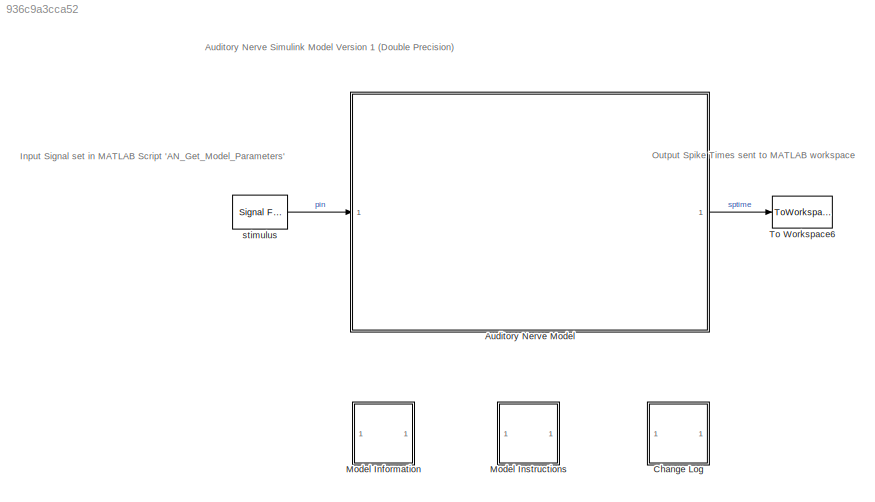
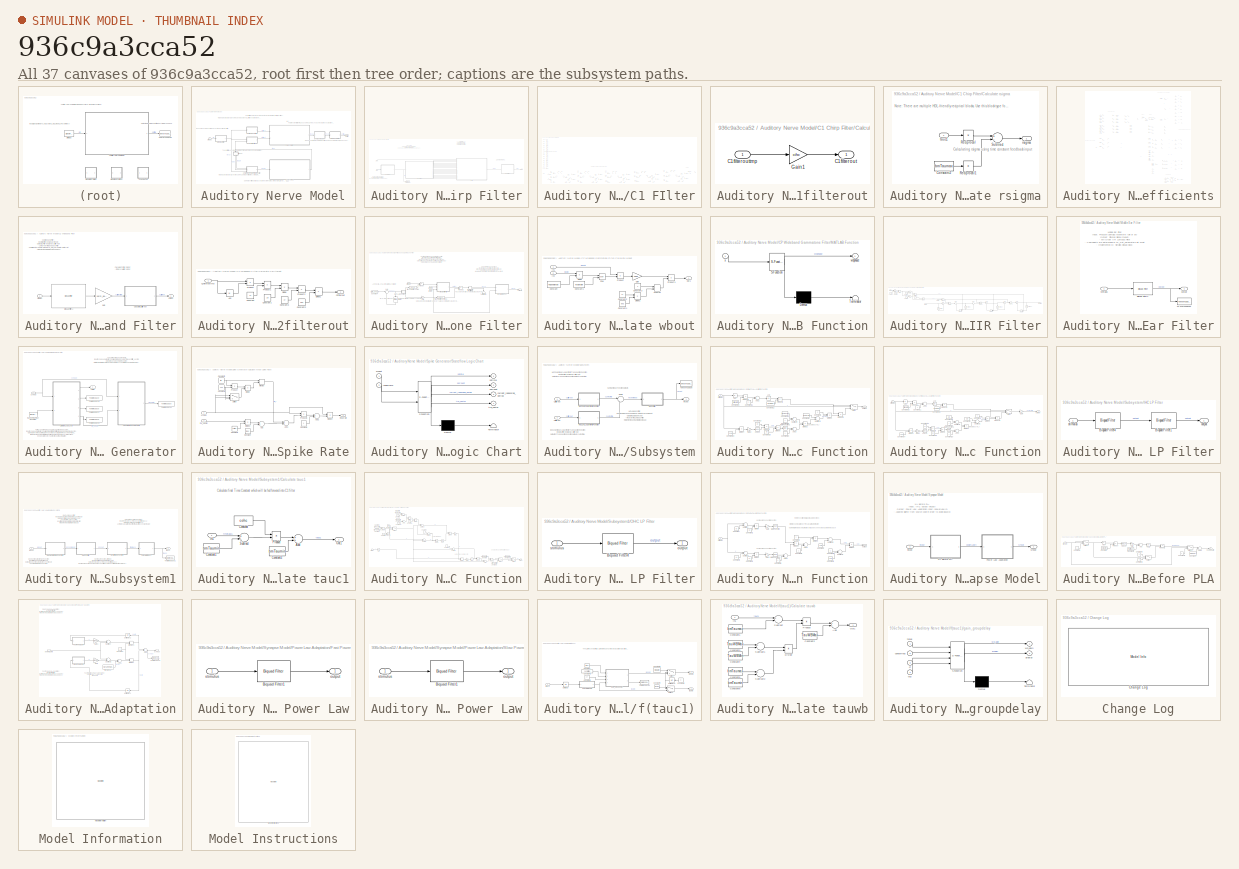
[diagram: thumbnail index - all 37 canvases of the model, root first then tree order]
MODEL slx_936c9a3cca52
KIND model
CONFIG AbsTol = auto
CONFIG EnableMultiTasking = off
CONFIG FixedStep = auto
CONFIG InitFcn = AN_InitFcn_Callback
CONFIG MaxStep = auto
CONFIG MinStep = auto
CONFIG RelTol = 1e-3
CONFIG SampleTimeConstraint = Unconstrained
CONFIG Solver = VariableStepAuto
CONFIG SolverName = VariableStepAuto
CONFIG StartTime = 0.0
CONFIG StopFcn = AN_StopFcn_Callback
CONFIG StopTime = testtime
BLOCK [SubSystem] Auditory Nerve Model
  Ports = [1, 1]
  RequestExecContextInheritance = off
  ShowPortLabels = none
BLOCK [SubSystem] Auditory Nerve Model/C1 Chirp Filter
  Ports = [2, 1]
  RequestExecContextInheritance = off
  ShowPortLabels = none
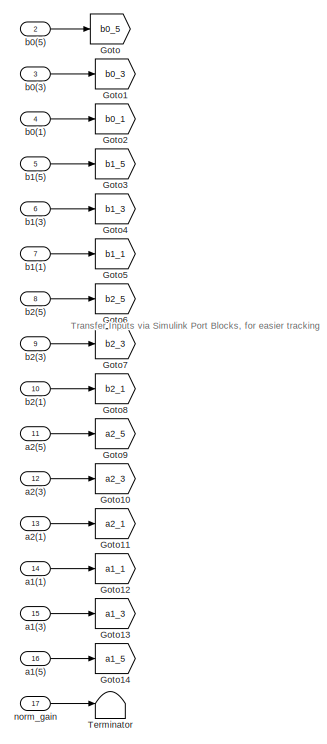
[diagram: Auditory Nerve Model/C1 Chirp Filter/C1 FIlter - part 1/4, middle left region]
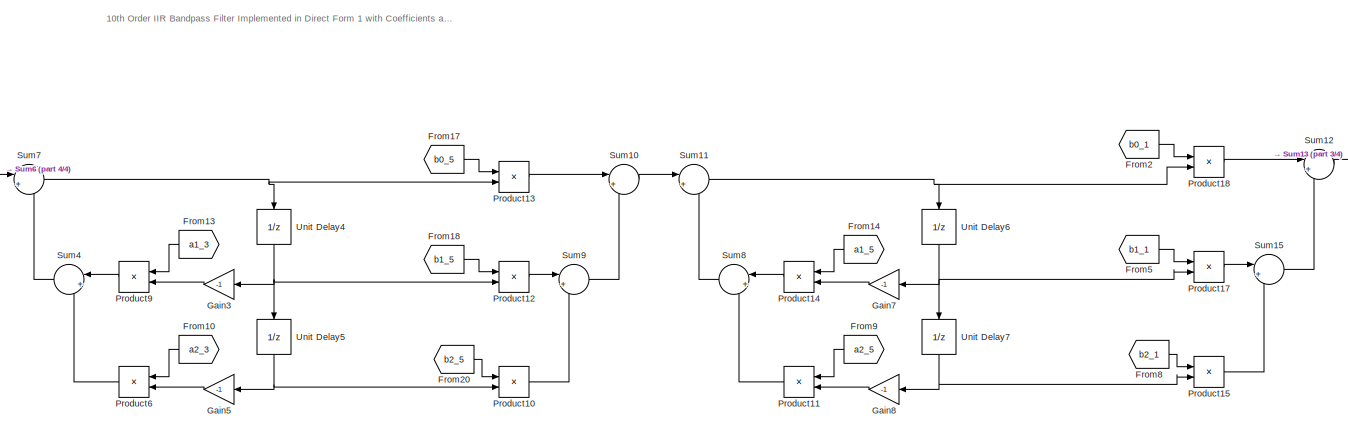
[diagram: Auditory Nerve Model/C1 Chirp Filter/C1 FIlter - part 2/4, bottom center region]
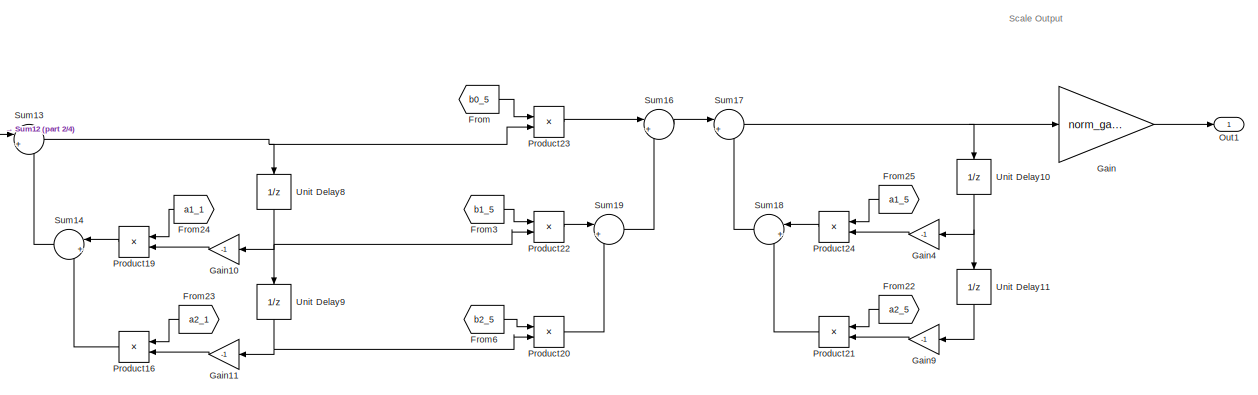
[diagram: Auditory Nerve Model/C1 Chirp Filter/C1 FIlter - part 3/4, bottom right region]
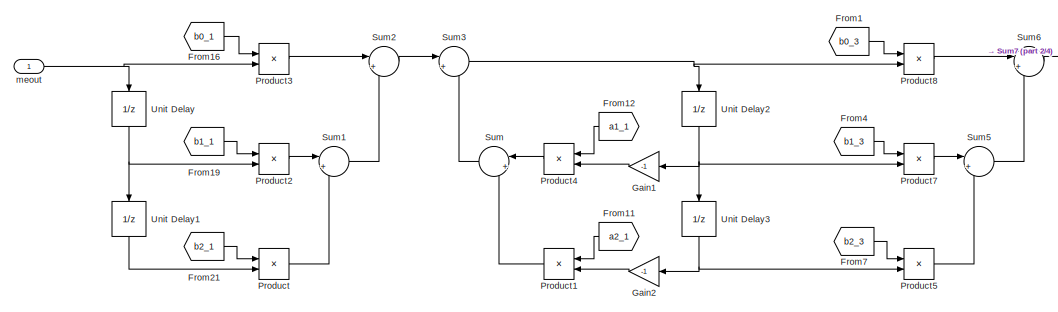
[diagram: Auditory Nerve Model/C1 Chirp Filter/C1 FIlter - part 4/4, bottom left region]
BLOCK [SubSystem] Auditory Nerve Model/C1 Chirp Filter/C1 FIlter
  Ports = [17, 1]
  RequestExecContextInheritance = off
BLOCK [From] Auditory Nerve Model/C1 Chirp Filter/C1 FIlter/From
  GotoTag = b0_5
BLOCK [From] Auditory Nerve Model/C1 Chirp Filter/C1 FIlter/From1
  GotoTag = b0_3
BLOCK [From] Auditory Nerve Model/C1 Chirp Filter/C1 FIlter/From10
  GotoTag = a2_3
BLOCK [From] Auditory Nerve Model/C1 Chirp Filter/C1 FIlter/From11
  GotoTag = a2_1
BLOCK [From] Auditory Nerve Model/C1 Chirp Filter/C1 FIlter/From12
  GotoTag = a1_1
BLOCK [From] Auditory Nerve Model/C1 Chirp Filter/C1 FIlter/From13
  GotoTag = a1_3
BLOCK [From] Auditory Nerve Model/C1 Chirp Filter/C1 FIlter/From14
  GotoTag = a1_5
BLOCK [From] Auditory Nerve Model/C1 Chirp Filter/C1 FIlter/From16
  GotoTag = b0_1
BLOCK [From] Auditory Nerve Model/C1 Chirp Filter/C1 FIlter/From17
  GotoTag = b0_5
BLOCK [From] Auditory Nerve Model/C1 Chirp Filter/C1 FIlter/From18
  GotoTag = b1_5
BLOCK [From] Auditory Nerve Model/C1 Chirp Filter/C1 FIlter/From19
  GotoTag = b1_1
BLOCK [From] Auditory Nerve Model/C1 Chirp Filter/C1 FIlter/From2
  GotoTag = b0_1
BLOCK [From] Auditory Nerve Model/C1 Chirp Filter/C1 FIlter/From20
  GotoTag = b2_5
BLOCK [From] Auditory Nerve Model/C1 Chirp Filter/C1 FIlter/From21
  GotoTag = b2_1
BLOCK [From] Auditory Nerve Model/C1 Chirp Filter/C1 FIlter/From22
  GotoTag = a2_5
BLOCK [From] Auditory Nerve Model/C1 Chirp Filter/C1 FIlter/From23
  GotoTag = a2_1
BLOCK [From] Auditory Nerve Model/C1 Chirp Filter/C1 FIlter/From24
  GotoTag = a1_1
BLOCK [From] Auditory Nerve Model/C1 Chirp Filter/C1 FIlter/From25
  GotoTag = a1_5
BLOCK [From] Auditory Nerve Model/C1 Chirp Filter/C1 FIlter/From3
  GotoTag = b1_5
BLOCK [From] Auditory Nerve Model/C1 Chirp Filter/C1 FIlter/From4
  GotoTag = b1_3
BLOCK [From] Auditory Nerve Model/C1 Chirp Filter/C1 FIlter/From5
  GotoTag = b1_1
BLOCK [From] Auditory Nerve Model/C1 Chirp Filter/C1 FIlter/From6
  GotoTag = b2_5
BLOCK [From] Auditory Nerve Model/C1 Chirp Filter/C1 FIlter/From7
  GotoTag = b2_3
BLOCK [From] Auditory Nerve Model/C1 Chirp Filter/C1 FIlter/From8
  GotoTag = b2_1
BLOCK [From] Auditory Nerve Model/C1 Chirp Filter/C1 FIlter/From9
  GotoTag = a2_5
BLOCK [Gain] Auditory Nerve Model/C1 Chirp Filter/C1 FIlter/Gain
  Gain = norm_gainc1/4
  OutDataTypeStr = Inherit: Inherit via internal rule
  ParamDataTypeStr = Inherit: Inherit via internal rule
  SaturateOnIntegerOverflow = off
BLOCK [Gain] Auditory Nerve Model/C1 Chirp Filter/C1 FIlter/Gain1
  Gain = -1
  OutDataTypeStr = Inherit: Inherit via internal rule
  ParamDataTypeStr = Inherit: Inherit via internal rule
  SaturateOnIntegerOverflow = off
BLOCK [Gain] Auditory Nerve Model/C1 Chirp Filter/C1 FIlter/Gain10
  Gain = -1
  OutDataTypeStr = Inherit: Inherit via internal rule
  ParamDataTypeStr = Inherit: Inherit via internal rule
  SaturateOnIntegerOverflow = off
BLOCK [Gain] Auditory Nerve Model/C1 Chirp Filter/C1 FIlter/Gain11
  Gain = -1
  OutDataTypeStr = Inherit: Inherit via internal rule
  ParamDataTypeStr = Inherit: Inherit via internal rule
  SaturateOnIntegerOverflow = off
BLOCK [Gain] Auditory Nerve Model/C1 Chirp Filter/C1 FIlter/Gain2
  Gain = -1
  OutDataTypeStr = Inherit: Inherit via internal rule
  ParamDataTypeStr = Inherit: Inherit via internal rule
  SaturateOnIntegerOverflow = off
BLOCK [Gain] Auditory Nerve Model/C1 Chirp Filter/C1 FIlter/Gain3
  Gain = -1
  OutDataTypeStr = Inherit: Inherit via internal rule
  ParamDataTypeStr = Inherit: Inherit via internal rule
  SaturateOnIntegerOverflow = off
BLOCK [Gain] Auditory Nerve Model/C1 Chirp Filter/C1 FIlter/Gain4
  Gain = -1
  OutDataTypeStr = Inherit: Inherit via internal rule
  ParamDataTypeStr = Inherit: Inherit via internal rule
  SaturateOnIntegerOverflow = off
BLOCK [Gain] Auditory Nerve Model/C1 Chirp Filter/C1 FIlter/Gain5
  Gain = -1
  OutDataTypeStr = Inherit: Inherit via internal rule
  ParamDataTypeStr = Inherit: Inherit via internal rule
  SaturateOnIntegerOverflow = off
BLOCK [Gain] Auditory Nerve Model/C1 Chirp Filter/C1 FIlter/Gain7
  Gain = -1
  OutDataTypeStr = Inherit: Inherit via internal rule
  ParamDataTypeStr = Inherit: Inherit via internal rule
  SaturateOnIntegerOverflow = off
BLOCK [Gain] Auditory Nerve Model/C1 Chirp Filter/C1 FIlter/Gain8
  Gain = -1
  OutDataTypeStr = Inherit: Inherit via internal rule
  ParamDataTypeStr = Inherit: Inherit via internal rule
  SaturateOnIntegerOverflow = off
BLOCK [Gain] Auditory Nerve Model/C1 Chirp Filter/C1 FIlter/Gain9
  Gain = -1
  OutDataTypeStr = Inherit: Inherit via internal rule
  ParamDataTypeStr = Inherit: Inherit via internal rule
  SaturateOnIntegerOverflow = off
BLOCK [Goto] Auditory Nerve Model/C1 Chirp Filter/C1 FIlter/Goto
  GotoTag = b0_5
BLOCK [Goto] Auditory Nerve Model/C1 Chirp Filter/C1 FIlter/Goto1
  GotoTag = b0_3
BLOCK [Goto] Auditory Nerve Model/C1 Chirp Filter/C1 FIlter/Goto10
  GotoTag = a2_3
BLOCK [Goto] Auditory Nerve Model/C1 Chirp Filter/C1 FIlter/Goto11
  GotoTag = a2_1
BLOCK [Goto] Auditory Nerve Model/C1 Chirp Filter/C1 FIlter/Goto12
  GotoTag = a1_1
BLOCK [Goto] Auditory Nerve Model/C1 Chirp Filter/C1 FIlter/Goto13
  GotoTag = a1_3
BLOCK [Goto] Auditory Nerve Model/C1 Chirp Filter/C1 FIlter/Goto14
  GotoTag = a1_5
BLOCK [Goto] Auditory Nerve Model/C1 Chirp Filter/C1 FIlter/Goto2
  GotoTag = b0_1
BLOCK [Goto] Auditory Nerve Model/C1 Chirp Filter/C1 FIlter/Goto3
  GotoTag = b1_5
BLOCK [Goto] Auditory Nerve Model/C1 Chirp Filter/C1 FIlter/Goto4
  GotoTag = b1_3
BLOCK [Goto] Auditory Nerve Model/C1 Chirp Filter/C1 FIlter/Goto5
  GotoTag = b1_1
BLOCK [Goto] Auditory Nerve Model/C1 Chirp Filter/C1 FIlter/Goto6
  GotoTag = b2_5
BLOCK [Goto] Auditory Nerve Model/C1 Chirp Filter/C1 FIlter/Goto7
  GotoTag = b2_3
BLOCK [Goto] Auditory Nerve Model/C1 Chirp Filter/C1 FIlter/Goto8
  GotoTag = b2_1
BLOCK [Goto] Auditory Nerve Model/C1 Chirp Filter/C1 FIlter/Goto9
  GotoTag = a2_5
BLOCK [Outport] Auditory Nerve Model/C1 Chirp Filter/C1 FIlter/Out1
  IconDisplay = Port number
BLOCK [Product] Auditory Nerve Model/C1 Chirp Filter/C1 FIlter/Product
  InputSameDT = off
  OutDataTypeStr = Inherit: Inherit via internal rule
  Ports = [2, 1]
  RndMeth = Floor
  SaturateOnIntegerOverflow = off
BLOCK [Product] Auditory Nerve Model/C1 Chirp Filter/C1 FIlter/Product1
  InputSameDT = off
  OutDataTypeStr = Inherit: Inherit via internal rule
  Ports = [2, 1]
  RndMeth = Floor
  SaturateOnIntegerOverflow = off
BLOCK [Product] Auditory Nerve Model/C1 Chirp Filter/C1 FIlter/Product10
  InputSameDT = off
  OutDataTypeStr = Inherit: Inherit via internal rule
  Ports = [2, 1]
  RndMeth = Floor
  SaturateOnIntegerOverflow = off
BLOCK [Product] Auditory Nerve Model/C1 Chirp Filter/C1 FIlter/Product11
  InputSameDT = off
  OutDataTypeStr = Inherit: Inherit via internal rule
  Ports = [2, 1]
  RndMeth = Floor
  SaturateOnIntegerOverflow = off
BLOCK [Product] Auditory Nerve Model/C1 Chirp Filter/C1 FIlter/Product12
  InputSameDT = off
  OutDataTypeStr = Inherit: Inherit via internal rule
  Ports = [2, 1]
  RndMeth = Floor
  SaturateOnIntegerOverflow = off
BLOCK [Product] Auditory Nerve Model/C1 Chirp Filter/C1 FIlter/Product13
  InputSameDT = off
  OutDataTypeStr = Inherit: Inherit via internal rule
  Ports = [2, 1]
  RndMeth = Floor
  SaturateOnIntegerOverflow = off
BLOCK [Product] Auditory Nerve Model/C1 Chirp Filter/C1 FIlter/Product14
  InputSameDT = off
  OutDataTypeStr = Inherit: Inherit via internal rule
  Ports = [2, 1]
  RndMeth = Floor
  SaturateOnIntegerOverflow = off
BLOCK [Product] Auditory Nerve Model/C1 Chirp Filter/C1 FIlter/Product15
  InputSameDT = off
  OutDataTypeStr = Inherit: Inherit via internal rule
  Ports = [2, 1]
  RndMeth = Floor
  SaturateOnIntegerOverflow = off
BLOCK [Product] Auditory Nerve Model/C1 Chirp Filter/C1 FIlter/Product16
  InputSameDT = off
  OutDataTypeStr = Inherit: Inherit via internal rule
  Ports = [2, 1]
  RndMeth = Floor
  SaturateOnIntegerOverflow = off
BLOCK [Product] Auditory Nerve Model/C1 Chirp Filter/C1 FIlter/Product17
  InputSameDT = off
  OutDataTypeStr = Inherit: Inherit via internal rule
  Ports = [2, 1]
  RndMeth = Floor
  SaturateOnIntegerOverflow = off
BLOCK [Product] Auditory Nerve Model/C1 Chirp Filter/C1 FIlter/Product18
  InputSameDT = off
  OutDataTypeStr = Inherit: Inherit via internal rule
  Ports = [2, 1]
  RndMeth = Floor
  SaturateOnIntegerOverflow = off
BLOCK [Product] Auditory Nerve Model/C1 Chirp Filter/C1 FIlter/Product19
  InputSameDT = off
  OutDataTypeStr = Inherit: Inherit via internal rule
  Ports = [2, 1]
  RndMeth = Floor
  SaturateOnIntegerOverflow = off
BLOCK [Product] Auditory Nerve Model/C1 Chirp Filter/C1 FIlter/Product2
  InputSameDT = off
  OutDataTypeStr = Inherit: Inherit via internal rule
  Ports = [2, 1]
  RndMeth = Floor
  SaturateOnIntegerOverflow = off
BLOCK [Product] Auditory Nerve Model/C1 Chirp Filter/C1 FIlter/Product20
  InputSameDT = off
  OutDataTypeStr = Inherit: Inherit via internal rule
  Ports = [2, 1]
  RndMeth = Floor
  SaturateOnIntegerOverflow = off
BLOCK [Product] Auditory Nerve Model/C1 Chirp Filter/C1 FIlter/Product21
  InputSameDT = off
  OutDataTypeStr = Inherit: Inherit via internal rule
  Ports = [2, 1]
  RndMeth = Floor
  SaturateOnIntegerOverflow = off
BLOCK [Product] Auditory Nerve Model/C1 Chirp Filter/C1 FIlter/Product22
  InputSameDT = off
  OutDataTypeStr = Inherit: Inherit via internal rule
  Ports = [2, 1]
  RndMeth = Floor
  SaturateOnIntegerOverflow = off
BLOCK [Product] Auditory Nerve Model/C1 Chirp Filter/C1 FIlter/Product23
  InputSameDT = off
  OutDataTypeStr = Inherit: Inherit via internal rule
  Ports = [2, 1]
  RndMeth = Floor
  SaturateOnIntegerOverflow = off
BLOCK [Product] Auditory Nerve Model/C1 Chirp Filter/C1 FIlter/Product24
  InputSameDT = off
  OutDataTypeStr = Inherit: Inherit via internal rule
  Ports = [2, 1]
  RndMeth = Floor
  SaturateOnIntegerOverflow = off
BLOCK [Product] Auditory Nerve Model/C1 Chirp Filter/C1 FIlter/Product3
  InputSameDT = off
  OutDataTypeStr = Inherit: Inherit via internal rule
  Ports = [2, 1]
  RndMeth = Floor
  SaturateOnIntegerOverflow = off
BLOCK [Product] Auditory Nerve Model/C1 Chirp Filter/C1 FIlter/Product4
  InputSameDT = off
  OutDataTypeStr = Inherit: Inherit via internal rule
  Ports = [2, 1]
  RndMeth = Floor
  SaturateOnIntegerOverflow = off
BLOCK [Product] Auditory Nerve Model/C1 Chirp Filter/C1 FIlter/Product5
  InputSameDT = off
  OutDataTypeStr = Inherit: Inherit via internal rule
  Ports = [2, 1]
  RndMeth = Floor
  SaturateOnIntegerOverflow = off
BLOCK [Product] Auditory Nerve Model/C1 Chirp Filter/C1 FIlter/Product6
  InputSameDT = off
  OutDataTypeStr = Inherit: Inherit via internal rule
  Ports = [2, 1]
  RndMeth = Floor
  SaturateOnIntegerOverflow = off
BLOCK [Product] Auditory Nerve Model/C1 Chirp Filter/C1 FIlter/Product7
  InputSameDT = off
  OutDataTypeStr = Inherit: Inherit via internal rule
  Ports = [2, 1]
  RndMeth = Floor
  SaturateOnIntegerOverflow = off
BLOCK [Product] Auditory Nerve Model/C1 Chirp Filter/C1 FIlter/Product8
  InputSameDT = off
  OutDataTypeStr = Inherit: Inherit via internal rule
  Ports = [2, 1]
  RndMeth = Floor
  SaturateOnIntegerOverflow = off
BLOCK [Product] Auditory Nerve Model/C1 Chirp Filter/C1 FIlter/Product9
  InputSameDT = off
  OutDataTypeStr = Inherit: Inherit via internal rule
  Ports = [2, 1]
  RndMeth = Floor
  SaturateOnIntegerOverflow = off
BLOCK [Sum] Auditory Nerve Model/C1 Chirp Filter/C1 FIlter/Sum
  IconShape = round
  InputSameDT = off
  Inputs = |++
  OutDataTypeStr = Inherit: Inherit via internal rule
  Ports = [2, 1]
  SaturateOnIntegerOverflow = off
BLOCK [Sum] Auditory Nerve Model/C1 Chirp Filter/C1 FIlter/Sum1
  IconShape = round
  InputSameDT = off
  Inputs = |++
  OutDataTypeStr = Inherit: Inherit via internal rule
  Ports = [2, 1]
  SaturateOnIntegerOverflow = off
BLOCK [Sum] Auditory Nerve Model/C1 Chirp Filter/C1 FIlter/Sum10
  IconShape = round
  InputSameDT = off
  Inputs = |++
  OutDataTypeStr = Inherit: Inherit via internal rule
  Ports = [2, 1]
  SaturateOnIntegerOverflow = off
BLOCK [Sum] Auditory Nerve Model/C1 Chirp Filter/C1 FIlter/Sum11
  IconShape = round
  InputSameDT = off
  Inputs = |++
  OutDataTypeStr = Inherit: Inherit via internal rule
  Ports = [2, 1]
  SaturateOnIntegerOverflow = off
BLOCK [Sum] Auditory Nerve Model/C1 Chirp Filter/C1 FIlter/Sum12
  IconShape = round
  InputSameDT = off
  Inputs = |++
  OutDataTypeStr = Inherit: Inherit via internal rule
  Ports = [2, 1]
  SaturateOnIntegerOverflow = off
BLOCK [Sum] Auditory Nerve Model/C1 Chirp Filter/C1 FIlter/Sum13
  IconShape = round
  InputSameDT = off
  Inputs = |++
  OutDataTypeStr = Inherit: Inherit via internal rule
  Ports = [2, 1]
  SaturateOnIntegerOverflow = off
BLOCK [Sum] Auditory Nerve Model/C1 Chirp Filter/C1 FIlter/Sum14
  IconShape = round
  InputSameDT = off
  Inputs = |++
  OutDataTypeStr = Inherit: Inherit via internal rule
  Ports = [2, 1]
  SaturateOnIntegerOverflow = off
BLOCK [Sum] Auditory Nerve Model/C1 Chirp Filter/C1 FIlter/Sum15
  IconShape = round
  InputSameDT = off
  Inputs = |++
  OutDataTypeStr = Inherit: Inherit via internal rule
  Ports = [2, 1]
  SaturateOnIntegerOverflow = off
BLOCK [Sum] Auditory Nerve Model/C1 Chirp Filter/C1 FIlter/Sum16
  IconShape = round
  InputSameDT = off
  Inputs = |++
  OutDataTypeStr = Inherit: Inherit via internal rule
  Ports = [2, 1]
  SaturateOnIntegerOverflow = off
BLOCK [Sum] Auditory Nerve Model/C1 Chirp Filter/C1 FIlter/Sum17
  IconShape = round
  InputSameDT = off
  Inputs = |++
  OutDataTypeStr = Inherit: Inherit via internal rule
  Ports = [2, 1]
  SaturateOnIntegerOverflow = off
BLOCK [Sum] Auditory Nerve Model/C1 Chirp Filter/C1 FIlter/Sum18
  IconShape = round
  InputSameDT = off
  Inputs = |++
  OutDataTypeStr = Inherit: Inherit via internal rule
  Ports = [2, 1]
  SaturateOnIntegerOverflow = off
BLOCK [Sum] Auditory Nerve Model/C1 Chirp Filter/C1 FIlter/Sum19
  IconShape = round
  InputSameDT = off
  Inputs = |++
  OutDataTypeStr = Inherit: Inherit via internal rule
  Ports = [2, 1]
  SaturateOnIntegerOverflow = off
BLOCK [Sum] Auditory Nerve Model/C1 Chirp Filter/C1 FIlter/Sum2
  IconShape = round
  InputSameDT = off
  Inputs = |++
  OutDataTypeStr = Inherit: Inherit via internal rule
  Ports = [2, 1]
  SaturateOnIntegerOverflow = off
BLOCK [Sum] Auditory Nerve Model/C1 Chirp Filter/C1 FIlter/Sum3
  IconShape = round
  InputSameDT = off
  Inputs = |++
  OutDataTypeStr = Inherit: Inherit via internal rule
  Ports = [2, 1]
  SaturateOnIntegerOverflow = off
BLOCK [Sum] Auditory Nerve Model/C1 Chirp Filter/C1 FIlter/Sum4
  IconShape = round
  InputSameDT = off
  Inputs = |++
  OutDataTypeStr = Inherit: Inherit via internal rule
  Ports = [2, 1]
  SaturateOnIntegerOverflow = off
BLOCK [Sum] Auditory Nerve Model/C1 Chirp Filter/C1 FIlter/Sum5
  IconShape = round
  InputSameDT = off
  Inputs = |++
  OutDataTypeStr = Inherit: Inherit via internal rule
  Ports = [2, 1]
  SaturateOnIntegerOverflow = off
BLOCK [Sum] Auditory Nerve Model/C1 Chirp Filter/C1 FIlter/Sum6
  IconShape = round
  InputSameDT = off
  Inputs = |++
  OutDataTypeStr = Inherit: Inherit via internal rule
  Ports = [2, 1]
  SaturateOnIntegerOverflow = off
BLOCK [Sum] Auditory Nerve Model/C1 Chirp Filter/C1 FIlter/Sum7
  IconShape = round
  InputSameDT = off
  Inputs = |++
  OutDataTypeStr = Inherit: Inherit via internal rule
  Ports = [2, 1]
  SaturateOnIntegerOverflow = off
BLOCK [Sum] Auditory Nerve Model/C1 Chirp Filter/C1 FIlter/Sum8
  IconShape = round
  InputSameDT = off
  Inputs = |++
  OutDataTypeStr = Inherit: Inherit via internal rule
  Ports = [2, 1]
  SaturateOnIntegerOverflow = off
BLOCK [Sum] Auditory Nerve Model/C1 Chirp Filter/C1 FIlter/Sum9
  IconShape = round
  InputSameDT = off
  Inputs = |++
  OutDataTypeStr = Inherit: Inherit via internal rule
  Ports = [2, 1]
  SaturateOnIntegerOverflow = off
BLOCK [Terminator] Auditory Nerve Model/C1 Chirp Filter/C1 FIlter/Terminator
BLOCK [UnitDelay] Auditory Nerve Model/C1 Chirp Filter/C1 FIlter/Unit Delay
  HasFrameUpgradeWarning = on
  SampleTime = -1
BLOCK [UnitDelay] Auditory Nerve Model/C1 Chirp Filter/C1 FIlter/Unit Delay1
  HasFrameUpgradeWarning = on
  SampleTime = -1
BLOCK [UnitDelay] Auditory Nerve Model/C1 Chirp Filter/C1 FIlter/Unit Delay10
  HasFrameUpgradeWarning = on
  SampleTime = -1
BLOCK [UnitDelay] Auditory Nerve Model/C1 Chirp Filter/C1 FIlter/Unit Delay11
  HasFrameUpgradeWarning = on
  SampleTime = -1
BLOCK [UnitDelay] Auditory Nerve Model/C1 Chirp Filter/C1 FIlter/Unit Delay2
  HasFrameUpgradeWarning = on
  SampleTime = -1
BLOCK [UnitDelay] Auditory Nerve Model/C1 Chirp Filter/C1 FIlter/Unit Delay3
  HasFrameUpgradeWarning = on
  SampleTime = -1
BLOCK [UnitDelay] Auditory Nerve Model/C1 Chirp Filter/C1 FIlter/Unit Delay4
  HasFrameUpgradeWarning = on
  SampleTime = -1
BLOCK [UnitDelay] Auditory Nerve Model/C1 Chirp Filter/C1 FIlter/Unit Delay5
  HasFrameUpgradeWarning = on
  SampleTime = -1
BLOCK [UnitDelay] Auditory Nerve Model/C1 Chirp Filter/C1 FIlter/Unit Delay6
  HasFrameUpgradeWarning = on
  SampleTime = -1
BLOCK [UnitDelay] Auditory Nerve Model/C1 Chirp Filter/C1 FIlter/Unit Delay7
  HasFrameUpgradeWarning = on
  SampleTime = -1
BLOCK [UnitDelay] Auditory Nerve Model/C1 Chirp Filter/C1 FIlter/Unit Delay8
  HasFrameUpgradeWarning = on
  SampleTime = -1
BLOCK [UnitDelay] Auditory Nerve Model/C1 Chirp Filter/C1 FIlter/Unit Delay9
  HasFrameUpgradeWarning = on
  SampleTime = -1
BLOCK [Inport] Auditory Nerve Model/C1 Chirp Filter/C1 FIlter/a1(1)
  IconDisplay = Port number
  Port = 14
BLOCK [Inport] Auditory Nerve Model/C1 Chirp Filter/C1 FIlter/a1(3)
  IconDisplay = Port number
  Port = 15
BLOCK [Inport] Auditory Nerve Model/C1 Chirp Filter/C1 FIlter/a1(5)
  IconDisplay = Port number
  Port = 16
BLOCK [Inport] Auditory Nerve Model/C1 Chirp Filter/C1 FIlter/a2(1)
  IconDisplay = Port number
  Port = 13
BLOCK [Inport] Auditory Nerve Model/C1 Chirp Filter/C1 FIlter/a2(3)
  IconDisplay = Port number
  Port = 12
BLOCK [Inport] Auditory Nerve Model/C1 Chirp Filter/C1 FIlter/a2(5)
  IconDisplay = Port number
  Port = 11
BLOCK [Inport] Auditory Nerve Model/C1 Chirp Filter/C1 FIlter/b0(1)
  IconDisplay = Port number
  Port = 4
BLOCK [Inport] Auditory Nerve Model/C1 Chirp Filter/C1 FIlter/b0(3)
  IconDisplay = Port number
  Port = 3
BLOCK [Inport] Auditory Nerve Model/C1 Chirp Filter/C1 FIlter/b0(5)
  IconDisplay = Port number
  Port = 2
BLOCK [Inport] Auditory Nerve Model/C1 Chirp Filter/C1 FIlter/b1(1)
  IconDisplay = Port number
  Port = 7
BLOCK [Inport] Auditory Nerve Model/C1 Chirp Filter/C1 FIlter/b1(3)
  IconDisplay = Port number
  Port = 6
BLOCK [Inport] Auditory Nerve Model/C1 Chirp Filter/C1 FIlter/b1(5)
  IconDisplay = Port number
  Port = 5
BLOCK [Inport] Auditory Nerve Model/C1 Chirp Filter/C1 FIlter/b2(1)
  IconDisplay = Port number
  Port = 10
BLOCK [Inport] Auditory Nerve Model/C1 Chirp Filter/C1 FIlter/b2(3)
  IconDisplay = Port number
  Port = 9
BLOCK [Inport] Auditory Nerve Model/C1 Chirp Filter/C1 FIlter/b2(5)
  IconDisplay = Port number
  Port = 8
BLOCK [Inport] Auditory Nerve Model/C1 Chirp Filter/C1 FIlter/meout
  IconDisplay = Port number
BLOCK [Inport] Auditory Nerve Model/C1 Chirp Filter/C1 FIlter/norm_gain
  IconDisplay = Port number
  Port = 17
BLOCK [SubSystem] Auditory Nerve Model/C1 Chirp Filter/Calculate C1filterout
  Ports = [1, 1]
  RequestExecContextInheritance = off
  ShowPortLabels = none
BLOCK [Outport] Auditory Nerve Model/C1 Chirp Filter/Calculate C1filterout/C1filterout
  IconDisplay = Port number
BLOCK [Inport] Auditory Nerve Model/C1 Chirp Filter/Calculate C1filterout/C1filterouttmp
  IconDisplay = Port number
BLOCK [Gain] Auditory Nerve Model/C1 Chirp Filter/Calculate C1filterout/Gain1
  Gain = cihc
  OutDataTypeStr = Inherit: Inherit via internal rule
  ParamDataTypeStr = Inherit: Inherit via internal rule
  SaturateOnIntegerOverflow = off
BLOCK [SubSystem] Auditory Nerve Model/C1 Chirp Filter/Calculate rsigma
  Ports = [1, 1]
  RequestExecContextInheritance = off
  ShowPortLabels = none
BLOCK [Constant] Auditory Nerve Model/C1 Chirp Filter/Calculate rsigma/Constant2
  SampleTime = -1
  Value = bmTaumax
BLOCK [Product] Auditory Nerve Model/C1 Chirp Filter/Calculate rsigma/Reciprocal
  InputSameDT = off
  Inputs = /
  OutDataTypeStr = Inherit: Inherit via internal rule
  Ports = [1, 1]
BLOCK [Product] Auditory Nerve Model/C1 Chirp Filter/Calculate rsigma/Reciprocal1
  InputSameDT = off
  Inputs = /
  OutDataTypeStr = Inherit: Inherit via internal rule
  Ports = [1, 1]
BLOCK [Sum] Auditory Nerve Model/C1 Chirp Filter/Calculate rsigma/Subtract
  InputSameDT = off
  Inputs = +-
  OutDataTypeStr = Inherit: Inherit via internal rule
  Ports = [2, 1]
  SaturateOnIntegerOverflow = off
BLOCK [Outport] Auditory Nerve Model/C1 Chirp Filter/Calculate rsigma/rsigma
  IconDisplay = Port number
BLOCK [Inport] Auditory Nerve Model/C1 Chirp Filter/Calculate rsigma/tauc1
  IconDisplay = Port number
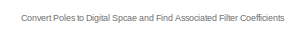
[diagram: Auditory Nerve Model/C1 Chirp Filter/Get C1 Coefficients - part 1/10, top right region]
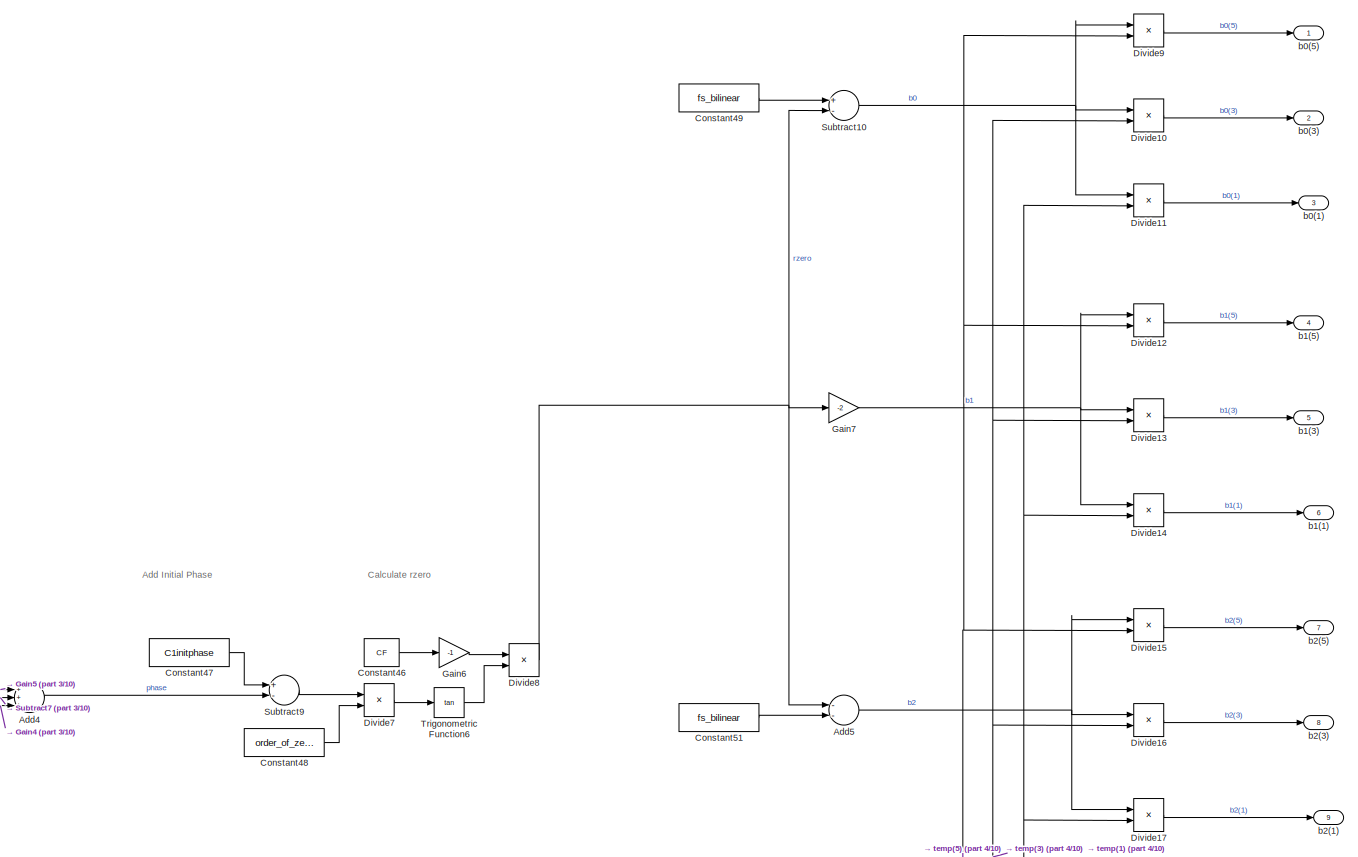
[diagram: Auditory Nerve Model/C1 Chirp Filter/Get C1 Coefficients - part 2/10, top right region]
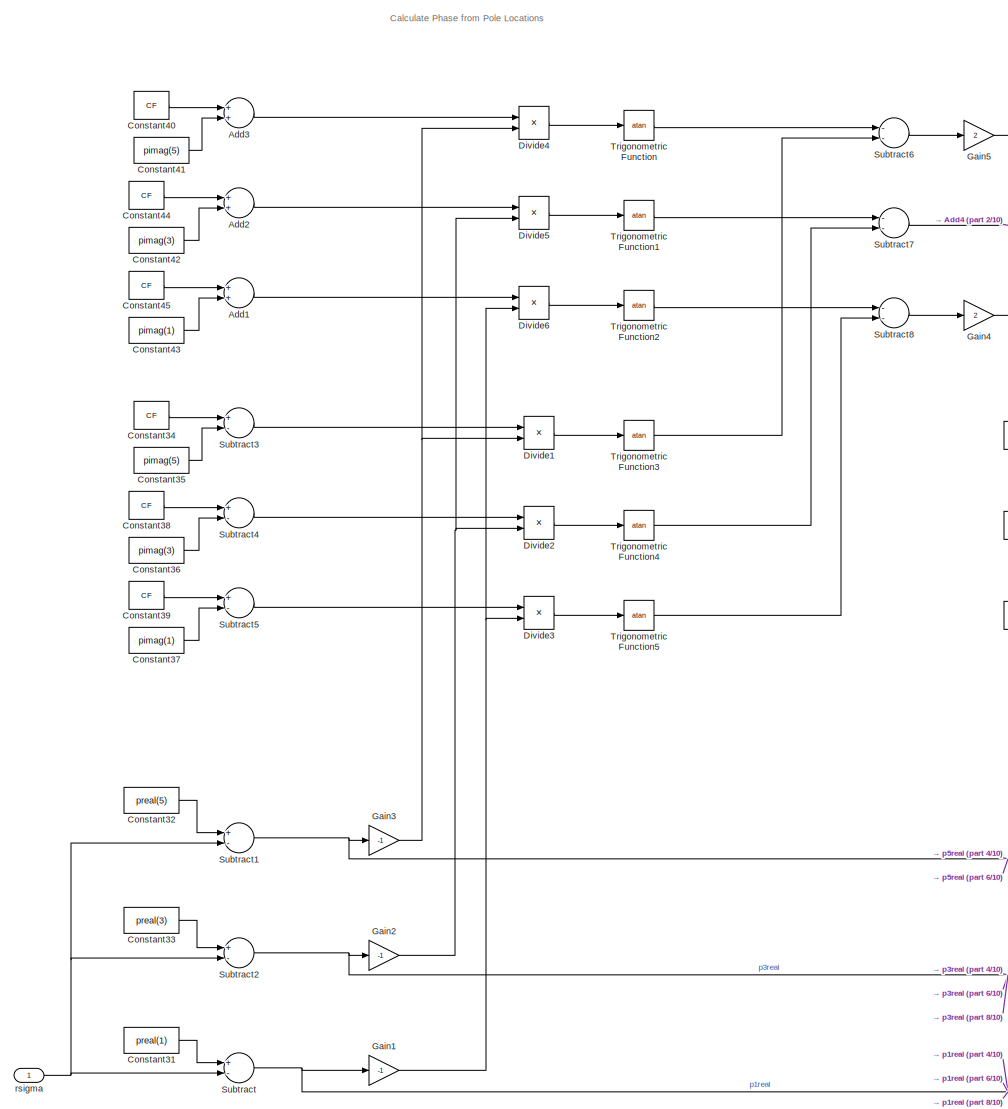
[diagram: Auditory Nerve Model/C1 Chirp Filter/Get C1 Coefficients - part 3/10, middle left region]
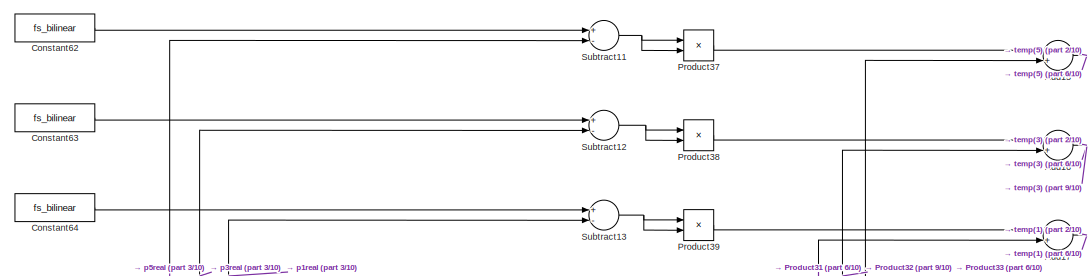
[diagram: Auditory Nerve Model/C1 Chirp Filter/Get C1 Coefficients - part 4/10, central region]
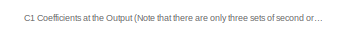
[diagram: Auditory Nerve Model/C1 Chirp Filter/Get C1 Coefficients - part 5/10, middle right region]
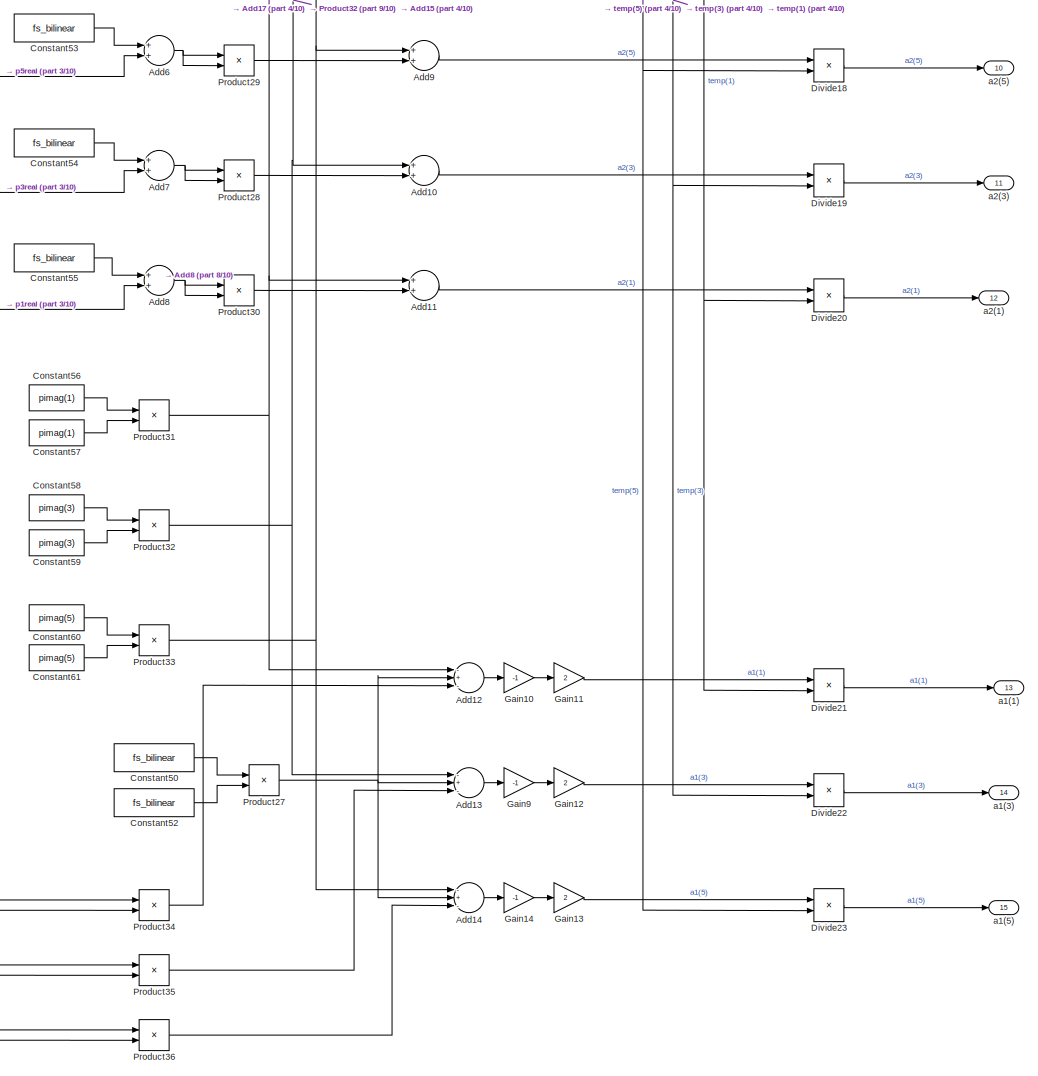
[diagram: Auditory Nerve Model/C1 Chirp Filter/Get C1 Coefficients - part 6/10, bottom right region]
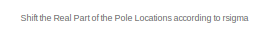
[diagram: Auditory Nerve Model/C1 Chirp Filter/Get C1 Coefficients - part 7/10, middle left region]
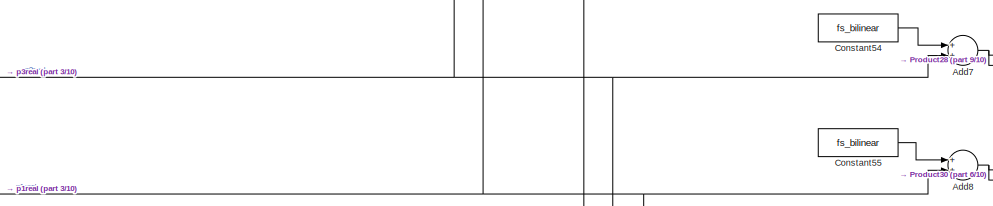
[diagram: Auditory Nerve Model/C1 Chirp Filter/Get C1 Coefficients - part 8/10, central region]
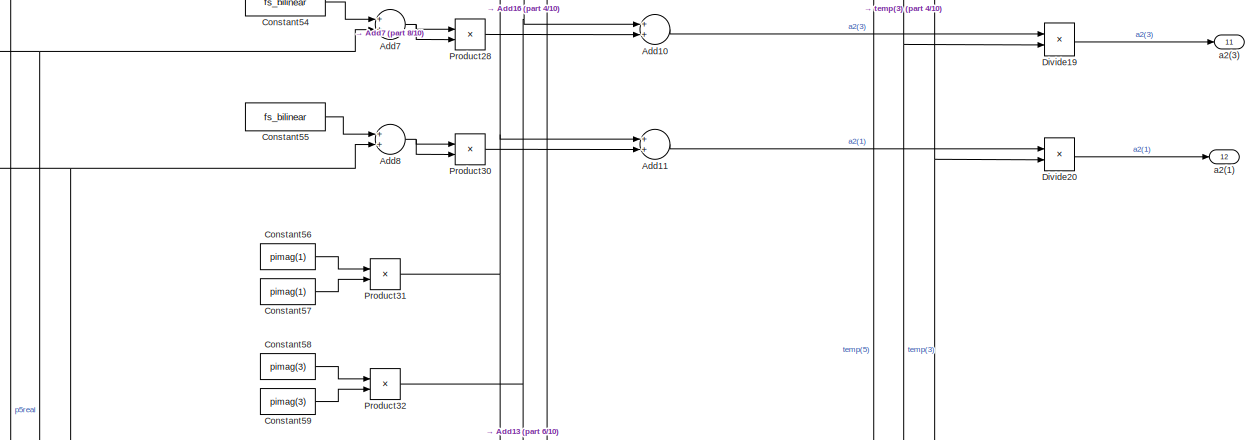
[diagram: Auditory Nerve Model/C1 Chirp Filter/Get C1 Coefficients - part 9/10, middle right region]
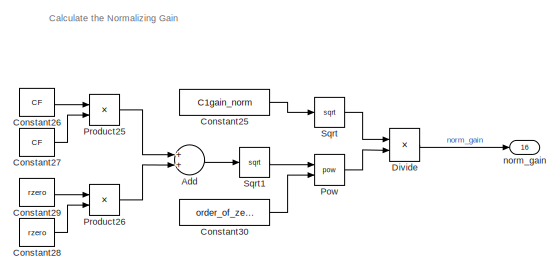
[diagram: Auditory Nerve Model/C1 Chirp Filter/Get C1 Coefficients - part 10/10, bottom right region]
BLOCK [SubSystem] Auditory Nerve Model/C1 Chirp Filter/Get C1 Coefficients
  Ports = [1, 16]
  RequestExecContextInheritance = off
BLOCK [Sum] Auditory Nerve Model/C1 Chirp Filter/Get C1 Coefficients/Add
  InputSameDT = off
  OutDataTypeStr = Inherit: Inherit via internal rule
  Ports = [2, 1]
  SaturateOnIntegerOverflow = off
BLOCK [Sum] Auditory Nerve Model/C1 Chirp Filter/Get C1 Coefficients/Add1
  InputSameDT = off
  OutDataTypeStr = Inherit: Inherit via internal rule
  Ports = [2, 1]
  SaturateOnIntegerOverflow = off
BLOCK [Sum] Auditory Nerve Model/C1 Chirp Filter/Get C1 Coefficients/Add10
  InputSameDT = off
  OutDataTypeStr = Inherit: Inherit via internal rule
  Ports = [2, 1]
  SaturateOnIntegerOverflow = off
BLOCK [Sum] Auditory Nerve Model/C1 Chirp Filter/Get C1 Coefficients/Add11
  InputSameDT = off
  OutDataTypeStr = Inherit: Inherit via internal rule
  Ports = [2, 1]
  SaturateOnIntegerOverflow = off
BLOCK [Sum] Auditory Nerve Model/C1 Chirp Filter/Get C1 Coefficients/Add12
  InputSameDT = off
  Inputs = -+-
  OutDataTypeStr = Inherit: Inherit via internal rule
  Ports = [3, 1]
  SaturateOnIntegerOverflow = off
BLOCK [Sum] Auditory Nerve Model/C1 Chirp Filter/Get C1 Coefficients/Add13
  InputSameDT = off
  Inputs = -+-
  OutDataTypeStr = Inherit: Inherit via internal rule
  Ports = [3, 1]
  SaturateOnIntegerOverflow = off
BLOCK [Sum] Auditory Nerve Model/C1 Chirp Filter/Get C1 Coefficients/Add14
  InputSameDT = off
  Inputs = -+-
  OutDataTypeStr = Inherit: Inherit via internal rule
  Ports = [3, 1]
  SaturateOnIntegerOverflow = off
BLOCK [Sum] Auditory Nerve Model/C1 Chirp Filter/Get C1 Coefficients/Add15
  InputSameDT = off
  OutDataTypeStr = Inherit: Inherit via internal rule
  Ports = [2, 1]
  SaturateOnIntegerOverflow = off
BLOCK [Sum] Auditory Nerve Model/C1 Chirp Filter/Get C1 Coefficients/Add16
  InputSameDT = off
  OutDataTypeStr = Inherit: Inherit via internal rule
  Ports = [2, 1]
  SaturateOnIntegerOverflow = off
BLOCK [Sum] Auditory Nerve Model/C1 Chirp Filter/Get C1 Coefficients/Add17
  InputSameDT = off
  OutDataTypeStr = Inherit: Inherit via internal rule
  Ports = [2, 1]
  SaturateOnIntegerOverflow = off
BLOCK [Sum] Auditory Nerve Model/C1 Chirp Filter/Get C1 Coefficients/Add2
  InputSameDT = off
  OutDataTypeStr = Inherit: Inherit via internal rule
  Ports = [2, 1]
  SaturateOnIntegerOverflow = off
BLOCK [Sum] Auditory Nerve Model/C1 Chirp Filter/Get C1 Coefficients/Add3
  InputSameDT = off
  OutDataTypeStr = Inherit: Inherit via internal rule
  Ports = [2, 1]
  SaturateOnIntegerOverflow = off
BLOCK [Sum] Auditory Nerve Model/C1 Chirp Filter/Get C1 Coefficients/Add4
  InputSameDT = off
  Inputs = +++
  OutDataTypeStr = Inherit: Inherit via internal rule
  Ports = [3, 1]
  SaturateOnIntegerOverflow = off
BLOCK [Sum] Auditory Nerve Model/C1 Chirp Filter/Get C1 Coefficients/Add5
  InputSameDT = off
  Inputs = --
  OutDataTypeStr = Inherit: Inherit via internal rule
  Ports = [2, 1]
  SaturateOnIntegerOverflow = off
BLOCK [Sum] Auditory Nerve Model/C1 Chirp Filter/Get C1 Coefficients/Add6
  InputSameDT = off
  OutDataTypeStr = Inherit: Inherit via internal rule
  Ports = [2, 1]
  SaturateOnIntegerOverflow = off
BLOCK [Sum] Auditory Nerve Model/C1 Chirp Filter/Get C1 Coefficients/Add7
  InputSameDT = off
  OutDataTypeStr = Inherit: Inherit via internal rule
  Ports = [2, 1]
  SaturateOnIntegerOverflow = off
BLOCK [Sum] Auditory Nerve Model/C1 Chirp Filter/Get C1 Coefficients/Add8
  InputSameDT = off
  OutDataTypeStr = Inherit: Inherit via internal rule
  Ports = [2, 1]
  SaturateOnIntegerOverflow = off
BLOCK [Sum] Auditory Nerve Model/C1 Chirp Filter/Get C1 Coefficients/Add9
  InputSameDT = off
  OutDataTypeStr = Inherit: Inherit via internal rule
  Ports = [2, 1]
  SaturateOnIntegerOverflow = off
BLOCK [Constant] Auditory Nerve Model/C1 Chirp Filter/Get C1 Coefficients/Constant25
  SampleTime = -1
  Value = C1gain_norm
BLOCK [Constant] Auditory Nerve Model/C1 Chirp Filter/Get C1 Coefficients/Constant26
  SampleTime = -1
  Value = CF
BLOCK [Constant] Auditory Nerve Model/C1 Chirp Filter/Get C1 Coefficients/Constant27
  SampleTime = -1
  Value = CF
BLOCK [Constant] Auditory Nerve Model/C1 Chirp Filter/Get C1 Coefficients/Constant28
  SampleTime = -1
  Value = rzero
BLOCK [Constant] Auditory Nerve Model/C1 Chirp Filter/Get C1 Coefficients/Constant29
  SampleTime = -1
  Value = rzero
BLOCK [Constant] Auditory Nerve Model/C1 Chirp Filter/Get C1 Coefficients/Constant30
  SampleTime = -1
  Value = order_of_zero
BLOCK [Constant] Auditory Nerve Model/C1 Chirp Filter/Get C1 Coefficients/Constant31
  SampleTime = -1
  Value = preal(1)
BLOCK [Constant] Auditory Nerve Model/C1 Chirp Filter/Get C1 Coefficients/Constant32
  SampleTime = -1
  Value = preal(5)
BLOCK [Constant] Auditory Nerve Model/C1 Chirp Filter/Get C1 Coefficients/Constant33
  SampleTime = -1
  Value = preal(3)
BLOCK [Constant] Auditory Nerve Model/C1 Chirp Filter/Get C1 Coefficients/Constant34
  SampleTime = -1
  Value = CF
BLOCK [Constant] Auditory Nerve Model/C1 Chirp Filter/Get C1 Coefficients/Constant35
  SampleTime = -1
  Value = pimag(5)
BLOCK [Constant] Auditory Nerve Model/C1 Chirp Filter/Get C1 Coefficients/Constant36
  SampleTime = -1
  Value = pimag(3)
BLOCK [Constant] Auditory Nerve Model/C1 Chirp Filter/Get C1 Coefficients/Constant37
  SampleTime = -1
  Value = pimag(1)
BLOCK [Constant] Auditory Nerve Model/C1 Chirp Filter/Get C1 Coefficients/Constant38
  SampleTime = -1
  Value = CF
BLOCK [Constant] Auditory Nerve Model/C1 Chirp Filter/Get C1 Coefficients/Constant39
  SampleTime = -1
  Value = CF
BLOCK [Constant] Auditory Nerve Model/C1 Chirp Filter/Get C1 Coefficients/Constant40
  SampleTime = -1
  Value = CF
BLOCK [Constant] Auditory Nerve Model/C1 Chirp Filter/Get C1 Coefficients/Constant41
  SampleTime = -1
  Value = pimag(5)
BLOCK [Constant] Auditory Nerve Model/C1 Chirp Filter/Get C1 Coefficients/Constant42
  SampleTime = -1
  Value = pimag(3)
BLOCK [Constant] Auditory Nerve Model/C1 Chirp Filter/Get C1 Coefficients/Constant43
  SampleTime = -1
  Value = pimag(1)
BLOCK [Constant] Auditory Nerve Model/C1 Chirp Filter/Get C1 Coefficients/Constant44
  SampleTime = -1
  Value = CF
BLOCK [Constant] Auditory Nerve Model/C1 Chirp Filter/Get C1 Coefficients/Constant45
  SampleTime = -1
  Value = CF
BLOCK [Constant] Auditory Nerve Model/C1 Chirp Filter/Get C1 Coefficients/Constant46
  SampleTime = -1
  Value = CF
BLOCK [Constant] Auditory Nerve Model/C1 Chirp Filter/Get C1 Coefficients/Constant47
  SampleTime = -1
  Value = C1initphase
BLOCK [Constant] Auditory Nerve Model/C1 Chirp Filter/Get C1 Coefficients/Constant48
  SampleTime = -1
  Value = order_of_zero
BLOCK [Constant] Auditory Nerve Model/C1 Chirp Filter/Get C1 Coefficients/Constant49
  SampleTime = -1
  Value = fs_bilinear
BLOCK [Constant] Auditory Nerve Model/C1 Chirp Filter/Get C1 Coefficients/Constant50
  SampleTime = -1
  Value = fs_bilinear
BLOCK [Constant] Auditory Nerve Model/C1 Chirp Filter/Get C1 Coefficients/Constant51
  SampleTime = -1
  Value = fs_bilinear
BLOCK [Constant] Auditory Nerve Model/C1 Chirp Filter/Get C1 Coefficients/Constant52
  SampleTime = -1
  Value = fs_bilinear
BLOCK [Constant] Auditory Nerve Model/C1 Chirp Filter/Get C1 Coefficients/Constant53
  SampleTime = -1
  Value = fs_bilinear
BLOCK [Constant] Auditory Nerve Model/C1 Chirp Filter/Get C1 Coefficients/Constant54
  SampleTime = -1
  Value = fs_bilinear
BLOCK [Constant] Auditory Nerve Model/C1 Chirp Filter/Get C1 Coefficients/Constant55
  SampleTime = -1
  Value = fs_bilinear
BLOCK [Constant] Auditory Nerve Model/C1 Chirp Filter/Get C1 Coefficients/Constant56
  SampleTime = -1
  Value = pimag(1)
BLOCK [Constant] Auditory Nerve Model/C1 Chirp Filter/Get C1 Coefficients/Constant57
  SampleTime = -1
  Value = pimag(1)
BLOCK [Constant] Auditory Nerve Model/C1 Chirp Filter/Get C1 Coefficients/Constant58
  SampleTime = -1
  Value = pimag(3)
BLOCK [Constant] Auditory Nerve Model/C1 Chirp Filter/Get C1 Coefficients/Constant59
  SampleTime = -1
  Value = pimag(3)
BLOCK [Constant] Auditory Nerve Model/C1 Chirp Filter/Get C1 Coefficients/Constant60
  SampleTime = -1
  Value = pimag(5)
BLOCK [Constant] Auditory Nerve Model/C1 Chirp Filter/Get C1 Coefficients/Constant61
  SampleTime = -1
  Value = pimag(5)
BLOCK [Constant] Auditory Nerve Model/C1 Chirp Filter/Get C1 Coefficients/Constant62
  SampleTime = -1
  Value = fs_bilinear
BLOCK [Constant] Auditory Nerve Model/C1 Chirp Filter/Get C1 Coefficients/Constant63
  SampleTime = -1
  Value = fs_bilinear
BLOCK [Constant] Auditory Nerve Model/C1 Chirp Filter/Get C1 Coefficients/Constant64
  SampleTime = -1
  Value = fs_bilinear
BLOCK [Product] Auditory Nerve Model/C1 Chirp Filter/Get C1 Coefficients/Divide
  InputSameDT = off
  Inputs = */
  OutDataTypeStr = Inherit: Inherit via internal rule
  Ports = [2, 1]
BLOCK [Product] Auditory Nerve Model/C1 Chirp Filter/Get C1 Coefficients/Divide1
  InputSameDT = off
  Inputs = */
  OutDataTypeStr = Inherit: Inherit via internal rule
  Ports = [2, 1]
BLOCK [Product] Auditory Nerve Model/C1 Chirp Filter/Get C1 Coefficients/Divide10
  InputSameDT = off
  Inputs = */
  OutDataTypeStr = Inherit: Inherit via internal rule
  Ports = [2, 1]
BLOCK [Product] Auditory Nerve Model/C1 Chirp Filter/Get C1 Coefficients/Divide11
  InputSameDT = off
  Inputs = */
  OutDataTypeStr = Inherit: Inherit via internal rule
  Ports = [2, 1]
BLOCK [Product] Auditory Nerve Model/C1 Chirp Filter/Get C1 Coefficients/Divide12
  InputSameDT = off
  Inputs = */
  OutDataTypeStr = Inherit: Inherit via internal rule
  Ports = [2, 1]
BLOCK [Product] Auditory Nerve Model/C1 Chirp Filter/Get C1 Coefficients/Divide13
  InputSameDT = off
  Inputs = */
  OutDataTypeStr = Inherit: Inherit via internal rule
  Ports = [2, 1]
BLOCK [Product] Auditory Nerve Model/C1 Chirp Filter/Get C1 Coefficients/Divide14
  InputSameDT = off
  Inputs = */
  OutDataTypeStr = Inherit: Inherit via internal rule
  Ports = [2, 1]
BLOCK [Product] Auditory Nerve Model/C1 Chirp Filter/Get C1 Coefficients/Divide15
  InputSameDT = off
  Inputs = */
  OutDataTypeStr = Inherit: Inherit via internal rule
  Ports = [2, 1]
BLOCK [Product] Auditory Nerve Model/C1 Chirp Filter/Get C1 Coefficients/Divide16
  InputSameDT = off
  Inputs = */
  OutDataTypeStr = Inherit: Inherit via internal rule
  Ports = [2, 1]
BLOCK [Product] Auditory Nerve Model/C1 Chirp Filter/Get C1 Coefficients/Divide17
  InputSameDT = off
  Inputs = */
  OutDataTypeStr = Inherit: Inherit via internal rule
  Ports = [2, 1]
BLOCK [Product] Auditory Nerve Model/C1 Chirp Filter/Get C1 Coefficients/Divide18
  InputSameDT = off
  Inputs = */
  OutDataTypeStr = Inherit: Inherit via internal rule
  Ports = [2, 1]
BLOCK [Product] Auditory Nerve Model/C1 Chirp Filter/Get C1 Coefficients/Divide19
  InputSameDT = off
  Inputs = */
  OutDataTypeStr = Inherit: Inherit via internal rule
  Ports = [2, 1]
BLOCK [Product] Auditory Nerve Model/C1 Chirp Filter/Get C1 Coefficients/Divide2
  InputSameDT = off
  Inputs = */
  OutDataTypeStr = Inherit: Inherit via internal rule
  Ports = [2, 1]
BLOCK [Product] Auditory Nerve Model/C1 Chirp Filter/Get C1 Coefficients/Divide20
  InputSameDT = off
  Inputs = */
  OutDataTypeStr = Inherit: Inherit via internal rule
  Ports = [2, 1]
BLOCK [Product] Auditory Nerve Model/C1 Chirp Filter/Get C1 Coefficients/Divide21
  InputSameDT = off
  Inputs = */
  OutDataTypeStr = Inherit: Inherit via internal rule
  Ports = [2, 1]
BLOCK [Product] Auditory Nerve Model/C1 Chirp Filter/Get C1 Coefficients/Divide22
  InputSameDT = off
  Inputs = */
  OutDataTypeStr = Inherit: Inherit via internal rule
  Ports = [2, 1]
BLOCK [Product] Auditory Nerve Model/C1 Chirp Filter/Get C1 Coefficients/Divide23
  InputSameDT = off
  Inputs = */
  OutDataTypeStr = Inherit: Inherit via internal rule
  Ports = [2, 1]
BLOCK [Product] Auditory Nerve Model/C1 Chirp Filter/Get C1 Coefficients/Divide3
  InputSameDT = off
  Inputs = */
  OutDataTypeStr = Inherit: Inherit via internal rule
  Ports = [2, 1]
BLOCK [Product] Auditory Nerve Model/C1 Chirp Filter/Get C1 Coefficients/Divide4
  InputSameDT = off
  Inputs = */
  OutDataTypeStr = Inherit: Inherit via internal rule
  Ports = [2, 1]
BLOCK [Product] Auditory Nerve Model/C1 Chirp Filter/Get C1 Coefficients/Divide5
  InputSameDT = off
  Inputs = */
  OutDataTypeStr = Inherit: Inherit via internal rule
  Ports = [2, 1]
BLOCK [Product] Auditory Nerve Model/C1 Chirp Filter/Get C1 Coefficients/Divide6
  InputSameDT = off
  Inputs = */
  OutDataTypeStr = Inherit: Inherit via internal rule
  Ports = [2, 1]
BLOCK [Product] Auditory Nerve Model/C1 Chirp Filter/Get C1 Coefficients/Divide7
  InputSameDT = off
  Inputs = */
  OutDataTypeStr = Inherit: Inherit via internal rule
  Ports = [2, 1]
BLOCK [Product] Auditory Nerve Model/C1 Chirp Filter/Get C1 Coefficients/Divide8
  InputSameDT = off
  Inputs = */
  OutDataTypeStr = Inherit: Inherit via internal rule
  Ports = [2, 1]
BLOCK [Product] Auditory Nerve Model/C1 Chirp Filter/Get C1 Coefficients/Divide9
  InputSameDT = off
  Inputs = */
  OutDataTypeStr = Inherit: Inherit via internal rule
  Ports = [2, 1]
BLOCK [Gain] Auditory Nerve Model/C1 Chirp Filter/Get C1 Coefficients/Gain1
  Gain = -1
  OutDataTypeStr = Inherit: Inherit via internal rule
  ParamDataTypeStr = Inherit: Inherit via internal rule
  SaturateOnIntegerOverflow = off
BLOCK [Gain] Auditory Nerve Model/C1 Chirp Filter/Get C1 Coefficients/Gain10
  Gain = -1
  OutDataTypeStr = Inherit: Inherit via internal rule
  ParamDataTypeStr = Inherit: Inherit via internal rule
  SaturateOnIntegerOverflow = off
BLOCK [Gain] Auditory Nerve Model/C1 Chirp Filter/Get C1 Coefficients/Gain11
  Gain = 2
  OutDataTypeStr = Inherit: Inherit via internal rule
  ParamDataTypeStr = Inherit: Inherit via internal rule
  SaturateOnIntegerOverflow = off
BLOCK [Gain] Auditory Nerve Model/C1 Chirp Filter/Get C1 Coefficients/Gain12
  Gain = 2
  OutDataTypeStr = Inherit: Inherit via internal rule
  ParamDataTypeStr = Inherit: Inherit via internal rule
  SaturateOnIntegerOverflow = off
BLOCK [Gain] Auditory Nerve Model/C1 Chirp Filter/Get C1 Coefficients/Gain13
  Gain = 2
  OutDataTypeStr = Inherit: Inherit via internal rule
  ParamDataTypeStr = Inherit: Inherit via internal rule
  SaturateOnIntegerOverflow = off
BLOCK [Gain] Auditory Nerve Model/C1 Chirp Filter/Get C1 Coefficients/Gain14
  Gain = -1
  OutDataTypeStr = Inherit: Inherit via internal rule
  ParamDataTypeStr = Inherit: Inherit via internal rule
  SaturateOnIntegerOverflow = off
BLOCK [Gain] Auditory Nerve Model/C1 Chirp Filter/Get C1 Coefficients/Gain2
  Gain = -1
  OutDataTypeStr = Inherit: Inherit via internal rule
  ParamDataTypeStr = Inherit: Inherit via internal rule
  SaturateOnIntegerOverflow = off
BLOCK [Gain] Auditory Nerve Model/C1 Chirp Filter/Get C1 Coefficients/Gain3
  Gain = -1
  OutDataTypeStr = Inherit: Inherit via internal rule
  ParamDataTypeStr = Inherit: Inherit via internal rule
  SaturateOnIntegerOverflow = off
BLOCK [Gain] Auditory Nerve Model/C1 Chirp Filter/Get C1 Coefficients/Gain4
  Gain = 2
  OutDataTypeStr = Inherit: Inherit via internal rule
  ParamDataTypeStr = Inherit: Inherit via internal rule
  SaturateOnIntegerOverflow = off
BLOCK [Gain] Auditory Nerve Model/C1 Chirp Filter/Get C1 Coefficients/Gain5
  Gain = 2
  OutDataTypeStr = Inherit: Inherit via internal rule
  ParamDataTypeStr = Inherit: Inherit via internal rule
  SaturateOnIntegerOverflow = off
BLOCK [Gain] Auditory Nerve Model/C1 Chirp Filter/Get C1 Coefficients/Gain6
  Gain = -1
  OutDataTypeStr = Inherit: Inherit via internal rule
  ParamDataTypeStr = Inherit: Inherit via internal rule
  SaturateOnIntegerOverflow = off
BLOCK [Gain] Auditory Nerve Model/C1 Chirp Filter/Get C1 Coefficients/Gain7
  Gain = -2
  OutDataTypeStr = Inherit: Inherit via internal rule
  ParamDataTypeStr = Inherit: Inherit via internal rule
  SaturateOnIntegerOverflow = off
BLOCK [Gain] Auditory Nerve Model/C1 Chirp Filter/Get C1 Coefficients/Gain9
  Gain = -1
  OutDataTypeStr = Inherit: Inherit via internal rule
  ParamDataTypeStr = Inherit: Inherit via internal rule
  SaturateOnIntegerOverflow = off
BLOCK [Math] Auditory Nerve Model/C1 Chirp Filter/Get C1 Coefficients/Pow
  Operator = pow
  Ports = [2, 1]
  RndMeth = Zero
BLOCK [Product] Auditory Nerve Model/C1 Chirp Filter/Get C1 Coefficients/Product25
  InputSameDT = off
  OutDataTypeStr = Inherit: Inherit via internal rule
  Ports = [2, 1]
  RndMeth = Floor
  SaturateOnIntegerOverflow = off
BLOCK [Product] Auditory Nerve Model/C1 Chirp Filter/Get C1 Coefficients/Product26
  InputSameDT = off
  OutDataTypeStr = Inherit: Inherit via internal rule
  Ports = [2, 1]
  RndMeth = Floor
  SaturateOnIntegerOverflow = off
BLOCK [Product] Auditory Nerve Model/C1 Chirp Filter/Get C1 Coefficients/Product27
  InputSameDT = off
  OutDataTypeStr = Inherit: Inherit via internal rule
  Ports = [2, 1]
  RndMeth = Floor
  SaturateOnIntegerOverflow = off
BLOCK [Product] Auditory Nerve Model/C1 Chirp Filter/Get C1 Coefficients/Product28
  InputSameDT = off
  OutDataTypeStr = Inherit: Inherit via internal rule
  Ports = [2, 1]
  RndMeth = Floor
  SaturateOnIntegerOverflow = off
BLOCK [Product] Auditory Nerve Model/C1 Chirp Filter/Get C1 Coefficients/Product29
  InputSameDT = off
  OutDataTypeStr = Inherit: Inherit via internal rule
  Ports = [2, 1]
  RndMeth = Floor
  SaturateOnIntegerOverflow = off
BLOCK [Product] Auditory Nerve Model/C1 Chirp Filter/Get C1 Coefficients/Product30
  InputSameDT = off
  OutDataTypeStr = Inherit: Inherit via internal rule
  Ports = [2, 1]
  RndMeth = Floor
  SaturateOnIntegerOverflow = off
BLOCK [Product] Auditory Nerve Model/C1 Chirp Filter/Get C1 Coefficients/Product31
  InputSameDT = off
  OutDataTypeStr = Inherit: Inherit via internal rule
  Ports = [2, 1]
  RndMeth = Floor
  SaturateOnIntegerOverflow = off
BLOCK [Product] Auditory Nerve Model/C1 Chirp Filter/Get C1 Coefficients/Product32
  InputSameDT = off
  OutDataTypeStr = Inherit: Inherit via internal rule
  Ports = [2, 1]
  RndMeth = Floor
  SaturateOnIntegerOverflow = off
BLOCK [Product] Auditory Nerve Model/C1 Chirp Filter/Get C1 Coefficients/Product33
  InputSameDT = off
  OutDataTypeStr = Inherit: Inherit via internal rule
  Ports = [2, 1]
  RndMeth = Floor
  SaturateOnIntegerOverflow = off
BLOCK [Product] Auditory Nerve Model/C1 Chirp Filter/Get C1 Coefficients/Product34
  InputSameDT = off
  OutDataTypeStr = Inherit: Inherit via internal rule
  Ports = [2, 1]
  RndMeth = Floor
  SaturateOnIntegerOverflow = off
BLOCK [Product] Auditory Nerve Model/C1 Chirp Filter/Get C1 Coefficients/Product35
  InputSameDT = off
  OutDataTypeStr = Inherit: Inherit via internal rule
  Ports = [2, 1]
  RndMeth = Floor
  SaturateOnIntegerOverflow = off
BLOCK [Product] Auditory Nerve Model/C1 Chirp Filter/Get C1 Coefficients/Product36
  InputSameDT = off
  OutDataTypeStr = Inherit: Inherit via internal rule
  Ports = [2, 1]
  RndMeth = Floor
  SaturateOnIntegerOverflow = off
BLOCK [Product] Auditory Nerve Model/C1 Chirp Filter/Get C1 Coefficients/Product37
  InputSameDT = off
  OutDataTypeStr = Inherit: Inherit via internal rule
  Ports = [2, 1]
  RndMeth = Floor
  SaturateOnIntegerOverflow = off
BLOCK [Product] Auditory Nerve Model/C1 Chirp Filter/Get C1 Coefficients/Product38
  InputSameDT = off
  OutDataTypeStr = Inherit: Inherit via internal rule
  Ports = [2, 1]
  RndMeth = Floor
  SaturateOnIntegerOverflow = off
BLOCK [Product] Auditory Nerve Model/C1 Chirp Filter/Get C1 Coefficients/Product39
  InputSameDT = off
  OutDataTypeStr = Inherit: Inherit via internal rule
  Ports = [2, 1]
  RndMeth = Floor
  SaturateOnIntegerOverflow = off
BLOCK [Sqrt] Auditory Nerve Model/C1 Chirp Filter/Get C1 Coefficients/Sqrt
BLOCK [Sqrt] Auditory Nerve Model/C1 Chirp Filter/Get C1 Coefficients/Sqrt1
BLOCK [Sum] Auditory Nerve Model/C1 Chirp Filter/Get C1 Coefficients/Subtract
  InputSameDT = off
  Inputs = +-
  OutDataTypeStr = Inherit: Inherit via internal rule
  Ports = [2, 1]
  SaturateOnIntegerOverflow = off
BLOCK [Sum] Auditory Nerve Model/C1 Chirp Filter/Get C1 Coefficients/Subtract1
  InputSameDT = off
  Inputs = +-
  OutDataTypeStr = Inherit: Inherit via internal rule
  Ports = [2, 1]
  SaturateOnIntegerOverflow = off
BLOCK [Sum] Auditory Nerve Model/C1 Chirp Filter/Get C1 Coefficients/Subtract10
  InputSameDT = off
  Inputs = +-
  OutDataTypeStr = Inherit: Inherit via internal rule
  Ports = [2, 1]
  SaturateOnIntegerOverflow = off
BLOCK [Sum] Auditory Nerve Model/C1 Chirp Filter/Get C1 Coefficients/Subtract11
  InputSameDT = off
  Inputs = +-
  OutDataTypeStr = Inherit: Inherit via internal rule
  Ports = [2, 1]
  SaturateOnIntegerOverflow = off
BLOCK [Sum] Auditory Nerve Model/C1 Chirp Filter/Get C1 Coefficients/Subtract12
  InputSameDT = off
  Inputs = +-
  OutDataTypeStr = Inherit: Inherit via internal rule
  Ports = [2, 1]
  SaturateOnIntegerOverflow = off
BLOCK [Sum] Auditory Nerve Model/C1 Chirp Filter/Get C1 Coefficients/Subtract13
  InputSameDT = off
  Inputs = +-
  OutDataTypeStr = Inherit: Inherit via internal rule
  Ports = [2, 1]
  SaturateOnIntegerOverflow = off
BLOCK [Sum] Auditory Nerve Model/C1 Chirp Filter/Get C1 Coefficients/Subtract2
  InputSameDT = off
  Inputs = +-
  OutDataTypeStr = Inherit: Inherit via internal rule
  Ports = [2, 1]
  SaturateOnIntegerOverflow = off
BLOCK [Sum] Auditory Nerve Model/C1 Chirp Filter/Get C1 Coefficients/Subtract3
  InputSameDT = off
  Inputs = +-
  OutDataTypeStr = Inherit: Inherit via internal rule
  Ports = [2, 1]
  SaturateOnIntegerOverflow = off
BLOCK [Sum] Auditory Nerve Model/C1 Chirp Filter/Get C1 Coefficients/Subtract4
  InputSameDT = off
  Inputs = +-
  OutDataTypeStr = Inherit: Inherit via internal rule
  Ports = [2, 1]
  SaturateOnIntegerOverflow = off
BLOCK [Sum] Auditory Nerve Model/C1 Chirp Filter/Get C1 Coefficients/Subtract5
  InputSameDT = off
  Inputs = +-
  OutDataTypeStr = Inherit: Inherit via internal rule
  Ports = [2, 1]
  SaturateOnIntegerOverflow = off
BLOCK [Sum] Auditory Nerve Model/C1 Chirp Filter/Get C1 Coefficients/Subtract6
  InputSameDT = off
  Inputs = --
  OutDataTypeStr = Inherit: Inherit via internal rule
  Ports = [2, 1]
  SaturateOnIntegerOverflow = off
BLOCK [Sum] Auditory Nerve Model/C1 Chirp Filter/Get C1 Coefficients/Subtract7
  InputSameDT = off
  Inputs = --
  OutDataTypeStr = Inherit: Inherit via internal rule
  Ports = [2, 1]
  SaturateOnIntegerOverflow = off
BLOCK [Sum] Auditory Nerve Model/C1 Chirp Filter/Get C1 Coefficients/Subtract8
  InputSameDT = off
  Inputs = --
  OutDataTypeStr = Inherit: Inherit via internal rule
  Ports = [2, 1]
  SaturateOnIntegerOverflow = off
BLOCK [Sum] Auditory Nerve Model/C1 Chirp Filter/Get C1 Coefficients/Subtract9
  InputSameDT = off
  Inputs = +-
  OutDataTypeStr = Inherit: Inherit via internal rule
  Ports = [2, 1]
  SaturateOnIntegerOverflow = off
BLOCK [Trigonometry] Auditory Nerve Model/C1 Chirp Filter/Get C1 Coefficients/Trigonometric Function
  ApproximationMethod = CORDIC
  Operator = atan
  Ports = [1, 1]
BLOCK [Trigonometry] Auditory Nerve Model/C1 Chirp Filter/Get C1 Coefficients/Trigonometric Function1
  ApproximationMethod = CORDIC
  Operator = atan
  Ports = [1, 1]
BLOCK [Trigonometry] Auditory Nerve Model/C1 Chirp Filter/Get C1 Coefficients/Trigonometric Function2
  ApproximationMethod = CORDIC
  Operator = atan
  Ports = [1, 1]
BLOCK [Trigonometry] Auditory Nerve Model/C1 Chirp Filter/Get C1 Coefficients/Trigonometric Function3
  ApproximationMethod = CORDIC
  Operator = atan
  Ports = [1, 1]
BLOCK [Trigonometry] Auditory Nerve Model/C1 Chirp Filter/Get C1 Coefficients/Trigonometric Function4
  ApproximationMethod = CORDIC
  Operator = atan
  Ports = [1, 1]
BLOCK [Trigonometry] Auditory Nerve Model/C1 Chirp Filter/Get C1 Coefficients/Trigonometric Function5
  ApproximationMethod = CORDIC
  Operator = atan
  Ports = [1, 1]
BLOCK [Trigonometry] Auditory Nerve Model/C1 Chirp Filter/Get C1 Coefficients/Trigonometric Function6
  ApproximationMethod = CORDIC
  Operator = tan
  Ports = [1, 1]
BLOCK [Outport] Auditory Nerve Model/C1 Chirp Filter/Get C1 Coefficients/a1(1)
  IconDisplay = Port number
  Port = 13
BLOCK [Outport] Auditory Nerve Model/C1 Chirp Filter/Get C1 Coefficients/a1(3)
  IconDisplay = Port number
  Port = 14
BLOCK [Outport] Auditory Nerve Model/C1 Chirp Filter/Get C1 Coefficients/a1(5)
  IconDisplay = Port number
  Port = 15
BLOCK [Outport] Auditory Nerve Model/C1 Chirp Filter/Get C1 Coefficients/a2(1)
  IconDisplay = Port number
  Port = 12
BLOCK [Outport] Auditory Nerve Model/C1 Chirp Filter/Get C1 Coefficients/a2(3)
  IconDisplay = Port number
  Port = 11
BLOCK [Outport] Auditory Nerve Model/C1 Chirp Filter/Get C1 Coefficients/a2(5)
  IconDisplay = Port number
  Port = 10
BLOCK [Outport] Auditory Nerve Model/C1 Chirp Filter/Get C1 Coefficients/b0(1)
  IconDisplay = Port number
  Port = 3
BLOCK [Outport] Auditory Nerve Model/C1 Chirp Filter/Get C1 Coefficients/b0(3)
  IconDisplay = Port number
  Port = 2
BLOCK [Outport] Auditory Nerve Model/C1 Chirp Filter/Get C1 Coefficients/b0(5)
  IconDisplay = Port number
BLOCK [Outport] Auditory Nerve Model/C1 Chirp Filter/Get C1 Coefficients/b1(1)
  IconDisplay = Port number
  Port = 6
BLOCK [Outport] Auditory Nerve Model/C1 Chirp Filter/Get C1 Coefficients/b1(3)
  IconDisplay = Port number
  Port = 5
BLOCK [Outport] Auditory Nerve Model/C1 Chirp Filter/Get C1 Coefficients/b1(5)
  IconDisplay = Port number
  Port = 4
BLOCK [Outport] Auditory Nerve Model/C1 Chirp Filter/Get C1 Coefficients/b2(1)
  IconDisplay = Port number
  Port = 9
BLOCK [Outport] Auditory Nerve Model/C1 Chirp Filter/Get C1 Coefficients/b2(3)
  IconDisplay = Port number
  Port = 8
BLOCK [Outport] Auditory Nerve Model/C1 Chirp Filter/Get C1 Coefficients/b2(5)
  IconDisplay = Port number
  Port = 7
BLOCK [Outport] Auditory Nerve Model/C1 Chirp Filter/Get C1 Coefficients/norm_gain
  IconDisplay = Port number
  Port = 16
BLOCK [Inport] Auditory Nerve Model/C1 Chirp Filter/Get C1 Coefficients/rsigma
  IconDisplay = Port number
BLOCK [ToWorkspace] Auditory Nerve Model/C1 Chirp Filter/To Workspace2
  MaxDataPoints = inf
  Ports = [1]
  SampleTime = -1
  Save2DSignal = 2-D array (concatenate along first dimension)
  VariableName = rsigma
BLOCK [Inport] Auditory Nerve Model/C1 Chirp Filter/meout
  IconDisplay = Port number
BLOCK [Outport] Auditory Nerve Model/C1 Chirp Filter/output
  IconDisplay = Port number
BLOCK [Inport] Auditory Nerve Model/C1 Chirp Filter/tauc1
  IconDisplay = Port number
  Port = 2
BLOCK [SubSystem] Auditory Nerve Model/C2 Wideband Filter
  Ports = [1, 1]
  RequestExecContextInheritance = off
  ShowPortLabels = none
BLOCK [Reference] Auditory Nerve Model/C2 Wideband Filter/Biquad Filter1  REF=dsparch4/Biquad Filter
  Ports = [1, 1]
  SourceBlock = dsparch4/Biquad Filter
  SourceProductBaseCode = DS
  SourceProductName = DSP System Toolbox
  SourceType = Biquad Filter
  UserDataPersistent = on
BLOCK [SubSystem] Auditory Nerve Model/C2 Wideband Filter/Calculate C2filterout
  Ports = [1, 1]
  RequestExecContextInheritance = off
  ShowPortLabels = none
BLOCK [Abs] Auditory Nerve Model/C2 Wideband Filter/Calculate C2filterout/Abs
  SaturateOnIntegerOverflow = off
BLOCK [Outport] Auditory Nerve Model/C2 Wideband Filter/Calculate C2filterout/C2filterout
  IconDisplay = Port number
BLOCK [Inport] Auditory Nerve Model/C2 Wideband Filter/Calculate C2filterout/C2filterouttmp
  IconDisplay = Port number
BLOCK [Constant] Auditory Nerve Model/C2 Wideband Filter/Calculate C2filterout/Constant
  SampleTime = -1
  Value = cf
BLOCK [Constant] Auditory Nerve Model/C2 Wideband Filter/Calculate C2filterout/Constant1
  SampleTime = -1
  Value = 10
BLOCK [Constant] Auditory Nerve Model/C2 Wideband Filter/Calculate C2filterout/Constant2
  SampleTime = -1
  Value = 2e3
BLOCK [Constant] Auditory Nerve Model/C2 Wideband Filter/Calculate C2filterout/Constant3
  SampleTime = -1
  Value = cf
BLOCK [Product] Auditory Nerve Model/C2 Wideband Filter/Calculate C2filterout/Divide
  InputSameDT = off
  Inputs = */
  OutDataTypeStr = Inherit: Inherit via internal rule
  Ports = [2, 1]
BLOCK [Product] Auditory Nerve Model/C2 Wideband Filter/Calculate C2filterout/Divide1
  InputSameDT = off
  Inputs = */
  OutDataTypeStr = Inherit: Inherit via internal rule
  Ports = [2, 1]
BLOCK [Product] Auditory Nerve Model/C2 Wideband Filter/Calculate C2filterout/Product
  InputSameDT = off
  OutDataTypeStr = Inherit: Inherit via internal rule
  Ports = [2, 1]
  RndMeth = Floor
  SaturateOnIntegerOverflow = off
BLOCK [Product] Auditory Nerve Model/C2 Wideband Filter/Calculate C2filterout/Product1
  InputSameDT = off
  OutDataTypeStr = Inherit: Inherit via internal rule
  Ports = [2, 1]
  RndMeth = Floor
  SaturateOnIntegerOverflow = off
BLOCK [Product] Auditory Nerve Model/C2 Wideband Filter/Calculate C2filterout/Product2
  InputSameDT = off
  OutDataTypeStr = Inherit: Inherit via internal rule
  Ports = [2, 1]
  RndMeth = Floor
  SaturateOnIntegerOverflow = off
BLOCK [Gain] Auditory Nerve Model/C2 Wideband Filter/Gain
  Gain = norm_gainc2/4
  OutDataTypeStr = Inherit: Inherit via internal rule
  ParamDataTypeStr = Inherit: Inherit via internal rule
  SaturateOnIntegerOverflow = off
BLOCK [Outport] Auditory Nerve Model/C2 Wideband Filter/output
  IconDisplay = Port number
BLOCK [Inport] Auditory Nerve Model/C2 Wideband Filter/stimulus
  IconDisplay = Port number
BLOCK [SubSystem] Auditory Nerve Model/CP Wideband Gammatone Filter
  Ports = [3, 1]
  RequestExecContextInheritance = off
  ShowPortLabels = none
BLOCK [SubSystem] Auditory Nerve Model/CP Wideband Gammatone Filter/Calculate wbout
  Ports = [2, 1]
  RequestExecContextInheritance = off
  ShowPortLabels = none
BLOCK [Constant] Auditory Nerve Model/CP Wideband Gammatone Filter/Calculate wbout/Constant
  SampleTime = -1
  Value = TauWBMax
BLOCK [Constant] Auditory Nerve Model/CP Wideband Gammatone Filter/Calculate wbout/Constant1
  SampleTime = -1
  Value = wborder
BLOCK [Constant] Auditory Nerve Model/CP Wideband Gammatone Filter/Calculate wbout/Constant2
  SampleTime = -1
  Value = cf
BLOCK [Constant] Auditory Nerve Model/CP Wideband Gammatone Filter/Calculate wbout/Constant3
  SampleTime = -1
BLOCK [Constant] Auditory Nerve Model/CP Wideband Gammatone Filter/Calculate wbout/Constant4
  SampleTime = -1
  Value = 5e3
BLOCK [Product] Auditory Nerve Model/CP Wideband Gammatone Filter/Calculate wbout/Divide
  InputSameDT = off
  Inputs = */
  OutDataTypeStr = Inherit: Inherit via internal rule
  Ports = [2, 1]
BLOCK [Product] Auditory Nerve Model/CP Wideband Gammatone Filter/Calculate wbout/Divide1
  InputSameDT = off
  Inputs = */
  OutDataTypeStr = Inherit: Inherit via internal rule
  Ports = [2, 1]
BLOCK [Gain] Auditory Nerve Model/CP Wideband Gammatone Filter/Calculate wbout/Gain
  Gain = 10e3
  OutDataTypeStr = Inherit: Inherit via internal rule
  ParamDataTypeStr = Inherit: Inherit via internal rule
  SaturateOnIntegerOverflow = off
BLOCK [Inport] Auditory Nerve Model/CP Wideband Gammatone Filter/Calculate wbout/In1
  IconDisplay = Port number
BLOCK [Inport] Auditory Nerve Model/CP Wideband Gammatone Filter/Calculate wbout/In2
  IconDisplay = Port number
  Port = 2
BLOCK [MinMax] Auditory Nerve Model/CP Wideband Gammatone Filter/Calculate wbout/MinMax
  Function = max
  InputSameDT = off
  Inputs = 2
  Ports = [2, 1]
  SaturateOnIntegerOverflow = off
BLOCK [Outport] Auditory Nerve Model/CP Wideband Gammatone Filter/Calculate wbout/Out1
  IconDisplay = Port number
BLOCK [Math] Auditory Nerve Model/CP Wideband Gammatone Filter/Calculate wbout/Pow
  Operator = pow
  Ports = [2, 1]
  RndMeth = Zero
BLOCK [Product] Auditory Nerve Model/CP Wideband Gammatone Filter/Calculate wbout/Product
  InputSameDT = off
  OutDataTypeStr = Inherit: Inherit via internal rule
  Ports = [2, 1]
  RndMeth = Floor
  SaturateOnIntegerOverflow = off
BLOCK [Product] Auditory Nerve Model/CP Wideband Gammatone Filter/Calculate wbout/Product1
  InputSameDT = off
  OutDataTypeStr = Inherit: Inherit via internal rule
  Ports = [2, 1]
  RndMeth = Floor
  SaturateOnIntegerOverflow = off
BLOCK [ComplexToRealImag] Auditory Nerve Model/CP Wideband Gammatone Filter/Complex to Real-Imag
  Ports = [1, 2]
BLOCK [Constant] Auditory Nerve Model/CP Wideband Gammatone Filter/Constant
  SampleTime = -1
  Value = delta_phase
BLOCK [Delay] Auditory Nerve Model/CP Wideband Gammatone Filter/Delay
  DelayLength = 1
  InitialCondition = 0
  InputPortMap = u0
  Ports = [1, 1]
  UseCircularBuffer = on
  UserDataPersistent = on
BLOCK [Gain] Auditory Nerve Model/CP Wideband Gammatone Filter/Gain
  Gain = -1
  OutDataTypeStr = Inherit: Inherit via internal rule
  ParamDataTypeStr = Inherit: Inherit via internal rule
  SaturateOnIntegerOverflow = off
BLOCK [SubSystem] Auditory Nerve Model/CP Wideband Gammatone Filter/MATLAB Function
  ErrorFcn = Stateflow.Translate.translate
  PermitHierarchicalResolution = ExplicitOnly
  Ports = [1, 1]
  RequestExecContextInheritance = off
  SFBlockType = MATLAB Function
  TreatAsAtomicUnit = on
BLOCK [Demux] Auditory Nerve Model/CP Wideband Gammatone Filter/MATLAB Function/ Demux 
  Outputs = 1
  Ports = [1, 1]
BLOCK [S-Function] Auditory Nerve Model/CP Wideband Gammatone Filter/MATLAB Function/ SFunction 
  EnableBusSupport = on
  FunctionName = sf_sfun
  PortCounts = [1 2]
  Ports = [1, 2]
  SFcnIsStateOwnerBlock = off
  SFunctionDeploymentMode = off
  Tag = Stateflow S-Function AN_Simulink_Model_v1 2
BLOCK [Terminator] Auditory Nerve Model/CP Wideband Gammatone Filter/MATLAB Function/ Terminator 
BLOCK [Outport] Auditory Nerve Model/CP Wideband Gammatone Filter/MATLAB Function/wbphase
  IconDisplay = Port number
BLOCK [Inport] Auditory Nerve Model/CP Wideband Gammatone Filter/MATLAB Function/x
  IconDisplay = Port number
BLOCK [Product] Auditory Nerve Model/CP Wideband Gammatone Filter/Product
  InputSameDT = off
  OutDataTypeStr = Inherit: Inherit via internal rule
  Ports = [2, 1]
  RndMeth = Floor
  SaturateOnIntegerOverflow = off
BLOCK [Product] Auditory Nerve Model/CP Wideband Gammatone Filter/Product1
  InputSameDT = off
  OutDataTypeStr = Inherit: Inherit via internal rule
  Ports = [2, 1]
  RndMeth = Floor
  SaturateOnIntegerOverflow = off
BLOCK [Sum] Auditory Nerve Model/CP Wideband Gammatone Filter/Sum
  IconShape = round
  InputSameDT = off
  Inputs = |++
  OutDataTypeStr = Inherit: Inherit via internal rule
  Ports = [2, 1]
  SaturateOnIntegerOverflow = off
BLOCK [Terminator] Auditory Nerve Model/CP Wideband Gammatone Filter/Terminator
BLOCK [SubSystem] Auditory Nerve Model/CP Wideband Gammatone Filter/Third Order IIR Filter
  Ports = [3, 1]
  RequestExecContextInheritance = off
BLOCK [Sum] Auditory Nerve Model/CP Wideband Gammatone Filter/Third Order IIR Filter/Add
  InputSameDT = off
  OutDataTypeStr = Inherit: Inherit via internal rule
  Ports = [2, 1]
  SaturateOnIntegerOverflow = off
BLOCK [Constant] Auditory Nerve Model/CP Wideband Gammatone Filter/Third Order IIR Filter/Constant1
  SampleTime = -1
  Value = 2
BLOCK [Constant] Auditory Nerve Model/CP Wideband Gammatone Filter/Third Order IIR Filter/Constant2
  SampleTime = -1
  Value = tdres
BLOCK [Constant] Auditory Nerve Model/CP Wideband Gammatone Filter/Third Order IIR Filter/Constant3
  SampleTime = -1
BLOCK [Constant] Auditory Nerve Model/CP Wideband Gammatone Filter/Third Order IIR Filter/Constant4
  SampleTime = -1
BLOCK [Constant] Auditory Nerve Model/CP Wideband Gammatone Filter/Third Order IIR Filter/Constant5
  SampleTime = -1
BLOCK [Product] Auditory Nerve Model/CP Wideband Gammatone Filter/Third Order IIR Filter/Divide
  InputSameDT = off
  Inputs = */
  OutDataTypeStr = Inherit: Inherit via internal rule
  Ports = [2, 1]
BLOCK [Product] Auditory Nerve Model/CP Wideband Gammatone Filter/Third Order IIR Filter/Divide1
  InputSameDT = off
  Inputs = */
  OutDataTypeStr = Inherit: Inherit via internal rule
  Ports = [2, 1]
BLOCK [Product] Auditory Nerve Model/CP Wideband Gammatone Filter/Third Order IIR Filter/Divide2
  InputSameDT = off
  Inputs = */
  OutDataTypeStr = Inherit: Inherit via internal rule
  Ports = [2, 1]
BLOCK [Product] Auditory Nerve Model/CP Wideband Gammatone Filter/Third Order IIR Filter/Product2
  InputSameDT = off
  OutDataTypeStr = Inherit: Inherit via internal rule
  Ports = [2, 1]
  RndMeth = Floor
  SaturateOnIntegerOverflow = off
BLOCK [Product] Auditory Nerve Model/CP Wideband Gammatone Filter/Third Order IIR Filter/Product3
  InputSameDT = off
  OutDataTypeStr = Inherit: Inherit via internal rule
  Ports = [2, 1]
  RndMeth = Floor
  SaturateOnIntegerOverflow = off
BLOCK [Product] Auditory Nerve Model/CP Wideband Gammatone Filter/Third Order IIR Filter/Product4
  InputSameDT = off
  OutDataTypeStr = Inherit: Inherit via internal rule
  Ports = [2, 1]
  RndMeth = Floor
  SaturateOnIntegerOverflow = off
BLOCK [Product] Auditory Nerve Model/CP Wideband Gammatone Filter/Third Order IIR Filter/Product5
  InputSameDT = off
  OutDataTypeStr = Inherit: Inherit via internal rule
  Ports = [2, 1]
  RndMeth = Floor
  SaturateOnIntegerOverflow = off
BLOCK [Product] Auditory Nerve Model/CP Wideband Gammatone Filter/Third Order IIR Filter/Product6
  InputSameDT = off
  OutDataTypeStr = Inherit: Inherit via internal rule
  Ports = [2, 1]
  RndMeth = Floor
  SaturateOnIntegerOverflow = off
BLOCK [Product] Auditory Nerve Model/CP Wideband Gammatone Filter/Third Order IIR Filter/Product7
  InputSameDT = off
  OutDataTypeStr = Inherit: Inherit via internal rule
  Ports = [2, 1]
  RndMeth = Floor
  SaturateOnIntegerOverflow = off
BLOCK [Product] Auditory Nerve Model/CP Wideband Gammatone Filter/Third Order IIR Filter/Product8
  InputSameDT = off
  OutDataTypeStr = Inherit: Inherit via internal rule
  Ports = [2, 1]
  RndMeth = Floor
  SaturateOnIntegerOverflow = off
BLOCK [Product] Auditory Nerve Model/CP Wideband Gammatone Filter/Third Order IIR Filter/Product9
  InputSameDT = off
  OutDataTypeStr = Inherit: Inherit via internal rule
  Ports = [2, 1]
  RndMeth = Floor
  SaturateOnIntegerOverflow = off
BLOCK [Inport] Auditory Nerve Model/CP Wideband Gammatone Filter/Third Order IIR Filter/Signal In
  IconDisplay = Port number
BLOCK [Outport] Auditory Nerve Model/CP Wideband Gammatone Filter/Third Order IIR Filter/Signal Out
  IconDisplay = Port number
BLOCK [Sum] Auditory Nerve Model/CP Wideband Gammatone Filter/Third Order IIR Filter/Subtract
  InputSameDT = off
  Inputs = +-
  OutDataTypeStr = Inherit: Inherit via internal rule
  Ports = [2, 1]
  SaturateOnIntegerOverflow = off
BLOCK [Sum] Auditory Nerve Model/CP Wideband Gammatone Filter/Third Order IIR Filter/Sum1
  IconShape = round
  InputSameDT = off
  Inputs = |++
  OutDataTypeStr = Inherit: Inherit via internal rule
  Ports = [2, 1]
  SaturateOnIntegerOverflow = off
BLOCK [Sum] Auditory Nerve Model/CP Wideband Gammatone Filter/Third Order IIR Filter/Sum2
  IconShape = round
  InputSameDT = off
  Inputs = |++
  OutDataTypeStr = Inherit: Inherit via internal rule
  Ports = [2, 1]
  SaturateOnIntegerOverflow = off
BLOCK [Sum] Auditory Nerve Model/CP Wideband Gammatone Filter/Third Order IIR Filter/Sum3
  IconShape = round
  InputSameDT = off
  Inputs = |++
  OutDataTypeStr = Inherit: Inherit via internal rule
  Ports = [2, 1]
  SaturateOnIntegerOverflow = off
BLOCK [Sum] Auditory Nerve Model/CP Wideband Gammatone Filter/Third Order IIR Filter/Sum4
  IconShape = round
  InputSameDT = off
  Inputs = |++
  OutDataTypeStr = Inherit: Inherit via internal rule
  Ports = [2, 1]
  SaturateOnIntegerOverflow = off
BLOCK [Sum] Auditory Nerve Model/CP Wideband Gammatone Filter/Third Order IIR Filter/Sum5
  IconShape = round
  InputSameDT = off
  Inputs = |++
  OutDataTypeStr = Inherit: Inherit via internal rule
  Ports = [2, 1]
  SaturateOnIntegerOverflow = off
BLOCK [Sum] Auditory Nerve Model/CP Wideband Gammatone Filter/Third Order IIR Filter/Sum6
  IconShape = round
  InputSameDT = off
  Inputs = |++
  OutDataTypeStr = Inherit: Inherit via internal rule
  Ports = [2, 1]
  SaturateOnIntegerOverflow = off
BLOCK [UnitDelay] Auditory Nerve Model/CP Wideband Gammatone Filter/Third Order IIR Filter/Unit Delay
  HasFrameUpgradeWarning = on
  SampleTime = -1
BLOCK [UnitDelay] Auditory Nerve Model/CP Wideband Gammatone Filter/Third Order IIR Filter/Unit Delay1
  HasFrameUpgradeWarning = on
  SampleTime = -1
BLOCK [UnitDelay] Auditory Nerve Model/CP Wideband Gammatone Filter/Third Order IIR Filter/Unit Delay2
  HasFrameUpgradeWarning = on
  SampleTime = -1
BLOCK [UnitDelay] Auditory Nerve Model/CP Wideband Gammatone Filter/Third Order IIR Filter/Unit Delay3
  HasFrameUpgradeWarning = on
  SampleTime = -1
BLOCK [Inport] Auditory Nerve Model/CP Wideband Gammatone Filter/Third Order IIR Filter/tauwb
  IconDisplay = Port number
  Port = 3
BLOCK [Inport] Auditory Nerve Model/CP Wideband Gammatone Filter/Third Order IIR Filter/wbgain
  IconDisplay = Port number
  Port = 2
BLOCK [Trigonometry] Auditory Nerve Model/CP Wideband Gammatone Filter/Trigonometric Function
  ApproximationMethod = CORDIC
  NumberOfIterations = cordiciterationswb
  Operator = cos + jsin
  Ports = [1, 1]
BLOCK [Trigonometry] Auditory Nerve Model/CP Wideband Gammatone Filter/Trigonometric Function1
  ApproximationMethod = CORDIC
  NumberOfIterations = cordiciterationswb
  Operator = cos + jsin
  Ports = [1, 1]
BLOCK [Outport] Auditory Nerve Model/CP Wideband Gammatone Filter/output1
  IconDisplay = Port number
BLOCK [Inport] Auditory Nerve Model/CP Wideband Gammatone Filter/stimulus
  IconDisplay = Port number
  Port = 3
BLOCK [Inport] Auditory Nerve Model/CP Wideband Gammatone Filter/tauwb
  IconDisplay = Port number
  Port = 2
BLOCK [Inport] Auditory Nerve Model/CP Wideband Gammatone Filter/wbgain
  IconDisplay = Port number
BLOCK [SubSystem] Auditory Nerve Model/Middle Ear Filter
  Ports = [1, 1]
  RequestExecContextInheritance = off
  ShowPortLabels = none
BLOCK [Reference] Auditory Nerve Model/Middle Ear Filter/Biquad Filter4  REF=dsparch4/Biquad Filter
  Ports = [1, 1]
  SourceBlock = dsparch4/Biquad Filter
  SourceProductBaseCode = DS
  SourceProductName = DSP System Toolbox
  SourceType = Biquad Filter
  UserDataPersistent = on
BLOCK [ToWorkspace] Auditory Nerve Model/Middle Ear Filter/To Workspace3
  MaxDataPoints = inf
  Ports = [1]
  SampleTime = -1
  Save2DSignal = 2-D array (concatenate along first dimension)
  VariableName = meout
BLOCK [Outport] Auditory Nerve Model/Middle Ear Filter/output
  IconDisplay = Port number
BLOCK [Inport] Auditory Nerve Model/Middle Ear Filter/stimulus
  IconDisplay = Port number
BLOCK [SubSystem] Auditory Nerve Model/Spike Generator
  Ports = [1, 1]
  RequestExecContextInheritance = off
  ShowPortLabels = none
BLOCK [SubSystem] Auditory Nerve Model/Spike Generator/Calculate Mean Spike Rate
  Ports = [2, 1]
  RequestExecContextInheritance = off
  ShowPortLabels = none
BLOCK [Sum] Auditory Nerve Model/Spike Generator/Calculate Mean Spike Rate/Add
  InputSameDT = off
  OutDataTypeStr = Inherit: Inherit via internal rule
  Ports = [2, 1]
  SaturateOnIntegerOverflow = off
BLOCK [Sum] Auditory Nerve Model/Spike Generator/Calculate Mean Spike Rate/Add1
  InputSameDT = off
  OutDataTypeStr = Inherit: Inherit via internal rule
  Ports = [2, 1]
  SaturateOnIntegerOverflow = off
BLOCK [Sum] Auditory Nerve Model/Spike Generator/Calculate Mean Spike Rate/Add2
  InputSameDT = off
  OutDataTypeStr = Inherit: Inherit via internal rule
  Ports = [2, 1]
  SaturateOnIntegerOverflow = off
BLOCK [Constant] Auditory Nerve Model/Spike Generator/Calculate Mean Spike Rate/Constant
  SampleTime = -1
  Value = tabs
BLOCK [Constant] Auditory Nerve Model/Spike Generator/Calculate Mean Spike Rate/Constant1
  SampleTime = -1
  Value = nSites
BLOCK [Constant] Auditory Nerve Model/Spike Generator/Calculate Mean Spike Rate/Constant2
  SampleTime = -1
  Value = trel
BLOCK [Constant] Auditory Nerve Model/Spike Generator/Calculate Mean Spike Rate/Constant3
  SampleTime = -1
  Value = 100
BLOCK [Constant] Auditory Nerve Model/Spike Generator/Calculate Mean Spike Rate/Constant4
  SampleTime = -1
BLOCK [Product] Auditory Nerve Model/Spike Generator/Calculate Mean Spike Rate/Divide
  InputSameDT = off
  Inputs = */
  OutDataTypeStr = Inherit: Inherit via internal rule
  Ports = [2, 1]
BLOCK [Product] Auditory Nerve Model/Spike Generator/Calculate Mean Spike Rate/Divide1
  InputSameDT = off
  Inputs = */
  OutDataTypeStr = Inherit: Inherit via internal rule
  Ports = [2, 1]
BLOCK [Product] Auditory Nerve Model/Spike Generator/Calculate Mean Spike Rate/Divide2
  InputSameDT = off
  Inputs = */
  OutDataTypeStr = Inherit: Inherit via internal rule
  Ports = [2, 1]
BLOCK [MinMax] Auditory Nerve Model/Spike Generator/Calculate Mean Spike Rate/MinMax
  InputSameDT = off
  Inputs = 2
  Ports = [2, 1]
  SaturateOnIntegerOverflow = off
BLOCK [Product] Auditory Nerve Model/Spike Generator/Calculate Mean Spike Rate/Product
  InputSameDT = off
  OutDataTypeStr = Inherit: Inherit via internal rule
  Ports = [2, 1]
  RndMeth = Floor
  SaturateOnIntegerOverflow = off
BLOCK [Product] Auditory Nerve Model/Spike Generator/Calculate Mean Spike Rate/Product1
  InputSameDT = off
  OutDataTypeStr = Inherit: Inherit via internal rule
  Ports = [2, 1]
  RndMeth = Floor
  SaturateOnIntegerOverflow = off
BLOCK [Switch] Auditory Nerve Model/Spike Generator/Calculate Mean Spike Rate/Switch
  Criteria = u2 > Threshold
  InputSameDT = off
  SaturateOnIntegerOverflow = off
BLOCK [Outport] Auditory Nerve Model/Spike Generator/Calculate Mean Spike Rate/meanrate
  IconDisplay = Port number
BLOCK [Inport] Auditory Nerve Model/Spike Generator/Calculate Mean Spike Rate/synout
  IconDisplay = Port number
BLOCK [Inport] Auditory Nerve Model/Spike Generator/Calculate Mean Spike Rate/trd_vector
  IconDisplay = Port number
  Port = 2
BLOCK [Reference] Auditory Nerve Model/Spike Generator/Random Number Generator  REF=dspsrcs4/Signal From
Workspace
  Ports = [0, 1]
  SourceBlock = dspsrcs4/Signal From\nWorkspace
  SourceProductBaseCode = DS
  SourceProductName = DSP System Toolbox
  SourceType = Signal From Workspace
BLOCK [SubSystem] Auditory Nerve Model/Spike Generator/Stateflow Logic Chart
  BlockKeywords = __PRM__SERIALIZED__DATA__:Stateflow Chart,Stateflow Diagram
  ErrorFcn = Stateflow.Translate.translate
  PermitHierarchicalResolution = ExplicitOnly
  Ports = [2, 4]
  RequestExecContextInheritance = off
  SFBlockType = Chart
  ShowPortLabels = none
  TreatAsAtomicUnit = on
BLOCK [Demux] Auditory Nerve Model/Spike Generator/Stateflow Logic Chart/ Demux 
  Outputs = 1
  Ports = [1, 1]
BLOCK [S-Function] Auditory Nerve Model/Spike Generator/Stateflow Logic Chart/ SFunction 
  EnableBusSupport = on
  FunctionName = sf_sfun
  Parameters = Xsum1,Xsum2,Xsum3,Xsum4,current_redocking_period,elapsed_time1,elapsed_time2,elapsed_time3,elapsed_time4,oneSiteRedock1,oneSiteRedock2,oneSiteRedock3,oneSiteRedock4,previous_redocking_period,refractory_time,spCount,sptime,t_rd_jump,t_rd_rest,tabs,tau,tdres,trd_vector,trel,unitRateInterval1,unitRateInterval2,unitRateInterval3,unitRateInterval4
  PortCounts = [2 5]
  Ports = [2, 5]
  SFcnIsStateOwnerBlock = off
  SFunctionDeploymentMode = off
  Tag = Stateflow S-Function AN_Simulink_Model_v1 4
BLOCK [Terminator] Auditory Nerve Model/Spike Generator/Stateflow Logic Chart/ Terminator 
BLOCK [Outport] Auditory Nerve Model/Spike Generator/Stateflow Logic Chart/current_redocking_period
  IconDisplay = Port number
  Port = 3
BLOCK [Inport] Auditory Nerve Model/Spike Generator/Stateflow Logic Chart/randNums
  IconDisplay = Port number
  Port = 2
BLOCK [Outport] Auditory Nerve Model/Spike Generator/Stateflow Logic Chart/spCount
  IconDisplay = Port number
  Port = 2
BLOCK [Outport] Auditory Nerve Model/Spike Generator/Stateflow Logic Chart/sptime
  IconDisplay = Port number
BLOCK [Inport] Auditory Nerve Model/Spike Generator/Stateflow Logic Chart/synout
  IconDisplay = Port number
BLOCK [Outport] Auditory Nerve Model/Spike Generator/Stateflow Logic Chart/trd_vector
  IconDisplay = Port number
  Port = 4
BLOCK [ToWorkspace] Auditory Nerve Model/Spike Generator/To Workspace1
  MaxDataPoints = inf
  Ports = [1]
  SampleTime = -1
  Save2DSignal = 2-D array (concatenate along first dimension)
  VariableName = meanrate
BLOCK [ToWorkspace] Auditory Nerve Model/Spike Generator/To Workspace2
  MaxDataPoints = inf
  Ports = [1]
  SampleTime = -1
  Save2DSignal = 2-D array (concatenate along first dimension)
  VariableName = trd_vector
BLOCK [ToWorkspace] Auditory Nerve Model/Spike Generator/To Workspace6
  MaxDataPoints = inf
  Ports = [1]
  SampleTime = -1
  Save2DSignal = 2-D array (concatenate along first dimension)
  VariableName = spCount
BLOCK [ToWorkspace] Auditory Nerve Model/Spike Generator/To Workspace7
  MaxDataPoints = inf
  Ports = [1]
  SampleTime = -1
  Save2DSignal = 2-D array (concatenate along first dimension)
  VariableName = current_redocking_period
BLOCK [Outport] Auditory Nerve Model/Spike Generator/sptime
  IconDisplay = Port number
BLOCK [Inport] Auditory Nerve Model/Spike Generator/synout
  IconDisplay = Port number
BLOCK [SubSystem] Auditory Nerve Model/Subsystem
  Ports = [2, 1]
  RequestExecContextInheritance = off
  ShowPortLabels = none
BLOCK [Inport] Auditory Nerve Model/Subsystem/C1filterout
  IconDisplay = Port number
  Port = 2
BLOCK [Inport] Auditory Nerve Model/Subsystem/C2filterout
  IconDisplay = Port number
BLOCK [SubSystem] Auditory Nerve Model/Subsystem/IHC C1 NL Logarithmic Function
  Ports = [1, 1]
  RequestExecContextInheritance = off
  ShowPortLabels = none
BLOCK [Abs] Auditory Nerve Model/Subsystem/IHC C1 NL Logarithmic Function/Abs
  SaturateOnIntegerOverflow = off
BLOCK [Sum] Auditory Nerve Model/Subsystem/IHC C1 NL Logarithmic Function/Add2
  InputSameDT = off
  OutDataTypeStr = Inherit: Inherit via internal rule
  Ports = [2, 1]
  SaturateOnIntegerOverflow = off
BLOCK [Sum] Auditory Nerve Model/Subsystem/IHC C1 NL Logarithmic Function/Add3
  InputSameDT = off
  OutDataTypeStr = Inherit: Inherit via internal rule
  Ports = [2, 1]
  SaturateOnIntegerOverflow = off
BLOCK [Constant] Auditory Nerve Model/Subsystem/IHC C1 NL Logarithmic Function/Constant1
  SampleTime = -1
  Value = -1
BLOCK [Constant] Auditory Nerve Model/Subsystem/IHC C1 NL Logarithmic Function/Constant10
  SampleTime = -1
  Value = strength
BLOCK [Constant] Auditory Nerve Model/Subsystem/IHC C1 NL Logarithmic Function/Constant11
  SampleTime = -1
BLOCK [Constant] Auditory Nerve Model/Subsystem/IHC C1 NL Logarithmic Function/Constant12
  SampleTime = -1
  Value = C1slope
BLOCK [Constant] Auditory Nerve Model/Subsystem/IHC C1 NL Logarithmic Function/Constant13
  SampleTime = -1
  Value = 20
BLOCK [Constant] Auditory Nerve Model/Subsystem/IHC C1 NL Logarithmic Function/Constant14
  SampleTime = -1
  Value = 20e-6
BLOCK [Constant] Auditory Nerve Model/Subsystem/IHC C1 NL Logarithmic Function/Constant15
  SampleTime = -1
  Value = ihcasym
BLOCK [Constant] Auditory Nerve Model/Subsystem/IHC C1 NL Logarithmic Function/Constant16
  SampleTime = -1
BLOCK [Constant] Auditory Nerve Model/Subsystem/IHC C1 NL Logarithmic Function/Constant17
  SampleTime = -1
  Value = ihcasym
BLOCK [Constant] Auditory Nerve Model/Subsystem/IHC C1 NL Logarithmic Function/Constant18
  SampleTime = -1
  Value = 5.0
BLOCK [Constant] Auditory Nerve Model/Subsystem/IHC C1 NL Logarithmic Function/Constant19
  SampleTime = -1
BLOCK [Product] Auditory Nerve Model/Subsystem/IHC C1 NL Logarithmic Function/Divide1
  InputSameDT = off
  Inputs = */
  OutDataTypeStr = Inherit: Inherit via internal rule
  Ports = [2, 1]
BLOCK [Product] Auditory Nerve Model/Subsystem/IHC C1 NL Logarithmic Function/Divide2
  InputSameDT = off
  Inputs = */
  OutDataTypeStr = Inherit: Inherit via internal rule
  Ports = [2, 1]
BLOCK [Product] Auditory Nerve Model/Subsystem/IHC C1 NL Logarithmic Function/Divide4
  InputSameDT = off
  Inputs = */
  OutDataTypeStr = Inherit: Inherit via internal rule
  Ports = [2, 1]
BLOCK [Product] Auditory Nerve Model/Subsystem/IHC C1 NL Logarithmic Function/Divide5
  InputSameDT = off
  Inputs = */
  OutDataTypeStr = Inherit: Inherit via internal rule
  Ports = [2, 1]
BLOCK [Gain] Auditory Nerve Model/Subsystem/IHC C1 NL Logarithmic Function/Gain2
  Gain = -1
  OutDataTypeStr = Inherit: Inherit via internal rule
  ParamDataTypeStr = Inherit: Inherit via internal rule
  SaturateOnIntegerOverflow = off
BLOCK [Math] Auditory Nerve Model/Subsystem/IHC C1 NL Logarithmic Function/Log
  Operator = log
  Ports = [1, 1]
BLOCK [Math] Auditory Nerve Model/Subsystem/IHC C1 NL Logarithmic Function/Log10
  Operator = log10
  Ports = [1, 1]
BLOCK [Math] Auditory Nerve Model/Subsystem/IHC C1 NL Logarithmic Function/Math Function1
  Ports = [1, 1]
BLOCK [Product] Auditory Nerve Model/Subsystem/IHC C1 NL Logarithmic Function/Product1
  InputSameDT = off
  OutDataTypeStr = Inherit: Inherit via internal rule
  Ports = [2, 1]
  RndMeth = Floor
  SaturateOnIntegerOverflow = off
BLOCK [Product] Auditory Nerve Model/Subsystem/IHC C1 NL Logarithmic Function/Product2
  InputSameDT = off
  OutDataTypeStr = Inherit: Inherit via internal rule
  Ports = [2, 1]
  RndMeth = Floor
  SaturateOnIntegerOverflow = off
BLOCK [Product] Auditory Nerve Model/Subsystem/IHC C1 NL Logarithmic Function/Product3
  InputSameDT = off
  OutDataTypeStr = Inherit: Inherit via internal rule
  Ports = [2, 1]
  RndMeth = Floor
  SaturateOnIntegerOverflow = off
BLOCK [Product] Auditory Nerve Model/Subsystem/IHC C1 NL Logarithmic Function/Product4
  InputSameDT = off
  OutDataTypeStr = Inherit: Inherit via internal rule
  Ports = [2, 1]
  RndMeth = Floor
  SaturateOnIntegerOverflow = off
BLOCK [Sum] Auditory Nerve Model/Subsystem/IHC C1 NL Logarithmic Function/Subtract1
  InputSameDT = off
  Inputs = +-
  OutDataTypeStr = Inherit: Inherit via internal rule
  Ports = [2, 1]
  SaturateOnIntegerOverflow = off
BLOCK [Sum] Auditory Nerve Model/Subsystem/IHC C1 NL Logarithmic Function/Subtract4
  InputSameDT = off
  Inputs = +-
  OutDataTypeStr = Inherit: Inherit via internal rule
  Ports = [2, 1]
  SaturateOnIntegerOverflow = off
BLOCK [Switch] Auditory Nerve Model/Subsystem/IHC C1 NL Logarithmic Function/Switch
  InputSameDT = off
  SaturateOnIntegerOverflow = off
BLOCK [Outport] Auditory Nerve Model/Subsystem/IHC C1 NL Logarithmic Function/output
  IconDisplay = Port number
BLOCK [Inport] Auditory Nerve Model/Subsystem/IHC C1 NL Logarithmic Function/stimulus
  IconDisplay = Port number
BLOCK [SubSystem] Auditory Nerve Model/Subsystem/IHC C2 NL Logarithmic Function
  Ports = [1, 1]
  RequestExecContextInheritance = off
  ShowPortLabels = none
BLOCK [Abs] Auditory Nerve Model/Subsystem/IHC C2 NL Logarithmic Function/Abs
  SaturateOnIntegerOverflow = off
BLOCK [Sum] Auditory Nerve Model/Subsystem/IHC C2 NL Logarithmic Function/Add2
  InputSameDT = off
  OutDataTypeStr = Inherit: Inherit via internal rule
  Ports = [2, 1]
  SaturateOnIntegerOverflow = off
BLOCK [Sum] Auditory Nerve Model/Subsystem/IHC C2 NL Logarithmic Function/Add3
  InputSameDT = off
  OutDataTypeStr = Inherit: Inherit via internal rule
  Ports = [2, 1]
  SaturateOnIntegerOverflow = off
BLOCK [Constant] Auditory Nerve Model/Subsystem/IHC C2 NL Logarithmic Function/Constant1
  SampleTime = -1
  Value = -1
BLOCK [Constant] Auditory Nerve Model/Subsystem/IHC C2 NL Logarithmic Function/Constant10
  SampleTime = -1
  Value = strength
BLOCK [Constant] Auditory Nerve Model/Subsystem/IHC C2 NL Logarithmic Function/Constant11
  SampleTime = -1
BLOCK [Constant] Auditory Nerve Model/Subsystem/IHC C2 NL Logarithmic Function/Constant12
  SampleTime = -1
  Value = C2slope
BLOCK [Constant] Auditory Nerve Model/Subsystem/IHC C2 NL Logarithmic Function/Constant13
  SampleTime = -1
  Value = 20
BLOCK [Constant] Auditory Nerve Model/Subsystem/IHC C2 NL Logarithmic Function/Constant14
  SampleTime = -1
  Value = 20e-6
BLOCK [Constant] Auditory Nerve Model/Subsystem/IHC C2 NL Logarithmic Function/Constant15
  SampleTime = -1
  Value = 1.0
BLOCK [Constant] Auditory Nerve Model/Subsystem/IHC C2 NL Logarithmic Function/Constant16
  SampleTime = -1
BLOCK [Constant] Auditory Nerve Model/Subsystem/IHC C2 NL Logarithmic Function/Constant17
  SampleTime = -1
  Value = 1.0
BLOCK [Constant] Auditory Nerve Model/Subsystem/IHC C2 NL Logarithmic Function/Constant18
  SampleTime = -1
  Value = 5.0
BLOCK [Constant] Auditory Nerve Model/Subsystem/IHC C2 NL Logarithmic Function/Constant19
  SampleTime = -1
BLOCK [Product] Auditory Nerve Model/Subsystem/IHC C2 NL Logarithmic Function/Divide1
  InputSameDT = off
  Inputs = */
  OutDataTypeStr = Inherit: Inherit via internal rule
  Ports = [2, 1]
BLOCK [Product] Auditory Nerve Model/Subsystem/IHC C2 NL Logarithmic Function/Divide2
  InputSameDT = off
  Inputs = */
  OutDataTypeStr = Inherit: Inherit via internal rule
  Ports = [2, 1]
BLOCK [Product] Auditory Nerve Model/Subsystem/IHC C2 NL Logarithmic Function/Divide4
  InputSameDT = off
  Inputs = */
  OutDataTypeStr = Inherit: Inherit via internal rule
  Ports = [2, 1]
BLOCK [Product] Auditory Nerve Model/Subsystem/IHC C2 NL Logarithmic Function/Divide5
  InputSameDT = off
  Inputs = */
  OutDataTypeStr = Inherit: Inherit via internal rule
  Ports = [2, 1]
BLOCK [Gain] Auditory Nerve Model/Subsystem/IHC C2 NL Logarithmic Function/Gain
  Gain = -1
  OutDataTypeStr = Inherit: Inherit via internal rule
  ParamDataTypeStr = Inherit: Inherit via internal rule
  SaturateOnIntegerOverflow = off
BLOCK [Gain] Auditory Nerve Model/Subsystem/IHC C2 NL Logarithmic Function/Gain2
  Gain = -1
  OutDataTypeStr = Inherit: Inherit via internal rule
  ParamDataTypeStr = Inherit: Inherit via internal rule
  SaturateOnIntegerOverflow = off
BLOCK [Math] Auditory Nerve Model/Subsystem/IHC C2 NL Logarithmic Function/Log
  Operator = log
  Ports = [1, 1]
BLOCK [Math] Auditory Nerve Model/Subsystem/IHC C2 NL Logarithmic Function/Log10
  Operator = log10
  Ports = [1, 1]
BLOCK [Math] Auditory Nerve Model/Subsystem/IHC C2 NL Logarithmic Function/Math Function1
  Ports = [1, 1]
BLOCK [Product] Auditory Nerve Model/Subsystem/IHC C2 NL Logarithmic Function/Product1
  InputSameDT = off
  OutDataTypeStr = Inherit: Inherit via internal rule
  Ports = [2, 1]
  RndMeth = Floor
  SaturateOnIntegerOverflow = off
BLOCK [Product] Auditory Nerve Model/Subsystem/IHC C2 NL Logarithmic Function/Product2
  InputSameDT = off
  OutDataTypeStr = Inherit: Inherit via internal rule
  Ports = [2, 1]
  RndMeth = Floor
  SaturateOnIntegerOverflow = off
BLOCK [Product] Auditory Nerve Model/Subsystem/IHC C2 NL Logarithmic Function/Product3
  InputSameDT = off
  OutDataTypeStr = Inherit: Inherit via internal rule
  Ports = [2, 1]
  RndMeth = Floor
  SaturateOnIntegerOverflow = off
BLOCK [Product] Auditory Nerve Model/Subsystem/IHC C2 NL Logarithmic Function/Product4
  InputSameDT = off
  OutDataTypeStr = Inherit: Inherit via internal rule
  Ports = [2, 1]
  RndMeth = Floor
  SaturateOnIntegerOverflow = off
BLOCK [Sum] Auditory Nerve Model/Subsystem/IHC C2 NL Logarithmic Function/Subtract1
  InputSameDT = off
  Inputs = +-
  OutDataTypeStr = Inherit: Inherit via internal rule
  Ports = [2, 1]
  SaturateOnIntegerOverflow = off
BLOCK [Sum] Auditory Nerve Model/Subsystem/IHC C2 NL Logarithmic Function/Subtract4
  InputSameDT = off
  Inputs = +-
  OutDataTypeStr = Inherit: Inherit via internal rule
  Ports = [2, 1]
  SaturateOnIntegerOverflow = off
BLOCK [Switch] Auditory Nerve Model/Subsystem/IHC C2 NL Logarithmic Function/Switch
  InputSameDT = off
  SaturateOnIntegerOverflow = off
BLOCK [Outport] Auditory Nerve Model/Subsystem/IHC C2 NL Logarithmic Function/output
  IconDisplay = Port number
BLOCK [Inport] Auditory Nerve Model/Subsystem/IHC C2 NL Logarithmic Function/stimulus
  IconDisplay = Port number
BLOCK [SubSystem] Auditory Nerve Model/Subsystem/IHC LP Filter
  Ports = [1, 1]
  RequestExecContextInheritance = off
  ShowPortLabels = none
BLOCK [Reference] Auditory Nerve Model/Subsystem/IHC LP Filter/Biquad Filter1  REF=dsparch4/Biquad Filter
  Ports = [1, 1]
  SourceBlock = dsparch4/Biquad Filter
  SourceProductBaseCode = DS
  SourceProductName = DSP System Toolbox
  SourceType = Biquad Filter
  UserDataPersistent = on
BLOCK [Reference] Auditory Nerve Model/Subsystem/IHC LP Filter/Biquad Filter4  REF=dsparch4/Biquad Filter
  Ports = [1, 1]
  SourceBlock = dsparch4/Biquad Filter
  SourceProductBaseCode = DS
  SourceProductName = DSP System Toolbox
  SourceType = Biquad Filter
  UserDataPersistent = on
BLOCK [Outport] Auditory Nerve Model/Subsystem/IHC LP Filter/output
  IconDisplay = Port number
BLOCK [Inport] Auditory Nerve Model/Subsystem/IHC LP Filter/stimulus
  IconDisplay = Port number
BLOCK [Sum] Auditory Nerve Model/Subsystem/Sum1
  IconShape = round
  InputSameDT = off
  Inputs = |++
  OutDataTypeStr = Inherit: Inherit via internal rule
  Ports = [2, 1]
  SaturateOnIntegerOverflow = off
BLOCK [ToWorkspace] Auditory Nerve Model/Subsystem/To Workspace
  MaxDataPoints = inf
  Ports = [1]
  SampleTime = -1
  Save2DSignal = 2-D array (concatenate along first dimension)
  VariableName = ihcout
BLOCK [Outport] Auditory Nerve Model/Subsystem/ihcout
  IconDisplay = Port number
BLOCK [SubSystem] Auditory Nerve Model/Subsystem1
  Ports = [1, 1]
  RequestExecContextInheritance = off
  ShowPortLabels = none
BLOCK [SubSystem] Auditory Nerve Model/Subsystem1/Calculate tauc1
  Ports = [1, 1]
  RequestExecContextInheritance = off
  ShowPortLabels = none
BLOCK [Sum] Auditory Nerve Model/Subsystem1/Calculate tauc1/Add
  InputSameDT = off
  OutDataTypeStr = Inherit: Inherit via internal rule
  Ports = [2, 1]
  SaturateOnIntegerOverflow = off
BLOCK [Constant] Auditory Nerve Model/Subsystem1/Calculate tauc1/Constant
  SampleTime = -1
  Value = cohc
BLOCK [Constant] Auditory Nerve Model/Subsystem1/Calculate tauc1/Constant1
  SampleTime = -1
  Value = bmTaumin
BLOCK [Constant] Auditory Nerve Model/Subsystem1/Calculate tauc1/Constant2
  SampleTime = -1
  Value = bmTaumin
BLOCK [Inport] Auditory Nerve Model/Subsystem1/Calculate tauc1/In1
  IconDisplay = Port number
BLOCK [Outport] Auditory Nerve Model/Subsystem1/Calculate tauc1/Out1
  IconDisplay = Port number
BLOCK [Product] Auditory Nerve Model/Subsystem1/Calculate tauc1/Product
  InputSameDT = off
  OutDataTypeStr = Inherit: Inherit via internal rule
  Ports = [2, 1]
  RndMeth = Floor
  SaturateOnIntegerOverflow = off
BLOCK [Sum] Auditory Nerve Model/Subsystem1/Calculate tauc1/Subtract
  InputSameDT = off
  Inputs = +-
  OutDataTypeStr = Inherit: Inherit via internal rule
  Ports = [2, 1]
  SaturateOnIntegerOverflow = off
BLOCK [SubSystem] Auditory Nerve Model/Subsystem1/NL After OHC Function
  Ports = [1, 1]
  RequestExecContextInheritance = off
  ShowPortLabels = none
BLOCK [Abs] Auditory Nerve Model/Subsystem1/NL After OHC Function/Abs
  SaturateOnIntegerOverflow = off
BLOCK [Sum] Auditory Nerve Model/Subsystem1/NL After OHC Function/Add1
  InputSameDT = off
  OutDataTypeStr = Inherit: Inherit via internal rule
  Ports = [2, 1]
  SaturateOnIntegerOverflow = off
BLOCK [Sum] Auditory Nerve Model/Subsystem1/NL After OHC Function/Add2
  InputSameDT = off
  OutDataTypeStr = Inherit: Inherit via internal rule
  Ports = [2, 1]
  SaturateOnIntegerOverflow = off
BLOCK [Constant] Auditory Nerve Model/Subsystem1/NL After OHC Function/Constant1
  SampleTime = -1
  Value = bmTaumax
BLOCK [Constant] Auditory Nerve Model/Subsystem1/NL After OHC Function/Constant10
  SampleTime = -1
  Value = bmTaumin
BLOCK [Constant] Auditory Nerve Model/Subsystem1/NL After OHC Function/Constant11
  SampleTime = -1
  Value = bmTaumax
BLOCK [Constant] Auditory Nerve Model/Subsystem1/NL After OHC Function/Constant2
  SampleTime = -1
  Value = minR
BLOCK [Constant] Auditory Nerve Model/Subsystem1/NL After OHC Function/Constant20
  SampleTime = -1
BLOCK [Constant] Auditory Nerve Model/Subsystem1/NL After OHC Function/Constant21
  SampleTime = -1
  Value = 2
BLOCK [Constant] Auditory Nerve Model/Subsystem1/NL After OHC Function/Constant22
  SampleTime = -1
BLOCK [Constant] Auditory Nerve Model/Subsystem1/NL After OHC Function/Constant3
  SampleTime = -1
  Value = bmTaumin
BLOCK [Constant] Auditory Nerve Model/Subsystem1/NL After OHC Function/Constant4
  SampleTime = -1
  Value = bmTaumax
BLOCK [Constant] Auditory Nerve Model/Subsystem1/NL After OHC Function/Constant5
  SampleTime = -1
  Value = 0.5
BLOCK [Constant] Auditory Nerve Model/Subsystem1/NL After OHC Function/Constant6
  SampleTime = -1
  Value = ohcasym
BLOCK [Constant] Auditory Nerve Model/Subsystem1/NL After OHC Function/Constant7
  SampleTime = -1
BLOCK [Constant] Auditory Nerve Model/Subsystem1/NL After OHC Function/Constant8
  SampleTime = -1
BLOCK [Constant] Auditory Nerve Model/Subsystem1/NL After OHC Function/Constant9
  SampleTime = -1
  Value = ohcasym
BLOCK [Product] Auditory Nerve Model/Subsystem1/NL After OHC Function/Divide1
  InputSameDT = off
  Inputs = */
  OutDataTypeStr = Inherit: Inherit via internal rule
  Ports = [2, 1]
BLOCK [Product] Auditory Nerve Model/Subsystem1/NL After OHC Function/Divide3
  InputSameDT = off
  Inputs = */
  OutDataTypeStr = Inherit: Inherit via internal rule
  Ports = [2, 1]
BLOCK [Product] Auditory Nerve Model/Subsystem1/NL After OHC Function/Divide6
  InputSameDT = off
  Inputs = */
  OutDataTypeStr = Inherit: Inherit via internal rule
  Ports = [2, 1]
BLOCK [Product] Auditory Nerve Model/Subsystem1/NL After OHC Function/Divide7
  InputSameDT = off
  Inputs = */
  OutDataTypeStr = Inherit: Inherit via internal rule
  Ports = [2, 1]
BLOCK [Product] Auditory Nerve Model/Subsystem1/NL After OHC Function/Divide8
  InputSameDT = off
  Inputs = */
  OutDataTypeStr = Inherit: Inherit via internal rule
  Ports = [2, 1]
BLOCK [Product] Auditory Nerve Model/Subsystem1/NL After OHC Function/Divide9
  InputSameDT = off
  Inputs = */
  OutDataTypeStr = Inherit: Inherit via internal rule
  Ports = [2, 1]
BLOCK [Math] Auditory Nerve Model/Subsystem1/NL After OHC Function/Exp
  Ports = [1, 1]
BLOCK [Gain] Auditory Nerve Model/Subsystem1/NL After OHC Function/Gain1
  Gain = -1
  OutDataTypeStr = Inherit: Inherit via internal rule
  ParamDataTypeStr = Inherit: Inherit via internal rule
  SaturateOnIntegerOverflow = off
BLOCK [Gain] Auditory Nerve Model/Subsystem1/NL After OHC Function/Gain2
  Gain = -1
  OutDataTypeStr = Inherit: Inherit via internal rule
  ParamDataTypeStr = Inherit: Inherit via internal rule
  SaturateOnIntegerOverflow = off
BLOCK [Math] Auditory Nerve Model/Subsystem1/NL After OHC Function/Log1
  Operator = log
  Ports = [1, 1]
BLOCK [Product] Auditory Nerve Model/Subsystem1/NL After OHC Function/Product1
  InputSameDT = off
  OutDataTypeStr = Inherit: Inherit via internal rule
  Ports = [2, 1]
  RndMeth = Floor
  SaturateOnIntegerOverflow = off
BLOCK [Product] Auditory Nerve Model/Subsystem1/NL After OHC Function/Product2
  InputSameDT = off
  OutDataTypeStr = Inherit: Inherit via internal rule
  Ports = [2, 1]
  RndMeth = Floor
  SaturateOnIntegerOverflow = off
BLOCK [Product] Auditory Nerve Model/Subsystem1/NL After OHC Function/Product5
  InputSameDT = off
  OutDataTypeStr = Inherit: Inherit via internal rule
  Ports = [2, 1]
  RndMeth = Floor
  SaturateOnIntegerOverflow = off
BLOCK [Sum] Auditory Nerve Model/Subsystem1/NL After OHC Function/Subtract1
  InputSameDT = off
  Inputs = +-
  OutDataTypeStr = Inherit: Inherit via internal rule
  Ports = [2, 1]
  SaturateOnIntegerOverflow = off
BLOCK [Sum] Auditory Nerve Model/Subsystem1/NL After OHC Function/Subtract2
  InputSameDT = off
  Inputs = +-
  OutDataTypeStr = Inherit: Inherit via internal rule
  Ports = [2, 1]
  SaturateOnIntegerOverflow = off
BLOCK [Sum] Auditory Nerve Model/Subsystem1/NL After OHC Function/Subtract3
  InputSameDT = off
  Inputs = +-
  OutDataTypeStr = Inherit: Inherit via internal rule
  Ports = [2, 1]
  SaturateOnIntegerOverflow = off
BLOCK [Sum] Auditory Nerve Model/Subsystem1/NL After OHC Function/Subtract5
  InputSameDT = off
  Inputs = +-
  OutDataTypeStr = Inherit: Inherit via internal rule
  Ports = [2, 1]
  SaturateOnIntegerOverflow = off
BLOCK [Sum] Auditory Nerve Model/Subsystem1/NL After OHC Function/Subtract7
  InputSameDT = off
  Inputs = +-
  OutDataTypeStr = Inherit: Inherit via internal rule
  Ports = [2, 1]
  SaturateOnIntegerOverflow = off
BLOCK [Switch] Auditory Nerve Model/Subsystem1/NL After OHC Function/Switch1
  InputSameDT = off
  SaturateOnIntegerOverflow = off
  Threshold = minR
BLOCK [Switch] Auditory Nerve Model/Subsystem1/NL After OHC Function/Switch2
  InputSameDT = off
  SaturateOnIntegerOverflow = off
  Threshold = bmTaumin
BLOCK [Switch] Auditory Nerve Model/Subsystem1/NL After OHC Function/Switch3
  Criteria = u2 > Threshold
  InputSameDT = off
  SaturateOnIntegerOverflow = off
  Threshold = bmTaumax
BLOCK [Outport] Auditory Nerve Model/Subsystem1/NL After OHC Function/output
  IconDisplay = Port number
BLOCK [Inport] Auditory Nerve Model/Subsystem1/NL After OHC Function/stimulus
  IconDisplay = Port number
BLOCK [SubSystem] Auditory Nerve Model/Subsystem1/OHC LP Filter
  Ports = [1, 1]
  RequestExecContextInheritance = off
  ShowPortLabels = none
BLOCK [Reference] Auditory Nerve Model/Subsystem1/OHC LP Filter/Biquad Filter4  REF=dsparch4/Biquad Filter
  Ports = [1, 1]
  SourceBlock = dsparch4/Biquad Filter
  SourceProductBaseCode = DS
  SourceProductName = DSP System Toolbox
  SourceType = Biquad Filter
  UserDataPersistent = on
BLOCK [Outport] Auditory Nerve Model/Subsystem1/OHC LP Filter/output
  IconDisplay = Port number
BLOCK [Inport] Auditory Nerve Model/Subsystem1/OHC LP Filter/stimulus
  IconDisplay = Port number
BLOCK [SubSystem] Auditory Nerve Model/Subsystem1/OHC NL Boltzman Function
  Ports = [1, 1]
  RequestExecContextInheritance = off
  ShowPortLabels = none
BLOCK [Sum] Auditory Nerve Model/Subsystem1/OHC NL Boltzman Function/Add1
  InputSameDT = off
  OutDataTypeStr = Inherit: Inherit via internal rule
  Ports = [2, 1]
  SaturateOnIntegerOverflow = off
BLOCK [Sum] Auditory Nerve Model/Subsystem1/OHC NL Boltzman Function/Add4
  InputSameDT = off
  OutDataTypeStr = Inherit: Inherit via internal rule
  Ports = [2, 1]
  SaturateOnIntegerOverflow = off
BLOCK [Constant] Auditory Nerve Model/Subsystem1/OHC NL Boltzman Function/Constant
  SampleTime = -1
  Value = x0
BLOCK [Constant] Auditory Nerve Model/Subsystem1/OHC NL Boltzman Function/Constant1
  SampleTime = -1
  Value = s0
BLOCK [Constant] Auditory Nerve Model/Subsystem1/OHC NL Boltzman Function/Constant2
  SampleTime = -1
BLOCK [Constant] Auditory Nerve Model/Subsystem1/OHC NL Boltzman Function/Constant3
  SampleTime = -1
  Value = x1
BLOCK [Constant] Auditory Nerve Model/Subsystem1/OHC NL Boltzman Function/Constant4
  SampleTime = -1
  Value = s1
BLOCK [Constant] Auditory Nerve Model/Subsystem1/OHC NL Boltzman Function/Constant5
  SampleTime = -1
BLOCK [Constant] Auditory Nerve Model/Subsystem1/OHC NL Boltzman Function/Constant6
  SampleTime = -1
BLOCK [Constant] Auditory Nerve Model/Subsystem1/OHC NL Boltzman Function/Constant7
  SampleTime = -1
  Value = shift
BLOCK [Constant] Auditory Nerve Model/Subsystem1/OHC NL Boltzman Function/Constant8
  SampleTime = -1
BLOCK [Constant] Auditory Nerve Model/Subsystem1/OHC NL Boltzman Function/Constant9
  SampleTime = -1
  Value = shift
BLOCK [Product] Auditory Nerve Model/Subsystem1/OHC NL Boltzman Function/Divide
  InputSameDT = off
  Inputs = */
  OutDataTypeStr = Inherit: Inherit via internal rule
  Ports = [2, 1]
BLOCK [Product] Auditory Nerve Model/Subsystem1/OHC NL Boltzman Function/Divide1
  InputSameDT = off
  Inputs = */
  OutDataTypeStr = Inherit: Inherit via internal rule
  Ports = [2, 1]
BLOCK [Product] Auditory Nerve Model/Subsystem1/OHC NL Boltzman Function/Divide2
  InputSameDT = off
  Inputs = */
  OutDataTypeStr = Inherit: Inherit via internal rule
  Ports = [2, 1]
BLOCK [Product] Auditory Nerve Model/Subsystem1/OHC NL Boltzman Function/Divide3
  InputSameDT = off
  Inputs = */
  OutDataTypeStr = Inherit: Inherit via internal rule
  Ports = [2, 1]
BLOCK [Gain] Auditory Nerve Model/Subsystem1/OHC NL Boltzman Function/Gain
  Gain = -1
  OutDataTypeStr = Inherit: Inherit via internal rule
  ParamDataTypeStr = Inherit: Inherit via internal rule
  SaturateOnIntegerOverflow = off
BLOCK [Gain] Auditory Nerve Model/Subsystem1/OHC NL Boltzman Function/Gain1
  Gain = -1
  OutDataTypeStr = Inherit: Inherit via internal rule
  ParamDataTypeStr = Inherit: Inherit via internal rule
  SaturateOnIntegerOverflow = off
BLOCK [Math] Auditory Nerve Model/Subsystem1/OHC NL Boltzman Function/Math Function
  Ports = [1, 1]
BLOCK [Math] Auditory Nerve Model/Subsystem1/OHC NL Boltzman Function/Math Function2
  Ports = [1, 1]
BLOCK [Product] Auditory Nerve Model/Subsystem1/OHC NL Boltzman Function/Product
  InputSameDT = off
  OutDataTypeStr = Inherit: Inherit via internal rule
  Ports = [2, 1]
  RndMeth = Floor
  SaturateOnIntegerOverflow = off
BLOCK [Sum] Auditory Nerve Model/Subsystem1/OHC NL Boltzman Function/Subtract
  InputSameDT = off
  Inputs = +-
  OutDataTypeStr = Inherit: Inherit via internal rule
  Ports = [2, 1]
  SaturateOnIntegerOverflow = off
BLOCK [Sum] Auditory Nerve Model/Subsystem1/OHC NL Boltzman Function/Subtract1
  InputSameDT = off
  Inputs = +-
  OutDataTypeStr = Inherit: Inherit via internal rule
  Ports = [2, 1]
  SaturateOnIntegerOverflow = off
BLOCK [Sum] Auditory Nerve Model/Subsystem1/OHC NL Boltzman Function/Subtract2
  InputSameDT = off
  Inputs = +-
  OutDataTypeStr = Inherit: Inherit via internal rule
  Ports = [2, 1]
  SaturateOnIntegerOverflow = off
BLOCK [Sum] Auditory Nerve Model/Subsystem1/OHC NL Boltzman Function/Subtract3
  InputSameDT = off
  Inputs = +-
  OutDataTypeStr = Inherit: Inherit via internal rule
  Ports = [2, 1]
  SaturateOnIntegerOverflow = off
BLOCK [Outport] Auditory Nerve Model/Subsystem1/OHC NL Boltzman Function/output
  IconDisplay = Port number
BLOCK [Inport] Auditory Nerve Model/Subsystem1/OHC NL Boltzman Function/stimulus
  IconDisplay = Port number
BLOCK [ToWorkspace] Auditory Nerve Model/Subsystem1/To Workspace1
  MaxDataPoints = inf
  Ports = [1]
  SampleTime = -1
  Save2DSignal = 2-D array (concatenate along first dimension)
  VariableName = tauc1
BLOCK [Outport] Auditory Nerve Model/Subsystem1/tauc1
  IconDisplay = Port number
BLOCK [Inport] Auditory Nerve Model/Subsystem1/wbout
  IconDisplay = Port number
BLOCK [SubSystem] Auditory Nerve Model/Synapse Model
  Ports = [1, 1]
  RequestExecContextInheritance = off
  ShowPortLabels = none
BLOCK [SubSystem] Auditory Nerve Model/Synapse Model/NL Before PLA
  Ports = [1, 1]
  RequestExecContextInheritance = off
  ShowPortLabels = none
BLOCK [Abs] Auditory Nerve Model/Synapse Model/NL Before PLA/Abs
  SaturateOnIntegerOverflow = off
BLOCK [Sum] Auditory Nerve Model/Synapse Model/NL Before PLA/Add
  InputSameDT = off
  OutDataTypeStr = Inherit: Inherit via internal rule
  Ports = [2, 1]
  SaturateOnIntegerOverflow = off
BLOCK [Sum] Auditory Nerve Model/Synapse Model/NL Before PLA/Add2
  InputSameDT = off
  OutDataTypeStr = Inherit: Inherit via internal rule
  Ports = [2, 1]
  SaturateOnIntegerOverflow = off
BLOCK [Constant] Auditory Nerve Model/Synapse Model/NL Before PLA/Constant
  SampleTime = -1
  Value = cf_factor
BLOCK [Constant] Auditory Nerve Model/Synapse Model/NL Before PLA/Constant1
  SampleTime = -1
  Value = multFac
BLOCK [Constant] Auditory Nerve Model/Synapse Model/NL Before PLA/Constant2
  SampleTime = -1
BLOCK [Constant] Auditory Nerve Model/Synapse Model/NL Before PLA/Constant3
  SampleTime = -1
  Value = -1
BLOCK [Constant] Auditory Nerve Model/Synapse Model/NL Before PLA/Constant5
  SampleTime = -1
BLOCK [Constant] Auditory Nerve Model/Synapse Model/NL Before PLA/Constant6
  SampleTime = -1
  Value = 0
BLOCK [Constant] Auditory Nerve Model/Synapse Model/NL Before PLA/Constant7
  SampleTime = -1
  Value = 3*spont
BLOCK [Gain] Auditory Nerve Model/Synapse Model/NL Before PLA/Gain
  Gain = 0.9
  OutDataTypeStr = Inherit: Inherit via internal rule
  ParamDataTypeStr = Inherit: Inherit via internal rule
  SaturateOnIntegerOverflow = off
BLOCK [Math] Auditory Nerve Model/Synapse Model/NL Before PLA/Log10
  Operator = log10
  Ports = [1, 1]
  RndMeth = Zero
BLOCK [Math] Auditory Nerve Model/Synapse Model/NL Before PLA/Pow
  Operator = 10^u
  Ports = [1, 1]
  RndMeth = Zero
BLOCK [Product] Auditory Nerve Model/Synapse Model/NL Before PLA/Product
  InputSameDT = off
  OutDataTypeStr = Inherit: Inherit via internal rule
  Ports = [2, 1]
  RndMeth = Floor
  SaturateOnIntegerOverflow = off
BLOCK [Product] Auditory Nerve Model/Synapse Model/NL Before PLA/Product1
  InputSameDT = off
  OutDataTypeStr = Inherit: Inherit via internal rule
  Ports = [2, 1]
  RndMeth = Floor
  SaturateOnIntegerOverflow = off
BLOCK [Switch] Auditory Nerve Model/Synapse Model/NL Before PLA/Switch
  InputSameDT = off
  SaturateOnIntegerOverflow = off
BLOCK [Switch] Auditory Nerve Model/Synapse Model/NL Before PLA/Switch1
  Criteria = u2 ~= 0
  InputSameDT = off
  SaturateOnIntegerOverflow = off
BLOCK [Switch] Auditory Nerve Model/Synapse Model/NL Before PLA/Switch2
  Criteria = u2 ~= 0
  InputSameDT = off
  SaturateOnIntegerOverflow = off
BLOCK [Inport] Auditory Nerve Model/Synapse Model/NL Before PLA/ihcout
  IconDisplay = Port number
BLOCK [Outport] Auditory Nerve Model/Synapse Model/NL Before PLA/powerLawIn
  IconDisplay = Port number
BLOCK [SubSystem] Auditory Nerve Model/Synapse Model/Power Law Adaptation
  Ports = [1, 1]
  RequestExecContextInheritance = off
  ShowPortLabels = none
BLOCK [Sum] Auditory Nerve Model/Synapse Model/Power Law Adaptation/Add
  InputSameDT = off
  OutDataTypeStr = Inherit: Inherit via internal rule
  Ports = [2, 1]
  SaturateOnIntegerOverflow = off
BLOCK [Sum] Auditory Nerve Model/Synapse Model/Power Law Adaptation/Add1
  InputSameDT = off
  OutDataTypeStr = Inherit: Inherit via internal rule
  Ports = [2, 1]
  SaturateOnIntegerOverflow = off
BLOCK [Constant] Auditory Nerve Model/Synapse Model/Power Law Adaptation/Constant
  SampleTime = -1
  Value = 0
BLOCK [SubSystem] Auditory Nerve Model/Synapse Model/Power Law Adaptation/Fast Power Law
  Ports = [1, 1]
  RequestExecContextInheritance = off
  ShowPortLabels = none
BLOCK [Reference] Auditory Nerve Model/Synapse Model/Power Law Adaptation/Fast Power Law/Biquad Filter1  REF=dsparch4/Biquad Filter
  Ports = [1, 1]
  SourceBlock = dsparch4/Biquad Filter
  SourceProductBaseCode = DS
  SourceProductName = DSP System Toolbox
  SourceType = Biquad Filter
  UserDataPersistent = on
BLOCK [Outport] Auditory Nerve Model/Synapse Model/Power Law Adaptation/Fast Power Law/output
  IconDisplay = Port number
BLOCK [Inport] Auditory Nerve Model/Synapse Model/Power Law Adaptation/Fast Power Law/stimulus
  IconDisplay = Port number
BLOCK [Gain] Auditory Nerve Model/Synapse Model/Power Law Adaptation/Gain
  Gain = alpha1
  OutDataTypeStr = Inherit: Inherit via internal rule
  ParamDataTypeStr = Inherit: Inherit via internal rule
  SaturateOnIntegerOverflow = off
BLOCK [Gain] Auditory Nerve Model/Synapse Model/Power Law Adaptation/Gain1
  Gain = alpha2
  OutDataTypeStr = Inherit: Inherit via internal rule
  ParamDataTypeStr = Inherit: Inherit via internal rule
  SaturateOnIntegerOverflow = off
BLOCK [MinMax] Auditory Nerve Model/Synapse Model/Power Law Adaptation/MinMax
  Function = max
  InputSameDT = off
  Inputs = 2
  Ports = [2, 1]
  SaturateOnIntegerOverflow = off
BLOCK [MinMax] Auditory Nerve Model/Synapse Model/Power Law Adaptation/MinMax1
  Function = max
  InputSameDT = off
  Inputs = 2
  Ports = [2, 1]
  SaturateOnIntegerOverflow = off
BLOCK [SubSystem] Auditory Nerve Model/Synapse Model/Power Law Adaptation/Slow Power Law
  Ports = [1, 1]
  RequestExecContextInheritance = off
  ShowPortLabels = none
BLOCK [Reference] Auditory Nerve Model/Synapse Model/Power Law Adaptation/Slow Power Law/Biquad Filter1  REF=dsparch4/Biquad Filter
  Ports = [1, 1]
  SourceBlock = dsparch4/Biquad Filter
  SourceProductBaseCode = DS
  SourceProductName = DSP System Toolbox
  SourceType = Biquad Filter
  UserDataPersistent = on
BLOCK [Outport] Auditory Nerve Model/Synapse Model/Power Law Adaptation/Slow Power Law/output
  IconDisplay = Port number
BLOCK [Inport] Auditory Nerve Model/Synapse Model/Power Law Adaptation/Slow Power Law/stimulus
  IconDisplay = Port number
BLOCK [Sum] Auditory Nerve Model/Synapse Model/Power Law Adaptation/Subtract
  InputSameDT = off
  Inputs = -+
  OutDataTypeStr = Inherit: Inherit via internal rule
  Ports = [2, 1]
  SaturateOnIntegerOverflow = off
BLOCK [Sum] Auditory Nerve Model/Synapse Model/Power Law Adaptation/Subtract1
  InputSameDT = off
  Inputs = +-
  OutDataTypeStr = Inherit: Inherit via internal rule
  Ports = [2, 1]
  SaturateOnIntegerOverflow = off
BLOCK [ToWorkspace] Auditory Nerve Model/Synapse Model/Power Law Adaptation/To Workspace
  MaxDataPoints = inf
  Ports = [1]
  SampleTime = -1
  Save2DSignal = 2-D array (concatenate along first dimension)
  VariableName = synout
BLOCK [UnitDelay] Auditory Nerve Model/Synapse Model/Power Law Adaptation/Unit Delay1
  HasFrameUpgradeWarning = on
  SampleTime = -1
BLOCK [UnitDelay] Auditory Nerve Model/Synapse Model/Power Law Adaptation/Unit Delay2
  HasFrameUpgradeWarning = on
  SampleTime = -1
BLOCK [Reference] Auditory Nerve Model/Synapse Model/Power Law Adaptation/ffGn Signal  REF=dspsrcs4/Signal From
Workspace
  Ports = [0, 1]
  SourceBlock = dspsrcs4/Signal From\nWorkspace
  SourceProductBaseCode = DS
  SourceProductName = DSP System Toolbox
  SourceType = Signal From Workspace
BLOCK [Inport] Auditory Nerve Model/Synapse Model/Power Law Adaptation/powerLawIn
  IconDisplay = Port number
BLOCK [Outport] Auditory Nerve Model/Synapse Model/Power Law Adaptation/synout
  IconDisplay = Port number
BLOCK [Inport] Auditory Nerve Model/Synapse Model/ihcout
  IconDisplay = Port number
BLOCK [Outport] Auditory Nerve Model/Synapse Model/synout
  IconDisplay = Port number
BLOCK [SubSystem] Auditory Nerve Model/f(tauc1)
  Ports = [1, 2]
  RequestExecContextInheritance = off
  ShowPortLabels = none
BLOCK [SubSystem] Auditory Nerve Model/f(tauc1)/Calculate tauwb
  Ports = [1, 1]
  RequestExecContextInheritance = off
  ShowPortLabels = none
BLOCK [Sum] Auditory Nerve Model/f(tauc1)/Calculate tauwb/Add
  InputSameDT = off
  OutDataTypeStr = Inherit: Inherit via internal rule
  Ports = [2, 1]
  SaturateOnIntegerOverflow = off
BLOCK [Constant] Auditory Nerve Model/f(tauc1)/Calculate tauwb/Constant1
  SampleTime = -1
  Value = bmTaumax
BLOCK [Constant] Auditory Nerve Model/f(tauc1)/Calculate tauwb/Constant2
  SampleTime = -1
  Value = TauWBMax
BLOCK [Constant] Auditory Nerve Model/f(tauc1)/Calculate tauwb/Constant3
  SampleTime = -1
  Value = TauWBMax
BLOCK [Constant] Auditory Nerve Model/f(tauc1)/Calculate tauwb/Constant4
  SampleTime = -1
  Value = TauWBMin
BLOCK [Constant] Auditory Nerve Model/f(tauc1)/Calculate tauwb/Constant5
  SampleTime = -1
  Value = bmTaumax
BLOCK [Constant] Auditory Nerve Model/f(tauc1)/Calculate tauwb/Constant6
  SampleTime = -1
  Value = bmTaumin
BLOCK [Product] Auditory Nerve Model/f(tauc1)/Calculate tauwb/Divide
  InputSameDT = off
  Inputs = */
  OutDataTypeStr = Inherit: Inherit via internal rule
  Ports = [2, 1]
BLOCK [Inport] Auditory Nerve Model/f(tauc1)/Calculate tauwb/In1
  IconDisplay = Port number
BLOCK [Outport] Auditory Nerve Model/f(tauc1)/Calculate tauwb/Out1
  IconDisplay = Port number
BLOCK [Product] Auditory Nerve Model/f(tauc1)/Calculate tauwb/Product
  InputSameDT = off
  OutDataTypeStr = Inherit: Inherit via internal rule
  Ports = [2, 1]
  RndMeth = Floor
  SaturateOnIntegerOverflow = off
BLOCK [Sum] Auditory Nerve Model/f(tauc1)/Calculate tauwb/Subtract
  InputSameDT = off
  Inputs = +-
  OutDataTypeStr = Inherit: Inherit via internal rule
  Ports = [2, 1]
  SaturateOnIntegerOverflow = off
BLOCK [Sum] Auditory Nerve Model/f(tauc1)/Calculate tauwb/Subtract1
  InputSameDT = off
  Inputs = +-
  OutDataTypeStr = Inherit: Inherit via internal rule
  Ports = [2, 1]
  SaturateOnIntegerOverflow = off
BLOCK [Sum] Auditory Nerve Model/f(tauc1)/Calculate tauwb/Subtract2
  InputSameDT = off
  Inputs = +-
  OutDataTypeStr = Inherit: Inherit via internal rule
  Ports = [2, 1]
  SaturateOnIntegerOverflow = off
BLOCK [Constant] Auditory Nerve Model/f(tauc1)/Constant
  SampleTime = -1
  Value = tdres
BLOCK [Constant] Auditory Nerve Model/f(tauc1)/Constant1
  SampleTime = -1
  Value = centerfreq
BLOCK [Constant] Auditory Nerve Model/f(tauc1)/Constant2
  SampleTime = -1
  Value = cf
BLOCK [Constant] Auditory Nerve Model/f(tauc1)/Constant3
  SampleTime = -1
  Value = wbgain
BLOCK [Constant] Auditory Nerve Model/f(tauc1)/Constant4
  SampleTime = -1
  Value = tauwb
BLOCK [Constant] Auditory Nerve Model/f(tauc1)/Constant5
  SampleTime = -1
  Value = 0
BLOCK [Switch] Auditory Nerve Model/f(tauc1)/Switch
  Criteria = u2 > Threshold
  InputSameDT = off
  SaturateOnIntegerOverflow = off
BLOCK [Switch] Auditory Nerve Model/f(tauc1)/Switch1
  Criteria = u2 > Threshold
  InputSameDT = off
  SaturateOnIntegerOverflow = off
BLOCK [ToWorkspace] Auditory Nerve Model/f(tauc1)/To Workspace4
  MaxDataPoints = inf
  Ports = [1]
  SampleTime = -1
  Save2DSignal = 2-D array (concatenate along first dimension)
  VariableName = grdelay
BLOCK [UnitDelay] Auditory Nerve Model/f(tauc1)/Unit Delay
  HasFrameUpgradeWarning = on
  SampleTime = -1
BLOCK [UnitDelay] Auditory Nerve Model/f(tauc1)/Unit Delay3
  HasFrameUpgradeWarning = on
  InitialCondition = 1
  SampleTime = -1
BLOCK [SubSystem] Auditory Nerve Model/f(tauc1)/gain_groupdelay
  ErrorFcn = Stateflow.Translate.translate
  PermitHierarchicalResolution = ExplicitOnly
  Ports = [4, 2]
  RequestExecContextInheritance = off
  SFBlockType = MATLAB Function
  TreatAsAtomicUnit = on
BLOCK [Demux] Auditory Nerve Model/f(tauc1)/gain_groupdelay/ Demux 
  Outputs = 1
  Ports = [1, 1]
BLOCK [S-Function] Auditory Nerve Model/f(tauc1)/gain_groupdelay/ SFunction 
  EnableBusSupport = on
  FunctionName = sf_sfun
  PortCounts = [4 3]
  Ports = [4, 3]
  SFcnIsStateOwnerBlock = off
  SFunctionDeploymentMode = off
  Tag = Stateflow S-Function AN_Simulink_Model_v1 1
BLOCK [Terminator] Auditory Nerve Model/f(tauc1)/gain_groupdelay/ Terminator 
BLOCK [Inport] Auditory Nerve Model/f(tauc1)/gain_groupdelay/centerfreq
  IconDisplay = Port number
  Port = 2
BLOCK [Inport] Auditory Nerve Model/f(tauc1)/gain_groupdelay/cf
  IconDisplay = Port number
  Port = 3
BLOCK [Outport] Auditory Nerve Model/f(tauc1)/gain_groupdelay/grdelay
  IconDisplay = Port number
  Port = 2
BLOCK [Inport] Auditory Nerve Model/f(tauc1)/gain_groupdelay/tau
  IconDisplay = Port number
  Port = 4
BLOCK [Inport] Auditory Nerve Model/f(tauc1)/gain_groupdelay/tdres
  IconDisplay = Port number
BLOCK [Outport] Auditory Nerve Model/f(tauc1)/gain_groupdelay/wb_gain
  IconDisplay = Port number
BLOCK [Inport] Auditory Nerve Model/f(tauc1)/tauc1
  IconDisplay = Port number
BLOCK [Outport] Auditory Nerve Model/f(tauc1)/tauwb
  IconDisplay = Port number
BLOCK [Outport] Auditory Nerve Model/f(tauc1)/wbgain
  IconDisplay = Port number
  Port = 2
BLOCK [Outport] Auditory Nerve Model/sptime
  IconDisplay = Port number
BLOCK [Inport] Auditory Nerve Model/stimulus
  IconDisplay = Port number
BLOCK [SubSystem] Change Log
  Ports = []
  RequestExecContextInheritance = off
BLOCK [Reference] Change Log/Change Log  REF=simulink/Model-Wide
Utilities/Model Info
  Ports = []
  SourceBlock = simulink/Model-Wide\nUtilities/Model Info
  SourceProductBaseCode = SL
  SourceProductName = Simulink
  SourceType = CMBlock
BLOCK [SubSystem] Model Information
  Ports = []
  RequestExecContextInheritance = off
BLOCK [Reference] Model Information/Model Information   REF=simulink/Model-Wide
Utilities/Model Info
  Ports = []
  SourceBlock = simulink/Model-Wide\nUtilities/Model Info
  SourceProductBaseCode = SL
  SourceProductName = Simulink
  SourceType = CMBlock
BLOCK [SubSystem] Model Instructions
  Ports = []
  RequestExecContextInheritance = off
BLOCK [Reference] Model Instructions/Model Instructions   REF=simulink/Model-Wide
Utilities/Model Info
  Ports = []
  SourceBlock = simulink/Model-Wide\nUtilities/Model Info
  SourceProductBaseCode = SL
  SourceProductName = Simulink
  SourceType = CMBlock
BLOCK [ToWorkspace] To Workspace6
  MaxDataPoints = inf
  Ports = [1]
  SampleTime = -1
  Save2DSignal = 2-D array (concatenate along first dimension)
  VariableName = sptime
BLOCK [Reference] stimulus   REF=dspsrcs4/Signal From
Workspace
  Ports = [0, 1]
  SourceBlock = dspsrcs4/Signal From\nWorkspace
  SourceProductBaseCode = DS
  SourceProductName = DSP System Toolbox
  SourceType = Signal From Workspace
ANNOTATION (root): Auditory Nerve Simulink Model Version 1 (Double Precision)
ANNOTATION (root): Input Signal set in MATLAB Script 'AN_Get_Model_Parameters'
ANNOTATION (root): Output Spike Times sent to MATLAB workspace
ANNOTATION Auditory Nerve Model: IHC
ANNOTATION Auditory Nerve Model: OHC
ANNOTATION Auditory Nerve Model: C1/C2-filtered signals pass through the inner hair cell model (IHC), resulting in a relative transmembrane potential output
ANNOTATION Auditory Nerve Model: Gammatone filter output is passed to the outer-hearing cell model (OHC), which outputs a time constant to be used by the C1 filter
ANNOTATION Auditory Nerve Model: Input sound pressure waveform passes through middle ear filter
ANNOTATION Auditory Nerve Model: Mean synaptic release rate is input to the spike generator model, which uses a pseudo-random process to determine spike times for the neuron, along with various firing statistics of the neuron
ANNOTATION Auditory Nerve Model: Middle Ear output signal goes through broadly-tuned C2 filter and narrowly-tuned C1 filter in the model signal path
ANNOTATION Auditory Nerve Model: Middle Ear output signal goes through the gammatone filter of the control path. This is a feed-forward path which is used to tune the highly-sensitive C1 filter
ANNOTATION Auditory Nerve Model: Relative potential from IHC passes through the synapse model, which outputs the mean synaptic release rate of the neuron
ANNOTATION Auditory Nerve Model: The C1 filter time constant is input to a function which feeds an updated time-constant and associated gain back into the gammatone control path filter
ANNOTATION Auditory Nerve Model/C1 Chirp Filter: C1 Chirp Filter: Inputs : ME Filtered Signal (meout) C1 Coefficients (a&b) Normalizing Gain (norm_gain) Output : C1 Filtered Signal (c1filterout) - 10th Order IIR Bandpass Filter - Coefficients are determined in previous Get C1 Coefficients block - Implemented w/ Simulink biquad block
ANNOTATION Auditory Nerve Model/C1 Chirp Filter: Calculate C1 Filter Output - Simply scale the output by cihc
ANNOTATION Auditory Nerve Model/C1 Chirp Filter: Calculate Pole-Shifting Parameter rsigma Input : C1 Feedback Time Constant (tauc1) Outputs : Pole-Shifting Parameter rsigma - Simple calculation to find rsigma from time constant feedback input
ANNOTATION Auditory Nerve Model/C1 Chirp Filter: Get C1 Coefficients Input : Pole-Shifting Feedback Parameter (rsigma) Outputs : C1 Coefficients (a&b) Normalizing Gain (norm_gain) - Consists of various calculations to shift continuous-time pole locations according to rsigma feedback, then apply a bilinear transformation to bring the poles to the digital space before finding the coefficients for the C1 filter
ANNOTATION Auditory Nerve Model/C1 Chirp Filter/C1 FIlter: 10th Order IIR Bandpass Filter Implemented in Direct Form 1 with Coefficients added via Simulink Port Blocks
ANNOTATION Auditory Nerve Model/C1 Chirp Filter/C1 FIlter: Scale Output
ANNOTATION Auditory Nerve Model/C1 Chirp Filter/C1 FIlter: Transfer Inputs via Simulink Port Blocks, for easier tracking
ANNOTATION Auditory Nerve Model/C1 Chirp Filter/Calculate rsigma: Note: There are multiple HDL-friendly recipricol blocks. Use this block type for highest accuracy.
ANNOTATION Auditory Nerve Model/C1 Chirp Filter/Calculate rsigma: Calculating rsigma using time constant feedback input
ANNOTATION Auditory Nerve Model/C1 Chirp Filter/Get C1 Coefficients: Add Initial Phase
ANNOTATION Auditory Nerve Model/C1 Chirp Filter/Get C1 Coefficients: C1 Coefficients at the Output (Note that there are only three sets of second order coefficients for the five second order sections. This is due to the fact that two sets are used twice in the C1 filter)
ANNOTATION Auditory Nerve Model/C1 Chirp Filter/Get C1 Coefficients: Calculate Phase from Pole Locations
ANNOTATION Auditory Nerve Model/C1 Chirp Filter/Get C1 Coefficients: Calculate rzero
ANNOTATION Auditory Nerve Model/C1 Chirp Filter/Get C1 Coefficients: Calculate the Normalizing Gain
ANNOTATION Auditory Nerve Model/C1 Chirp Filter/Get C1 Coefficients: Convert Poles to Digital Spcae and Find Associated Filter Coefficients
ANNOTATION Auditory Nerve Model/C1 Chirp Filter/Get C1 Coefficients: Shift the Real Part of the Pole Locations according to rsigma
ANNOTATION Auditory Nerve Model/C2 Wideband Filter: C2 Wideband Filter: Input : ME Filtered Signal (meout) Output : C2 Filtered Signal (c2filterout) - 10th Order IIR Bandpass Filter - Coefficients are determined in AN_Get_Parameters init script - Implemented w/ Simulink biquad block
ANNOTATION Auditory Nerve Model/C2 Wideband Filter: Calculate C2 Filter Output: - Simply scale filter output
ANNOTATION Auditory Nerve Model/CP Wideband Gammatone Filter: Adding delta_phase to itself after each iteration
ANNOTATION Auditory Nerve Model/CP Wideband Gammatone Filter: MATLAB function to ensure the output remains within the CORDIC cos + jsin argument range of -2pi to 2pi
ANNOTATION Auditory Nerve Model/CP Wideband Gammatone Filter: Note: Number of CORDIC iterations given by variable cordiciterationswb which is declared in the initialization script
ANNOTATION Auditory Nerve Model/CP Wideband Gammatone Filter: Passing Real Part and Terminating Imaginary Part
ANNOTATION Auditory Nerve Model/CP Wideband Gammatone Filter: Calculate Wideband Output Inputs : Wideband Filter Output (wbout1) Wideband Time Constant Feedback (tauwb) Output : Wideband Output (wbout) - A few simple calculations to get the wideband output
ANNOTATION Auditory Nerve Model/CP Wideband Gammatone Filter: Control Path Wideband Gammatone Filter Inputs : Phase-Shifted ME Filter Output Wideband Gain Feedback (wbgain) Wideband Time Constant Feedback (tauwb) Output : Wideband Gammatone Filtered Signal (wbout1) - 3rd Order Wideband Gammatone IIR Filter - Coefficients are determined in the subsystem and depend on gain and time constant feedback - Implemented w/ Direct Form I Block Structure
ANNOTATION Auditory Nerve Model/Middle Ear Filter: Middle Ear Filter Input : Pressure Stimulus Waveform (pin or px) Output : Filtered Signal (meout) - 6th Order IIR Lowpass Filter - Coefficients are determined in AN_Get_Parameters init script - Implemented w/ Simulink biquad block
ANNOTATION Auditory Nerve Model/Spike Generator: 4-Site Synaptic Release & Adaptive Redocking Input : Synapse Output (synout) & Uniformly Distributed Random Number Vector between 0 and 1 (randNums) Output : Spike Times (sptime), Spike Count (spCount), Current Redocking Period (current_redocking_period), & Redocking Time Vector (trd_vector) - Implemented using Stateflow Chart and embedded MATLAB functions - Shows states of synaptic sites during s...<+9ch>
ANNOTATION Auditory Nerve Model/Spike Generator: Calculation of Mean Spike Rate Input : Synapse Output (synout) & Redocking Time Vector (trd_vector) Output : Mean Spike Rate (meanrate) - Statistical Estimation of Mean Spike Rate to Account for Random Nature of Spike Generation Process
ANNOTATION Auditory Nerve Model/Subsystem: Sum Nonlinear Function Outputs
ANNOTATION Auditory Nerve Model/Subsystem: IHC C1 Nonlinear Logarithmic Transduction Function Input : C1 Filtered Signal (c1filterout) Output : C1 Transduction Function Output (c1vihctmp)
ANNOTATION Auditory Nerve Model/Subsystem: IHC C2 Nonlinear Logarithmic Transduction Function Input : C2 Filtered Signal (c2filterout) Output : C2 Transduction Function Output (c2vihctmp)
ANNOTATION Auditory Nerve Model/Subsystem: IHC Lowpass Filter Input : Sum of C1 and C2 Nonlinear Outputs (ihcnonlinout) Output : IHC Output (ihcout) - 7th Order IIR Lowpass Filter - Implemented using Simulink biquad
ANNOTATION Auditory Nerve Model/Subsystem/IHC C1 NL Logarithmic Function: Calculate asym_t
ANNOTATION Auditory Nerve Model/Subsystem/IHC C2 NL Logarithmic Function: Calculate asym_t
ANNOTATION Auditory Nerve Model/Subsystem1: Calculate C1 Time Constant Input : Temporary C1 Time Constant (tmptauc1) Output : C1 Time Constant (tauc1) - A simple calculation to get the final C1 time constant value
ANNOTATION Auditory Nerve Model/Subsystem1: Nonlinear Function After OHC Input : LP Filtered OHC Output (ohcout) Output : Temporary C1 Time Constant (tmptauc1) - Nonlinear Function designed to convert the Lowpass Filter Output to a Time Varying Constant for the C1 Filter
ANNOTATION Auditory Nerve Model/Subsystem1: OHC Lowpass Filter Inputs : OHC Nonlinear Output (ohcnonlinout) Output : LP Filtered OHC Output (ohcout) - 2nd Order IIR Lowpass Filter - Coefficients are determined in the init script - Implemented w/ Simulink biquad
ANNOTATION Auditory Nerve Model/Subsystem1: OHC Nonlinear Boltzman Function Input : Wideband Output (wbout) Output : OHC Nonlinear Output (ohcnonlinout) - 2nd Order Boltzman Function
ANNOTATION Auditory Nerve Model/Subsystem1/Calculate tauc1: Calculate final Time Constant which will be fed forward into C1 filter
ANNOTATION Auditory Nerve Model/Subsystem1/NL After OHC Function: Ensuring Time Constant Falls within Range
ANNOTATION Auditory Nerve Model/Subsystem1/NL After OHC Function: Nonlinear Exponential Function
ANNOTATION Auditory Nerve Model/Subsystem1/NL After OHC Function: Nonlinear Natural Log
ANNOTATION Auditory Nerve Model/Subsystem1/OHC NL Boltzman Function: Nonlinear Exponential Function
ANNOTATION Auditory Nerve Model/Subsystem1/OHC NL Boltzman Function: Minimize Computation by Precalculating in Init Script
ANNOTATION Auditory Nerve Model/Subsystem1/OHC NL Boltzman Function: Reference C files for all applicable functions
ANNOTATION Auditory Nerve Model/Subsystem1/OHC NL Boltzman Function: Name relative to block in Simulink so it can be connected easily to workspace
ANNOTATION Auditory Nerve Model/Synapse Model: NL Before PLA Input : IHC output (ihcout) Output : Power Law Adaptation Input (powerLawIn) - Adapted slightly from source code in order to avoid log10(0)
ANNOTATION Auditory Nerve Model/Synapse Model/Power Law Adaptation: Fast Fractional Gaussian Noise: - From ffGn MATLAB function - Mean of 0
ANNOTATION Auditory Nerve Model/Synapse Model/Power Law Adaptation: Fast Power Law Adaptation: - 6th Order IIR Filter - Coefficients are derived for Fs = 100kHz! - Implemented w/ Simulink biquad block
ANNOTATION Auditory Nerve Model/Synapse Model/Power Law Adaptation: Slow Power Law Adaptation: - 10th Order IIR Filter - Coefficients are derived for Fs = 100kHz! - Implemented w/ Simulink biquad block
ANNOTATION Auditory Nerve Model/f(tauc1): The C1 time constant (tauc1) is fed through a series of calculations, resulting in a time constant and gain value to be fed back into the control path filter
LINE Auditory Nerve Model/C1 Chirp Filter/C1 FIlter/From10:1 -> Auditory Nerve Model/C1 Chirp Filter/C1 FIlter/Product6:1
LINE Auditory Nerve Model/C1 Chirp Filter/C1 FIlter/From11:1 -> Auditory Nerve Model/C1 Chirp Filter/C1 FIlter/Product1:1
LINE Auditory Nerve Model/C1 Chirp Filter/C1 FIlter/From12:1 -> Auditory Nerve Model/C1 Chirp Filter/C1 FIlter/Product4:1
LINE Auditory Nerve Model/C1 Chirp Filter/C1 FIlter/From13:1 -> Auditory Nerve Model/C1 Chirp Filter/C1 FIlter/Product9:1
LINE Auditory Nerve Model/C1 Chirp Filter/C1 FIlter/From14:1 -> Auditory Nerve Model/C1 Chirp Filter/C1 FIlter/Product14:1
LINE Auditory Nerve Model/C1 Chirp Filter/C1 FIlter/From16:1 -> Auditory Nerve Model/C1 Chirp Filter/C1 FIlter/Product3:1
LINE Auditory Nerve Model/C1 Chirp Filter/C1 FIlter/From17:1 -> Auditory Nerve Model/C1 Chirp Filter/C1 FIlter/Product13:1
LINE Auditory Nerve Model/C1 Chirp Filter/C1 FIlter/From18:1 -> Auditory Nerve Model/C1 Chirp Filter/C1 FIlter/Product12:1
LINE Auditory Nerve Model/C1 Chirp Filter/C1 FIlter/From19:1 -> Auditory Nerve Model/C1 Chirp Filter/C1 FIlter/Product2:1
LINE Auditory Nerve Model/C1 Chirp Filter/C1 FIlter/From1:1 -> Auditory Nerve Model/C1 Chirp Filter/C1 FIlter/Product8:1
LINE Auditory Nerve Model/C1 Chirp Filter/C1 FIlter/From20:1 -> Auditory Nerve Model/C1 Chirp Filter/C1 FIlter/Product10:1
LINE Auditory Nerve Model/C1 Chirp Filter/C1 FIlter/From21:1 -> Auditory Nerve Model/C1 Chirp Filter/C1 FIlter/Product:1
LINE Auditory Nerve Model/C1 Chirp Filter/C1 FIlter/From22:1 -> Auditory Nerve Model/C1 Chirp Filter/C1 FIlter/Product21:1
LINE Auditory Nerve Model/C1 Chirp Filter/C1 FIlter/From23:1 -> Auditory Nerve Model/C1 Chirp Filter/C1 FIlter/Product16:1
LINE Auditory Nerve Model/C1 Chirp Filter/C1 FIlter/From24:1 -> Auditory Nerve Model/C1 Chirp Filter/C1 FIlter/Product19:1
LINE Auditory Nerve Model/C1 Chirp Filter/C1 FIlter/From25:1 -> Auditory Nerve Model/C1 Chirp Filter/C1 FIlter/Product24:1
LINE Auditory Nerve Model/C1 Chirp Filter/C1 FIlter/From2:1 -> Auditory Nerve Model/C1 Chirp Filter/C1 FIlter/Product18:1
LINE Auditory Nerve Model/C1 Chirp Filter/C1 FIlter/From3:1 -> Auditory Nerve Model/C1 Chirp Filter/C1 FIlter/Product22:1
LINE Auditory Nerve Model/C1 Chirp Filter/C1 FIlter/From4:1 -> Auditory Nerve Model/C1 Chirp Filter/C1 FIlter/Product7:1
LINE Auditory Nerve Model/C1 Chirp Filter/C1 FIlter/From5:1 -> Auditory Nerve Model/C1 Chirp Filter/C1 FIlter/Product17:1
LINE Auditory Nerve Model/C1 Chirp Filter/C1 FIlter/From6:1 -> Auditory Nerve Model/C1 Chirp Filter/C1 FIlter/Product20:1
LINE Auditory Nerve Model/C1 Chirp Filter/C1 FIlter/From7:1 -> Auditory Nerve Model/C1 Chirp Filter/C1 FIlter/Product5:1
LINE Auditory Nerve Model/C1 Chirp Filter/C1 FIlter/From8:1 -> Auditory Nerve Model/C1 Chirp Filter/C1 FIlter/Product15:1
LINE Auditory Nerve Model/C1 Chirp Filter/C1 FIlter/From9:1 -> Auditory Nerve Model/C1 Chirp Filter/C1 FIlter/Product11:1
LINE Auditory Nerve Model/C1 Chirp Filter/C1 FIlter/From:1 -> Auditory Nerve Model/C1 Chirp Filter/C1 FIlter/Product23:1
LINE Auditory Nerve Model/C1 Chirp Filter/C1 FIlter/Gain10:1 -> Auditory Nerve Model/C1 Chirp Filter/C1 FIlter/Product19:2
LINE Auditory Nerve Model/C1 Chirp Filter/C1 FIlter/Gain11:1 -> Auditory Nerve Model/C1 Chirp Filter/C1 FIlter/Product16:2
LINE Auditory Nerve Model/C1 Chirp Filter/C1 FIlter/Gain1:1 -> Auditory Nerve Model/C1 Chirp Filter/C1 FIlter/Product4:2
LINE Auditory Nerve Model/C1 Chirp Filter/C1 FIlter/Gain2:1 -> Auditory Nerve Model/C1 Chirp Filter/C1 FIlter/Product1:2
LINE Auditory Nerve Model/C1 Chirp Filter/C1 FIlter/Gain3:1 -> Auditory Nerve Model/C1 Chirp Filter/C1 FIlter/Product9:2
LINE Auditory Nerve Model/C1 Chirp Filter/C1 FIlter/Gain4:1 -> Auditory Nerve Model/C1 Chirp Filter/C1 FIlter/Product24:2
LINE Auditory Nerve Model/C1 Chirp Filter/C1 FIlter/Gain5:1 -> Auditory Nerve Model/C1 Chirp Filter/C1 FIlter/Product6:2
LINE Auditory Nerve Model/C1 Chirp Filter/C1 FIlter/Gain7:1 -> Auditory Nerve Model/C1 Chirp Filter/C1 FIlter/Product14:2
LINE Auditory Nerve Model/C1 Chirp Filter/C1 FIlter/Gain8:1 -> Auditory Nerve Model/C1 Chirp Filter/C1 FIlter/Product11:2
LINE Auditory Nerve Model/C1 Chirp Filter/C1 FIlter/Gain9:1 -> Auditory Nerve Model/C1 Chirp Filter/C1 FIlter/Product21:2
LINE Auditory Nerve Model/C1 Chirp Filter/C1 FIlter/Gain:1 -> Auditory Nerve Model/C1 Chirp Filter/C1 FIlter/Out1:1
LINE Auditory Nerve Model/C1 Chirp Filter/C1 FIlter/Product10:1 -> Auditory Nerve Model/C1 Chirp Filter/C1 FIlter/Sum9:2
LINE Auditory Nerve Model/C1 Chirp Filter/C1 FIlter/Product11:1 -> Auditory Nerve Model/C1 Chirp Filter/C1 FIlter/Sum8:2
LINE Auditory Nerve Model/C1 Chirp Filter/C1 FIlter/Product12:1 -> Auditory Nerve Model/C1 Chirp Filter/C1 FIlter/Sum9:1
LINE Auditory Nerve Model/C1 Chirp Filter/C1 FIlter/Product13:1 -> Auditory Nerve Model/C1 Chirp Filter/C1 FIlter/Sum10:1
LINE Auditory Nerve Model/C1 Chirp Filter/C1 FIlter/Product14:1 -> Auditory Nerve Model/C1 Chirp Filter/C1 FIlter/Sum8:1
LINE Auditory Nerve Model/C1 Chirp Filter/C1 FIlter/Product15:1 -> Auditory Nerve Model/C1 Chirp Filter/C1 FIlter/Sum15:2
LINE Auditory Nerve Model/C1 Chirp Filter/C1 FIlter/Product16:1 -> Auditory Nerve Model/C1 Chirp Filter/C1 FIlter/Sum14:2
LINE Auditory Nerve Model/C1 Chirp Filter/C1 FIlter/Product17:1 -> Auditory Nerve Model/C1 Chirp Filter/C1 FIlter/Sum15:1
LINE Auditory Nerve Model/C1 Chirp Filter/C1 FIlter/Product18:1 -> Auditory Nerve Model/C1 Chirp Filter/C1 FIlter/Sum12:1
LINE Auditory Nerve Model/C1 Chirp Filter/C1 FIlter/Product19:1 -> Auditory Nerve Model/C1 Chirp Filter/C1 FIlter/Sum14:1
LINE Auditory Nerve Model/C1 Chirp Filter/C1 FIlter/Product1:1 -> Auditory Nerve Model/C1 Chirp Filter/C1 FIlter/Sum:2
LINE Auditory Nerve Model/C1 Chirp Filter/C1 FIlter/Product20:1 -> Auditory Nerve Model/C1 Chirp Filter/C1 FIlter/Sum19:2
LINE Auditory Nerve Model/C1 Chirp Filter/C1 FIlter/Product21:1 -> Auditory Nerve Model/C1 Chirp Filter/C1 FIlter/Sum18:2
LINE Auditory Nerve Model/C1 Chirp Filter/C1 FIlter/Product22:1 -> Auditory Nerve Model/C1 Chirp Filter/C1 FIlter/Sum19:1
LINE Auditory Nerve Model/C1 Chirp Filter/C1 FIlter/Product23:1 -> Auditory Nerve Model/C1 Chirp Filter/C1 FIlter/Sum16:1
LINE Auditory Nerve Model/C1 Chirp Filter/C1 FIlter/Product24:1 -> Auditory Nerve Model/C1 Chirp Filter/C1 FIlter/Sum18:1
LINE Auditory Nerve Model/C1 Chirp Filter/C1 FIlter/Product2:1 -> Auditory Nerve Model/C1 Chirp Filter/C1 FIlter/Sum1:1
LINE Auditory Nerve Model/C1 Chirp Filter/C1 FIlter/Product3:1 -> Auditory Nerve Model/C1 Chirp Filter/C1 FIlter/Sum2:1
LINE Auditory Nerve Model/C1 Chirp Filter/C1 FIlter/Product4:1 -> Auditory Nerve Model/C1 Chirp Filter/C1 FIlter/Sum:1
LINE Auditory Nerve Model/C1 Chirp Filter/C1 FIlter/Product5:1 -> Auditory Nerve Model/C1 Chirp Filter/C1 FIlter/Sum5:2
LINE Auditory Nerve Model/C1 Chirp Filter/C1 FIlter/Product6:1 -> Auditory Nerve Model/C1 Chirp Filter/C1 FIlter/Sum4:2
LINE Auditory Nerve Model/C1 Chirp Filter/C1 FIlter/Product7:1 -> Auditory Nerve Model/C1 Chirp Filter/C1 FIlter/Sum5:1
LINE Auditory Nerve Model/C1 Chirp Filter/C1 FIlter/Product8:1 -> Auditory Nerve Model/C1 Chirp Filter/C1 FIlter/Sum6:1
LINE Auditory Nerve Model/C1 Chirp Filter/C1 FIlter/Product9:1 -> Auditory Nerve Model/C1 Chirp Filter/C1 FIlter/Sum4:1
LINE Auditory Nerve Model/C1 Chirp Filter/C1 FIlter/Product:1 -> Auditory Nerve Model/C1 Chirp Filter/C1 FIlter/Sum1:2
LINE Auditory Nerve Model/C1 Chirp Filter/C1 FIlter/Sum10:1 -> Auditory Nerve Model/C1 Chirp Filter/C1 FIlter/Sum11:1
NET Auditory Nerve Model/C1 Chirp Filter/C1 FIlter/Sum11:1 -> Auditory Nerve Model/C1 Chirp Filter/C1 FIlter/Product18:2, Auditory Nerve Model/C1 Chirp Filter/C1 FIlter/Unit Delay6:1
LINE Auditory Nerve Model/C1 Chirp Filter/C1 FIlter/Sum12:1 -> Auditory Nerve Model/C1 Chirp Filter/C1 FIlter/Sum13:1
NET Auditory Nerve Model/C1 Chirp Filter/C1 FIlter/Sum13:1 -> Auditory Nerve Model/C1 Chirp Filter/C1 FIlter/Product23:2, Auditory Nerve Model/C1 Chirp Filter/C1 FIlter/Unit Delay8:1
LINE Auditory Nerve Model/C1 Chirp Filter/C1 FIlter/Sum14:1 -> Auditory Nerve Model/C1 Chirp Filter/C1 FIlter/Sum13:2
LINE Auditory Nerve Model/C1 Chirp Filter/C1 FIlter/Sum15:1 -> Auditory Nerve Model/C1 Chirp Filter/C1 FIlter/Sum12:2
LINE Auditory Nerve Model/C1 Chirp Filter/C1 FIlter/Sum16:1 -> Auditory Nerve Model/C1 Chirp Filter/C1 FIlter/Sum17:1
NET Auditory Nerve Model/C1 Chirp Filter/C1 FIlter/Sum17:1 -> Auditory Nerve Model/C1 Chirp Filter/C1 FIlter/Gain:1, Auditory Nerve Model/C1 Chirp Filter/C1 FIlter/Unit Delay10:1
LINE Auditory Nerve Model/C1 Chirp Filter/C1 FIlter/Sum18:1 -> Auditory Nerve Model/C1 Chirp Filter/C1 FIlter/Sum17:2
LINE Auditory Nerve Model/C1 Chirp Filter/C1 FIlter/Sum19:1 -> Auditory Nerve Model/C1 Chirp Filter/C1 FIlter/Sum16:2
LINE Auditory Nerve Model/C1 Chirp Filter/C1 FIlter/Sum1:1 -> Auditory Nerve Model/C1 Chirp Filter/C1 FIlter/Sum2:2
LINE Auditory Nerve Model/C1 Chirp Filter/C1 FIlter/Sum2:1 -> Auditory Nerve Model/C1 Chirp Filter/C1 FIlter/Sum3:1
NET Auditory Nerve Model/C1 Chirp Filter/C1 FIlter/Sum3:1 -> Auditory Nerve Model/C1 Chirp Filter/C1 FIlter/Product8:2, Auditory Nerve Model/C1 Chirp Filter/C1 FIlter/Unit Delay2:1
LINE Auditory Nerve Model/C1 Chirp Filter/C1 FIlter/Sum4:1 -> Auditory Nerve Model/C1 Chirp Filter/C1 FIlter/Sum7:2
LINE Auditory Nerve Model/C1 Chirp Filter/C1 FIlter/Sum5:1 -> Auditory Nerve Model/C1 Chirp Filter/C1 FIlter/Sum6:2
LINE Auditory Nerve Model/C1 Chirp Filter/C1 FIlter/Sum6:1 -> Auditory Nerve Model/C1 Chirp Filter/C1 FIlter/Sum7:1
NET Auditory Nerve Model/C1 Chirp Filter/C1 FIlter/Sum7:1 -> Auditory Nerve Model/C1 Chirp Filter/C1 FIlter/Product13:2, Auditory Nerve Model/C1 Chirp Filter/C1 FIlter/Unit Delay4:1
LINE Auditory Nerve Model/C1 Chirp Filter/C1 FIlter/Sum8:1 -> Auditory Nerve Model/C1 Chirp Filter/C1 FIlter/Sum11:2
LINE Auditory Nerve Model/C1 Chirp Filter/C1 FIlter/Sum9:1 -> Auditory Nerve Model/C1 Chirp Filter/C1 FIlter/Sum10:2
LINE Auditory Nerve Model/C1 Chirp Filter/C1 FIlter/Sum:1 -> Auditory Nerve Model/C1 Chirp Filter/C1 FIlter/Sum3:2
NET Auditory Nerve Model/C1 Chirp Filter/C1 FIlter/Unit Delay10:1 -> Auditory Nerve Model/C1 Chirp Filter/C1 FIlter/Gain4:1, Auditory Nerve Model/C1 Chirp Filter/C1 FIlter/Unit Delay11:1
LINE Auditory Nerve Model/C1 Chirp Filter/C1 FIlter/Unit Delay11:1 -> Auditory Nerve Model/C1 Chirp Filter/C1 FIlter/Gain9:1
LINE Auditory Nerve Model/C1 Chirp Filter/C1 FIlter/Unit Delay1:1 -> Auditory Nerve Model/C1 Chirp Filter/C1 FIlter/Product:2
NET Auditory Nerve Model/C1 Chirp Filter/C1 FIlter/Unit Delay2:1 -> Auditory Nerve Model/C1 Chirp Filter/C1 FIlter/Gain1:1, Auditory Nerve Model/C1 Chirp Filter/C1 FIlter/Product7:2, Auditory Nerve Model/C1 Chirp Filter/C1 FIlter/Unit Delay3:1
NET Auditory Nerve Model/C1 Chirp Filter/C1 FIlter/Unit Delay3:1 -> Auditory Nerve Model/C1 Chirp Filter/C1 FIlter/Gain2:1, Auditory Nerve Model/C1 Chirp Filter/C1 FIlter/Product5:2
NET Auditory Nerve Model/C1 Chirp Filter/C1 FIlter/Unit Delay4:1 -> Auditory Nerve Model/C1 Chirp Filter/C1 FIlter/Gain3:1, Auditory Nerve Model/C1 Chirp Filter/C1 FIlter/Product12:2, Auditory Nerve Model/C1 Chirp Filter/C1 FIlter/Unit Delay5:1
NET Auditory Nerve Model/C1 Chirp Filter/C1 FIlter/Unit Delay5:1 -> Auditory Nerve Model/C1 Chirp Filter/C1 FIlter/Gain5:1, Auditory Nerve Model/C1 Chirp Filter/C1 FIlter/Product10:2
NET Auditory Nerve Model/C1 Chirp Filter/C1 FIlter/Unit Delay6:1 -> Auditory Nerve Model/C1 Chirp Filter/C1 FIlter/Gain7:1, Auditory Nerve Model/C1 Chirp Filter/C1 FIlter/Product17:2, Auditory Nerve Model/C1 Chirp Filter/C1 FIlter/Unit Delay7:1
NET Auditory Nerve Model/C1 Chirp Filter/C1 FIlter/Unit Delay7:1 -> Auditory Nerve Model/C1 Chirp Filter/C1 FIlter/Gain8:1, Auditory Nerve Model/C1 Chirp Filter/C1 FIlter/Product15:2
NET Auditory Nerve Model/C1 Chirp Filter/C1 FIlter/Unit Delay8:1 -> Auditory Nerve Model/C1 Chirp Filter/C1 FIlter/Gain10:1, Auditory Nerve Model/C1 Chirp Filter/C1 FIlter/Product22:2, Auditory Nerve Model/C1 Chirp Filter/C1 FIlter/Unit Delay9:1
NET Auditory Nerve Model/C1 Chirp Filter/C1 FIlter/Unit Delay9:1 -> Auditory Nerve Model/C1 Chirp Filter/C1 FIlter/Gain11:1, Auditory Nerve Model/C1 Chirp Filter/C1 FIlter/Product20:2
NET Auditory Nerve Model/C1 Chirp Filter/C1 FIlter/Unit Delay:1 -> Auditory Nerve Model/C1 Chirp Filter/C1 FIlter/Product2:2, Auditory Nerve Model/C1 Chirp Filter/C1 FIlter/Unit Delay1:1
LINE Auditory Nerve Model/C1 Chirp Filter/C1 FIlter/a1(1):1 -> Auditory Nerve Model/C1 Chirp Filter/C1 FIlter/Goto12:1
LINE Auditory Nerve Model/C1 Chirp Filter/C1 FIlter/a1(3):1 -> Auditory Nerve Model/C1 Chirp Filter/C1 FIlter/Goto13:1
LINE Auditory Nerve Model/C1 Chirp Filter/C1 FIlter/a1(5):1 -> Auditory Nerve Model/C1 Chirp Filter/C1 FIlter/Goto14:1
LINE Auditory Nerve Model/C1 Chirp Filter/C1 FIlter/a2(1):1 -> Auditory Nerve Model/C1 Chirp Filter/C1 FIlter/Goto11:1
LINE Auditory Nerve Model/C1 Chirp Filter/C1 FIlter/a2(3):1 -> Auditory Nerve Model/C1 Chirp Filter/C1 FIlter/Goto10:1
LINE Auditory Nerve Model/C1 Chirp Filter/C1 FIlter/a2(5):1 -> Auditory Nerve Model/C1 Chirp Filter/C1 FIlter/Goto9:1
LINE Auditory Nerve Model/C1 Chirp Filter/C1 FIlter/b0(1):1 -> Auditory Nerve Model/C1 Chirp Filter/C1 FIlter/Goto2:1
LINE Auditory Nerve Model/C1 Chirp Filter/C1 FIlter/b0(3):1 -> Auditory Nerve Model/C1 Chirp Filter/C1 FIlter/Goto1:1
LINE Auditory Nerve Model/C1 Chirp Filter/C1 FIlter/b0(5):1 -> Auditory Nerve Model/C1 Chirp Filter/C1 FIlter/Goto:1
LINE Auditory Nerve Model/C1 Chirp Filter/C1 FIlter/b1(1):1 -> Auditory Nerve Model/C1 Chirp Filter/C1 FIlter/Goto5:1
LINE Auditory Nerve Model/C1 Chirp Filter/C1 FIlter/b1(3):1 -> Auditory Nerve Model/C1 Chirp Filter/C1 FIlter/Goto4:1
LINE Auditory Nerve Model/C1 Chirp Filter/C1 FIlter/b1(5):1 -> Auditory Nerve Model/C1 Chirp Filter/C1 FIlter/Goto3:1
LINE Auditory Nerve Model/C1 Chirp Filter/C1 FIlter/b2(1):1 -> Auditory Nerve Model/C1 Chirp Filter/C1 FIlter/Goto8:1
LINE Auditory Nerve Model/C1 Chirp Filter/C1 FIlter/b2(3):1 -> Auditory Nerve Model/C1 Chirp Filter/C1 FIlter/Goto7:1
LINE Auditory Nerve Model/C1 Chirp Filter/C1 FIlter/b2(5):1 -> Auditory Nerve Model/C1 Chirp Filter/C1 FIlter/Goto6:1
NET Auditory Nerve Model/C1 Chirp Filter/C1 FIlter/meout:1 -> Auditory Nerve Model/C1 Chirp Filter/C1 FIlter/Product3:2, Auditory Nerve Model/C1 Chirp Filter/C1 FIlter/Unit Delay:1
LINE Auditory Nerve Model/C1 Chirp Filter/C1 FIlter/norm_gain:1 -> Auditory Nerve Model/C1 Chirp Filter/C1 FIlter/Terminator:1
LINE Auditory Nerve Model/C1 Chirp Filter/C1 FIlter:1 -> Auditory Nerve Model/C1 Chirp Filter/Calculate C1filterout:1
LINE Auditory Nerve Model/C1 Chirp Filter/Calculate C1filterout/C1filterouttmp:1 -> Auditory Nerve Model/C1 Chirp Filter/Calculate C1filterout/Gain1:1
LINE Auditory Nerve Model/C1 Chirp Filter/Calculate C1filterout/Gain1:1 -> Auditory Nerve Model/C1 Chirp Filter/Calculate C1filterout/C1filterout:1
LINE Auditory Nerve Model/C1 Chirp Filter/Calculate C1filterout:1 -> Auditory Nerve Model/C1 Chirp Filter/output:1
LINE Auditory Nerve Model/C1 Chirp Filter/Calculate rsigma/Constant2:1 -> Auditory Nerve Model/C1 Chirp Filter/Calculate rsigma/Reciprocal1:1
LINE Auditory Nerve Model/C1 Chirp Filter/Calculate rsigma/Reciprocal1:1 -> Auditory Nerve Model/C1 Chirp Filter/Calculate rsigma/Subtract:2
LINE Auditory Nerve Model/C1 Chirp Filter/Calculate rsigma/Reciprocal:1 -> Auditory Nerve Model/C1 Chirp Filter/Calculate rsigma/Subtract:1
LINE Auditory Nerve Model/C1 Chirp Filter/Calculate rsigma/Subtract:1 -> Auditory Nerve Model/C1 Chirp Filter/Calculate rsigma/rsigma:1
LINE Auditory Nerve Model/C1 Chirp Filter/Calculate rsigma/tauc1:1 -> Auditory Nerve Model/C1 Chirp Filter/Calculate rsigma/Reciprocal:1
NET Auditory Nerve Model/C1 Chirp Filter/Calculate rsigma:1 -> Auditory Nerve Model/C1 Chirp Filter/Get C1 Coefficients:1, Auditory Nerve Model/C1 Chirp Filter/To Workspace2:1
LINE Auditory Nerve Model/C1 Chirp Filter/Get C1 Coefficients/Add10:1 -> Auditory Nerve Model/C1 Chirp Filter/Get C1 Coefficients/Divide19:1
LINE Auditory Nerve Model/C1 Chirp Filter/Get C1 Coefficients/Add11:1 -> Auditory Nerve Model/C1 Chirp Filter/Get C1 Coefficients/Divide20:1
LINE Auditory Nerve Model/C1 Chirp Filter/Get C1 Coefficients/Add12:1 -> Auditory Nerve Model/C1 Chirp Filter/Get C1 Coefficients/Gain10:1
LINE Auditory Nerve Model/C1 Chirp Filter/Get C1 Coefficients/Add13:1 -> Auditory Nerve Model/C1 Chirp Filter/Get C1 Coefficients/Gain9:1
LINE Auditory Nerve Model/C1 Chirp Filter/Get C1 Coefficients/Add14:1 -> Auditory Nerve Model/C1 Chirp Filter/Get C1 Coefficients/Gain14:1
NET Auditory Nerve Model/C1 Chirp Filter/Get C1 Coefficients/Add15:1 -> Auditory Nerve Model/C1 Chirp Filter/Get C1 Coefficients/Divide12:2, Auditory Nerve Model/C1 Chirp Filter/Get C1 Coefficients/Divide15:2, Auditory Nerve Model/C1 Chirp Filter/Get C1 Coefficients/Divide18:2, Auditory Nerve Model/C1 Chirp Filter/Get C1 Coefficients/Divide23:2, Auditory Nerve Model/C1 Chirp Filter/Get C1 Coefficients/Divide9:2
NET Auditory Nerve Model/C1 Chirp Filter/Get C1 Coefficients/Add16:1 -> Auditory Nerve Model/C1 Chirp Filter/Get C1 Coefficients/Divide10:2, Auditory Nerve Model/C1 Chirp Filter/Get C1 Coefficients/Divide13:2, Auditory Nerve Model/C1 Chirp Filter/Get C1 Coefficients/Divide16:2, Auditory Nerve Model/C1 Chirp Filter/Get C1 Coefficients/Divide19:2, Auditory Nerve Model/C1 Chirp Filter/Get C1 Coefficients/Divide22:2
NET Auditory Nerve Model/C1 Chirp Filter/Get C1 Coefficients/Add17:1 -> Auditory Nerve Model/C1 Chirp Filter/Get C1 Coefficients/Divide11:2, Auditory Nerve Model/C1 Chirp Filter/Get C1 Coefficients/Divide14:2, Auditory Nerve Model/C1 Chirp Filter/Get C1 Coefficients/Divide17:2, Auditory Nerve Model/C1 Chirp Filter/Get C1 Coefficients/Divide20:2, Auditory Nerve Model/C1 Chirp Filter/Get C1 Coefficients/Divide21:2
LINE Auditory Nerve Model/C1 Chirp Filter/Get C1 Coefficients/Add1:1 -> Auditory Nerve Model/C1 Chirp Filter/Get C1 Coefficients/Divide6:1
LINE Auditory Nerve Model/C1 Chirp Filter/Get C1 Coefficients/Add2:1 -> Auditory Nerve Model/C1 Chirp Filter/Get C1 Coefficients/Divide5:1
LINE Auditory Nerve Model/C1 Chirp Filter/Get C1 Coefficients/Add3:1 -> Auditory Nerve Model/C1 Chirp Filter/Get C1 Coefficients/Divide4:1
LINE Auditory Nerve Model/C1 Chirp Filter/Get C1 Coefficients/Add4:1 -> Auditory Nerve Model/C1 Chirp Filter/Get C1 Coefficients/Subtract9:2
NET Auditory Nerve Model/C1 Chirp Filter/Get C1 Coefficients/Add5:1 -> Auditory Nerve Model/C1 Chirp Filter/Get C1 Coefficients/Divide15:1, Auditory Nerve Model/C1 Chirp Filter/Get C1 Coefficients/Divide16:1, Auditory Nerve Model/C1 Chirp Filter/Get C1 Coefficients/Divide17:1
NET Auditory Nerve Model/C1 Chirp Filter/Get C1 Coefficients/Add6:1 -> Auditory Nerve Model/C1 Chirp Filter/Get C1 Coefficients/Product29:1, Auditory Nerve Model/C1 Chirp Filter/Get C1 Coefficients/Product29:2
NET Auditory Nerve Model/C1 Chirp Filter/Get C1 Coefficients/Add7:1 -> Auditory Nerve Model/C1 Chirp Filter/Get C1 Coefficients/Product28:1, Auditory Nerve Model/C1 Chirp Filter/Get C1 Coefficients/Product28:2
NET Auditory Nerve Model/C1 Chirp Filter/Get C1 Coefficients/Add8:1 -> Auditory Nerve Model/C1 Chirp Filter/Get C1 Coefficients/Product30:1, Auditory Nerve Model/C1 Chirp Filter/Get C1 Coefficients/Product30:2
LINE Auditory Nerve Model/C1 Chirp Filter/Get C1 Coefficients/Add9:1 -> Auditory Nerve Model/C1 Chirp Filter/Get C1 Coefficients/Divide18:1
LINE Auditory Nerve Model/C1 Chirp Filter/Get C1 Coefficients/Add:1 -> Auditory Nerve Model/C1 Chirp Filter/Get C1 Coefficients/Sqrt1:1
LINE Auditory Nerve Model/C1 Chirp Filter/Get C1 Coefficients/Constant25:1 -> Auditory Nerve Model/C1 Chirp Filter/Get C1 Coefficients/Sqrt:1
LINE Auditory Nerve Model/C1 Chirp Filter/Get C1 Coefficients/Constant26:1 -> Auditory Nerve Model/C1 Chirp Filter/Get C1 Coefficients/Product25:1
LINE Auditory Nerve Model/C1 Chirp Filter/Get C1 Coefficients/Constant27:1 -> Auditory Nerve Model/C1 Chirp Filter/Get C1 Coefficients/Product25:2
LINE Auditory Nerve Model/C1 Chirp Filter/Get C1 Coefficients/Constant28:1 -> Auditory Nerve Model/C1 Chirp Filter/Get C1 Coefficients/Product26:2
LINE Auditory Nerve Model/C1 Chirp Filter/Get C1 Coefficients/Constant29:1 -> Auditory Nerve Model/C1 Chirp Filter/Get C1 Coefficients/Product26:1
LINE Auditory Nerve Model/C1 Chirp Filter/Get C1 Coefficients/Constant30:1 -> Auditory Nerve Model/C1 Chirp Filter/Get C1 Coefficients/Pow:2
LINE Auditory Nerve Model/C1 Chirp Filter/Get C1 Coefficients/Constant31:1 -> Auditory Nerve Model/C1 Chirp Filter/Get C1 Coefficients/Subtract:1
LINE Auditory Nerve Model/C1 Chirp Filter/Get C1 Coefficients/Constant32:1 -> Auditory Nerve Model/C1 Chirp Filter/Get C1 Coefficients/Subtract1:1
LINE Auditory Nerve Model/C1 Chirp Filter/Get C1 Coefficients/Constant33:1 -> Auditory Nerve Model/C1 Chirp Filter/Get C1 Coefficients/Subtract2:1
LINE Auditory Nerve Model/C1 Chirp Filter/Get C1 Coefficients/Constant34:1 -> Auditory Nerve Model/C1 Chirp Filter/Get C1 Coefficients/Subtract3:1
LINE Auditory Nerve Model/C1 Chirp Filter/Get C1 Coefficients/Constant35:1 -> Auditory Nerve Model/C1 Chirp Filter/Get C1 Coefficients/Subtract3:2
LINE Auditory Nerve Model/C1 Chirp Filter/Get C1 Coefficients/Constant36:1 -> Auditory Nerve Model/C1 Chirp Filter/Get C1 Coefficients/Subtract4:2
LINE Auditory Nerve Model/C1 Chirp Filter/Get C1 Coefficients/Constant37:1 -> Auditory Nerve Model/C1 Chirp Filter/Get C1 Coefficients/Subtract5:2
LINE Auditory Nerve Model/C1 Chirp Filter/Get C1 Coefficients/Constant38:1 -> Auditory Nerve Model/C1 Chirp Filter/Get C1 Coefficients/Subtract4:1
LINE Auditory Nerve Model/C1 Chirp Filter/Get C1 Coefficients/Constant39:1 -> Auditory Nerve Model/C1 Chirp Filter/Get C1 Coefficients/Subtract5:1
LINE Auditory Nerve Model/C1 Chirp Filter/Get C1 Coefficients/Constant40:1 -> Auditory Nerve Model/C1 Chirp Filter/Get C1 Coefficients/Add3:1
LINE Auditory Nerve Model/C1 Chirp Filter/Get C1 Coefficients/Constant41:1 -> Auditory Nerve Model/C1 Chirp Filter/Get C1 Coefficients/Add3:2
LINE Auditory Nerve Model/C1 Chirp Filter/Get C1 Coefficients/Constant42:1 -> Auditory Nerve Model/C1 Chirp Filter/Get C1 Coefficients/Add2:2
LINE Auditory Nerve Model/C1 Chirp Filter/Get C1 Coefficients/Constant43:1 -> Auditory Nerve Model/C1 Chirp Filter/Get C1 Coefficients/Add1:2
LINE Auditory Nerve Model/C1 Chirp Filter/Get C1 Coefficients/Constant44:1 -> Auditory Nerve Model/C1 Chirp Filter/Get C1 Coefficients/Add2:1
LINE Auditory Nerve Model/C1 Chirp Filter/Get C1 Coefficients/Constant45:1 -> Auditory Nerve Model/C1 Chirp Filter/Get C1 Coefficients/Add1:1
LINE Auditory Nerve Model/C1 Chirp Filter/Get C1 Coefficients/Constant46:1 -> Auditory Nerve Model/C1 Chirp Filter/Get C1 Coefficients/Gain6:1
LINE Auditory Nerve Model/C1 Chirp Filter/Get C1 Coefficients/Constant47:1 -> Auditory Nerve Model/C1 Chirp Filter/Get C1 Coefficients/Subtract9:1
LINE Auditory Nerve Model/C1 Chirp Filter/Get C1 Coefficients/Constant48:1 -> Auditory Nerve Model/C1 Chirp Filter/Get C1 Coefficients/Divide7:2
LINE Auditory Nerve Model/C1 Chirp Filter/Get C1 Coefficients/Constant49:1 -> Auditory Nerve Model/C1 Chirp Filter/Get C1 Coefficients/Subtract10:1
LINE Auditory Nerve Model/C1 Chirp Filter/Get C1 Coefficients/Constant50:1 -> Auditory Nerve Model/C1 Chirp Filter/Get C1 Coefficients/Product27:1
LINE Auditory Nerve Model/C1 Chirp Filter/Get C1 Coefficients/Constant51:1 -> Auditory Nerve Model/C1 Chirp Filter/Get C1 Coefficients/Add5:2
LINE Auditory Nerve Model/C1 Chirp Filter/Get C1 Coefficients/Constant52:1 -> Auditory Nerve Model/C1 Chirp Filter/Get C1 Coefficients/Product27:2
LINE Auditory Nerve Model/C1 Chirp Filter/Get C1 Coefficients/Constant53:1 -> Auditory Nerve Model/C1 Chirp Filter/Get C1 Coefficients/Add6:1
LINE Auditory Nerve Model/C1 Chirp Filter/Get C1 Coefficients/Constant54:1 -> Auditory Nerve Model/C1 Chirp Filter/Get C1 Coefficients/Add7:1
LINE Auditory Nerve Model/C1 Chirp Filter/Get C1 Coefficients/Constant55:1 -> Auditory Nerve Model/C1 Chirp Filter/Get C1 Coefficients/Add8:1
LINE Auditory Nerve Model/C1 Chirp Filter/Get C1 Coefficients/Constant56:1 -> Auditory Nerve Model/C1 Chirp Filter/Get C1 Coefficients/Product31:1
LINE Auditory Nerve Model/C1 Chirp Filter/Get C1 Coefficients/Constant57:1 -> Auditory Nerve Model/C1 Chirp Filter/Get C1 Coefficients/Product31:2
LINE Auditory Nerve Model/C1 Chirp Filter/Get C1 Coefficients/Constant58:1 -> Auditory Nerve Model/C1 Chirp Filter/Get C1 Coefficients/Product32:1
LINE Auditory Nerve Model/C1 Chirp Filter/Get C1 Coefficients/Constant59:1 -> Auditory Nerve Model/C1 Chirp Filter/Get C1 Coefficients/Product32:2
LINE Auditory Nerve Model/C1 Chirp Filter/Get C1 Coefficients/Constant60:1 -> Auditory Nerve Model/C1 Chirp Filter/Get C1 Coefficients/Product33:1
LINE Auditory Nerve Model/C1 Chirp Filter/Get C1 Coefficients/Constant61:1 -> Auditory Nerve Model/C1 Chirp Filter/Get C1 Coefficients/Product33:2
LINE Auditory Nerve Model/C1 Chirp Filter/Get C1 Coefficients/Constant62:1 -> Auditory Nerve Model/C1 Chirp Filter/Get C1 Coefficients/Subtract11:1
LINE Auditory Nerve Model/C1 Chirp Filter/Get C1 Coefficients/Constant63:1 -> Auditory Nerve Model/C1 Chirp Filter/Get C1 Coefficients/Subtract12:1
LINE Auditory Nerve Model/C1 Chirp Filter/Get C1 Coefficients/Constant64:1 -> Auditory Nerve Model/C1 Chirp Filter/Get C1 Coefficients/Subtract13:1
LINE Auditory Nerve Model/C1 Chirp Filter/Get C1 Coefficients/Divide10:1 -> Auditory Nerve Model/C1 Chirp Filter/Get C1 Coefficients/b0(3):1
LINE Auditory Nerve Model/C1 Chirp Filter/Get C1 Coefficients/Divide11:1 -> Auditory Nerve Model/C1 Chirp Filter/Get C1 Coefficients/b0(1):1
LINE Auditory Nerve Model/C1 Chirp Filter/Get C1 Coefficients/Divide12:1 -> Auditory Nerve Model/C1 Chirp Filter/Get C1 Coefficients/b1(5):1
LINE Auditory Nerve Model/C1 Chirp Filter/Get C1 Coefficients/Divide13:1 -> Auditory Nerve Model/C1 Chirp Filter/Get C1 Coefficients/b1(3):1
LINE Auditory Nerve Model/C1 Chirp Filter/Get C1 Coefficients/Divide14:1 -> Auditory Nerve Model/C1 Chirp Filter/Get C1 Coefficients/b1(1):1
LINE Auditory Nerve Model/C1 Chirp Filter/Get C1 Coefficients/Divide15:1 -> Auditory Nerve Model/C1 Chirp Filter/Get C1 Coefficients/b2(5):1
LINE Auditory Nerve Model/C1 Chirp Filter/Get C1 Coefficients/Divide16:1 -> Auditory Nerve Model/C1 Chirp Filter/Get C1 Coefficients/b2(3):1
LINE Auditory Nerve Model/C1 Chirp Filter/Get C1 Coefficients/Divide17:1 -> Auditory Nerve Model/C1 Chirp Filter/Get C1 Coefficients/b2(1):1
LINE Auditory Nerve Model/C1 Chirp Filter/Get C1 Coefficients/Divide18:1 -> Auditory Nerve Model/C1 Chirp Filter/Get C1 Coefficients/a2(5):1
LINE Auditory Nerve Model/C1 Chirp Filter/Get C1 Coefficients/Divide19:1 -> Auditory Nerve Model/C1 Chirp Filter/Get C1 Coefficients/a2(3):1
LINE Auditory Nerve Model/C1 Chirp Filter/Get C1 Coefficients/Divide1:1 -> Auditory Nerve Model/C1 Chirp Filter/Get C1 Coefficients/Trigonometric Function3:1
LINE Auditory Nerve Model/C1 Chirp Filter/Get C1 Coefficients/Divide20:1 -> Auditory Nerve Model/C1 Chirp Filter/Get C1 Coefficients/a2(1):1
LINE Auditory Nerve Model/C1 Chirp Filter/Get C1 Coefficients/Divide21:1 -> Auditory Nerve Model/C1 Chirp Filter/Get C1 Coefficients/a1(1):1
LINE Auditory Nerve Model/C1 Chirp Filter/Get C1 Coefficients/Divide22:1 -> Auditory Nerve Model/C1 Chirp Filter/Get C1 Coefficients/a1(3):1
LINE Auditory Nerve Model/C1 Chirp Filter/Get C1 Coefficients/Divide23:1 -> Auditory Nerve Model/C1 Chirp Filter/Get C1 Coefficients/a1(5):1
LINE Auditory Nerve Model/C1 Chirp Filter/Get C1 Coefficients/Divide2:1 -> Auditory Nerve Model/C1 Chirp Filter/Get C1 Coefficients/Trigonometric Function4:1
LINE Auditory Nerve Model/C1 Chirp Filter/Get C1 Coefficients/Divide3:1 -> Auditory Nerve Model/C1 Chirp Filter/Get C1 Coefficients/Trigonometric Function5:1
LINE Auditory Nerve Model/C1 Chirp Filter/Get C1 Coefficients/Divide4:1 -> Auditory Nerve Model/C1 Chirp Filter/Get C1 Coefficients/Trigonometric Function:1
LINE Auditory Nerve Model/C1 Chirp Filter/Get C1 Coefficients/Divide5:1 -> Auditory Nerve Model/C1 Chirp Filter/Get C1 Coefficients/Trigonometric Function1:1
LINE Auditory Nerve Model/C1 Chirp Filter/Get C1 Coefficients/Divide6:1 -> Auditory Nerve Model/C1 Chirp Filter/Get C1 Coefficients/Trigonometric Function2:1
LINE Auditory Nerve Model/C1 Chirp Filter/Get C1 Coefficients/Divide7:1 -> Auditory Nerve Model/C1 Chirp Filter/Get C1 Coefficients/Trigonometric Function6:1
NET Auditory Nerve Model/C1 Chirp Filter/Get C1 Coefficients/Divide8:1 -> Auditory Nerve Model/C1 Chirp Filter/Get C1 Coefficients/Add5:1, Auditory Nerve Model/C1 Chirp Filter/Get C1 Coefficients/Gain7:1, Auditory Nerve Model/C1 Chirp Filter/Get C1 Coefficients/Subtract10:2
LINE Auditory Nerve Model/C1 Chirp Filter/Get C1 Coefficients/Divide9:1 -> Auditory Nerve Model/C1 Chirp Filter/Get C1 Coefficients/b0(5):1
LINE Auditory Nerve Model/C1 Chirp Filter/Get C1 Coefficients/Divide:1 -> Auditory Nerve Model/C1 Chirp Filter/Get C1 Coefficients/norm_gain:1
LINE Auditory Nerve Model/C1 Chirp Filter/Get C1 Coefficients/Gain10:1 -> Auditory Nerve Model/C1 Chirp Filter/Get C1 Coefficients/Gain11:1
LINE Auditory Nerve Model/C1 Chirp Filter/Get C1 Coefficients/Gain11:1 -> Auditory Nerve Model/C1 Chirp Filter/Get C1 Coefficients/Divide21:1
LINE Auditory Nerve Model/C1 Chirp Filter/Get C1 Coefficients/Gain12:1 -> Auditory Nerve Model/C1 Chirp Filter/Get C1 Coefficients/Divide22:1
LINE Auditory Nerve Model/C1 Chirp Filter/Get C1 Coefficients/Gain13:1 -> Auditory Nerve Model/C1 Chirp Filter/Get C1 Coefficients/Divide23:1
LINE Auditory Nerve Model/C1 Chirp Filter/Get C1 Coefficients/Gain14:1 -> Auditory Nerve Model/C1 Chirp Filter/Get C1 Coefficients/Gain13:1
NET Auditory Nerve Model/C1 Chirp Filter/Get C1 Coefficients/Gain1:1 -> Auditory Nerve Model/C1 Chirp Filter/Get C1 Coefficients/Divide3:2, Auditory Nerve Model/C1 Chirp Filter/Get C1 Coefficients/Divide6:2
NET Auditory Nerve Model/C1 Chirp Filter/Get C1 Coefficients/Gain2:1 -> Auditory Nerve Model/C1 Chirp Filter/Get C1 Coefficients/Divide2:2, Auditory Nerve Model/C1 Chirp Filter/Get C1 Coefficients/Divide5:2
NET Auditory Nerve Model/C1 Chirp Filter/Get C1 Coefficients/Gain3:1 -> Auditory Nerve Model/C1 Chirp Filter/Get C1 Coefficients/Divide1:2, Auditory Nerve Model/C1 Chirp Filter/Get C1 Coefficients/Divide4:2
LINE Auditory Nerve Model/C1 Chirp Filter/Get C1 Coefficients/Gain4:1 -> Auditory Nerve Model/C1 Chirp Filter/Get C1 Coefficients/Add4:3
LINE Auditory Nerve Model/C1 Chirp Filter/Get C1 Coefficients/Gain5:1 -> Auditory Nerve Model/C1 Chirp Filter/Get C1 Coefficients/Add4:1
LINE Auditory Nerve Model/C1 Chirp Filter/Get C1 Coefficients/Gain6:1 -> Auditory Nerve Model/C1 Chirp Filter/Get C1 Coefficients/Divide8:1
NET Auditory Nerve Model/C1 Chirp Filter/Get C1 Coefficients/Gain7:1 -> Auditory Nerve Model/C1 Chirp Filter/Get C1 Coefficients/Divide12:1, Auditory Nerve Model/C1 Chirp Filter/Get C1 Coefficients/Divide13:1, Auditory Nerve Model/C1 Chirp Filter/Get C1 Coefficients/Divide14:1
LINE Auditory Nerve Model/C1 Chirp Filter/Get C1 Coefficients/Gain9:1 -> Auditory Nerve Model/C1 Chirp Filter/Get C1 Coefficients/Gain12:1
LINE Auditory Nerve Model/C1 Chirp Filter/Get C1 Coefficients/Pow:1 -> Auditory Nerve Model/C1 Chirp Filter/Get C1 Coefficients/Divide:2
LINE Auditory Nerve Model/C1 Chirp Filter/Get C1 Coefficients/Product25:1 -> Auditory Nerve Model/C1 Chirp Filter/Get C1 Coefficients/Add:1
LINE Auditory Nerve Model/C1 Chirp Filter/Get C1 Coefficients/Product26:1 -> Auditory Nerve Model/C1 Chirp Filter/Get C1 Coefficients/Add:2
NET Auditory Nerve Model/C1 Chirp Filter/Get C1 Coefficients/Product27:1 -> Auditory Nerve Model/C1 Chirp Filter/Get C1 Coefficients/Add12:2, Auditory Nerve Model/C1 Chirp Filter/Get C1 Coefficients/Add13:2, Auditory Nerve Model/C1 Chirp Filter/Get C1 Coefficients/Add14:2
LINE Auditory Nerve Model/C1 Chirp Filter/Get C1 Coefficients/Product28:1 -> Auditory Nerve Model/C1 Chirp Filter/Get C1 Coefficients/Add10:2
LINE Auditory Nerve Model/C1 Chirp Filter/Get C1 Coefficients/Product29:1 -> Auditory Nerve Model/C1 Chirp Filter/Get C1 Coefficients/Add9:2
LINE Auditory Nerve Model/C1 Chirp Filter/Get C1 Coefficients/Product30:1 -> Auditory Nerve Model/C1 Chirp Filter/Get C1 Coefficients/Add11:2
NET Auditory Nerve Model/C1 Chirp Filter/Get C1 Coefficients/Product31:1 -> Auditory Nerve Model/C1 Chirp Filter/Get C1 Coefficients/Add11:1, Auditory Nerve Model/C1 Chirp Filter/Get C1 Coefficients/Add12:1, Auditory Nerve Model/C1 Chirp Filter/Get C1 Coefficients/Add17:2
NET Auditory Nerve Model/C1 Chirp Filter/Get C1 Coefficients/Product32:1 -> Auditory Nerve Model/C1 Chirp Filter/Get C1 Coefficients/Add10:1, Auditory Nerve Model/C1 Chirp Filter/Get C1 Coefficients/Add13:1, Auditory Nerve Model/C1 Chirp Filter/Get C1 Coefficients/Add16:2
NET Auditory Nerve Model/C1 Chirp Filter/Get C1 Coefficients/Product33:1 -> Auditory Nerve Model/C1 Chirp Filter/Get C1 Coefficients/Add14:1, Auditory Nerve Model/C1 Chirp Filter/Get C1 Coefficients/Add15:2, Auditory Nerve Model/C1 Chirp Filter/Get C1 Coefficients/Add9:1
LINE Auditory Nerve Model/C1 Chirp Filter/Get C1 Coefficients/Product34:1 -> Auditory Nerve Model/C1 Chirp Filter/Get C1 Coefficients/Add12:3
LINE Auditory Nerve Model/C1 Chirp Filter/Get C1 Coefficients/Product35:1 -> Auditory Nerve Model/C1 Chirp Filter/Get C1 Coefficients/Add13:3
LINE Auditory Nerve Model/C1 Chirp Filter/Get C1 Coefficients/Product36:1 -> Auditory Nerve Model/C1 Chirp Filter/Get C1 Coefficients/Add14:3
LINE Auditory Nerve Model/C1 Chirp Filter/Get C1 Coefficients/Product37:1 -> Auditory Nerve Model/C1 Chirp Filter/Get C1 Coefficients/Add15:1
LINE Auditory Nerve Model/C1 Chirp Filter/Get C1 Coefficients/Product38:1 -> Auditory Nerve Model/C1 Chirp Filter/Get C1 Coefficients/Add16:1
LINE Auditory Nerve Model/C1 Chirp Filter/Get C1 Coefficients/Product39:1 -> Auditory Nerve Model/C1 Chirp Filter/Get C1 Coefficients/Add17:1
LINE Auditory Nerve Model/C1 Chirp Filter/Get C1 Coefficients/Sqrt1:1 -> Auditory Nerve Model/C1 Chirp Filter/Get C1 Coefficients/Pow:1
LINE Auditory Nerve Model/C1 Chirp Filter/Get C1 Coefficients/Sqrt:1 -> Auditory Nerve Model/C1 Chirp Filter/Get C1 Coefficients/Divide:1
NET Auditory Nerve Model/C1 Chirp Filter/Get C1 Coefficients/Subtract10:1 -> Auditory Nerve Model/C1 Chirp Filter/Get C1 Coefficients/Divide10:1, Auditory Nerve Model/C1 Chirp Filter/Get C1 Coefficients/Divide11:1, Auditory Nerve Model/C1 Chirp Filter/Get C1 Coefficients/Divide9:1
NET Auditory Nerve Model/C1 Chirp Filter/Get C1 Coefficients/Subtract11:1 -> Auditory Nerve Model/C1 Chirp Filter/Get C1 Coefficients/Product37:1, Auditory Nerve Model/C1 Chirp Filter/Get C1 Coefficients/Product37:2
NET Auditory Nerve Model/C1 Chirp Filter/Get C1 Coefficients/Subtract12:1 -> Auditory Nerve Model/C1 Chirp Filter/Get C1 Coefficients/Product38:1, Auditory Nerve Model/C1 Chirp Filter/Get C1 Coefficients/Product38:2
NET Auditory Nerve Model/C1 Chirp Filter/Get C1 Coefficients/Subtract13:1 -> Auditory Nerve Model/C1 Chirp Filter/Get C1 Coefficients/Product39:1, Auditory Nerve Model/C1 Chirp Filter/Get C1 Coefficients/Product39:2
NET Auditory Nerve Model/C1 Chirp Filter/Get C1 Coefficients/Subtract1:1 -> Auditory Nerve Model/C1 Chirp Filter/Get C1 Coefficients/Add6:2, Auditory Nerve Model/C1 Chirp Filter/Get C1 Coefficients/Gain3:1, Auditory Nerve Model/C1 Chirp Filter/Get C1 Coefficients/Product36:1, Auditory Nerve Model/C1 Chirp Filter/Get C1 Coefficients/Product36:2, Auditory Nerve Model/C1 Chirp Filter/Get C1 Coefficients/Subtract11:2
NET Auditory Nerve Model/C1 Chirp Filter/Get C1 Coefficients/Subtract2:1 -> Auditory Nerve Model/C1 Chirp Filter/Get C1 Coefficients/Add7:2, Auditory Nerve Model/C1 Chirp Filter/Get C1 Coefficients/Gain2:1, Auditory Nerve Model/C1 Chirp Filter/Get C1 Coefficients/Product35:1, Auditory Nerve Model/C1 Chirp Filter/Get C1 Coefficients/Product35:2, Auditory Nerve Model/C1 Chirp Filter/Get C1 Coefficients/Subtract12:2
LINE Auditory Nerve Model/C1 Chirp Filter/Get C1 Coefficients/Subtract3:1 -> Auditory Nerve Model/C1 Chirp Filter/Get C1 Coefficients/Divide1:1
LINE Auditory Nerve Model/C1 Chirp Filter/Get C1 Coefficients/Subtract4:1 -> Auditory Nerve Model/C1 Chirp Filter/Get C1 Coefficients/Divide2:1
LINE Auditory Nerve Model/C1 Chirp Filter/Get C1 Coefficients/Subtract5:1 -> Auditory Nerve Model/C1 Chirp Filter/Get C1 Coefficients/Divide3:1
LINE Auditory Nerve Model/C1 Chirp Filter/Get C1 Coefficients/Subtract6:1 -> Auditory Nerve Model/C1 Chirp Filter/Get C1 Coefficients/Gain5:1
LINE Auditory Nerve Model/C1 Chirp Filter/Get C1 Coefficients/Subtract7:1 -> Auditory Nerve Model/C1 Chirp Filter/Get C1 Coefficients/Add4:2
LINE Auditory Nerve Model/C1 Chirp Filter/Get C1 Coefficients/Subtract8:1 -> Auditory Nerve Model/C1 Chirp Filter/Get C1 Coefficients/Gain4:1
LINE Auditory Nerve Model/C1 Chirp Filter/Get C1 Coefficients/Subtract9:1 -> Auditory Nerve Model/C1 Chirp Filter/Get C1 Coefficients/Divide7:1
NET Auditory Nerve Model/C1 Chirp Filter/Get C1 Coefficients/Subtract:1 -> Auditory Nerve Model/C1 Chirp Filter/Get C1 Coefficients/Add8:2, Auditory Nerve Model/C1 Chirp Filter/Get C1 Coefficients/Gain1:1, Auditory Nerve Model/C1 Chirp Filter/Get C1 Coefficients/Product34:1, Auditory Nerve Model/C1 Chirp Filter/Get C1 Coefficients/Product34:2, Auditory Nerve Model/C1 Chirp Filter/Get C1 Coefficients/Subtract13:2
LINE Auditory Nerve Model/C1 Chirp Filter/Get C1 Coefficients/Trigonometric Function1:1 -> Auditory Nerve Model/C1 Chirp Filter/Get C1 Coefficients/Subtract7:1
LINE Auditory Nerve Model/C1 Chirp Filter/Get C1 Coefficients/Trigonometric Function2:1 -> Auditory Nerve Model/C1 Chirp Filter/Get C1 Coefficients/Subtract8:1
LINE Auditory Nerve Model/C1 Chirp Filter/Get C1 Coefficients/Trigonometric Function3:1 -> Auditory Nerve Model/C1 Chirp Filter/Get C1 Coefficients/Subtract6:2
LINE Auditory Nerve Model/C1 Chirp Filter/Get C1 Coefficients/Trigonometric Function4:1 -> Auditory Nerve Model/C1 Chirp Filter/Get C1 Coefficients/Subtract7:2
LINE Auditory Nerve Model/C1 Chirp Filter/Get C1 Coefficients/Trigonometric Function5:1 -> Auditory Nerve Model/C1 Chirp Filter/Get C1 Coefficients/Subtract8:2
LINE Auditory Nerve Model/C1 Chirp Filter/Get C1 Coefficients/Trigonometric Function6:1 -> Auditory Nerve Model/C1 Chirp Filter/Get C1 Coefficients/Divide8:2
LINE Auditory Nerve Model/C1 Chirp Filter/Get C1 Coefficients/Trigonometric Function:1 -> Auditory Nerve Model/C1 Chirp Filter/Get C1 Coefficients/Subtract6:1
NET Auditory Nerve Model/C1 Chirp Filter/Get C1 Coefficients/rsigma:1 -> Auditory Nerve Model/C1 Chirp Filter/Get C1 Coefficients/Subtract1:2, Auditory Nerve Model/C1 Chirp Filter/Get C1 Coefficients/Subtract2:2, Auditory Nerve Model/C1 Chirp Filter/Get C1 Coefficients/Subtract:2
LINE Auditory Nerve Model/C1 Chirp Filter/Get C1 Coefficients:1 -> Auditory Nerve Model/C1 Chirp Filter/C1 FIlter:2
LINE Auditory Nerve Model/C1 Chirp Filter/Get C1 Coefficients:10 -> Auditory Nerve Model/C1 Chirp Filter/C1 FIlter:11
LINE Auditory Nerve Model/C1 Chirp Filter/Get C1 Coefficients:11 -> Auditory Nerve Model/C1 Chirp Filter/C1 FIlter:12
LINE Auditory Nerve Model/C1 Chirp Filter/Get C1 Coefficients:12 -> Auditory Nerve Model/C1 Chirp Filter/C1 FIlter:13
LINE Auditory Nerve Model/C1 Chirp Filter/Get C1 Coefficients:13 -> Auditory Nerve Model/C1 Chirp Filter/C1 FIlter:14
LINE Auditory Nerve Model/C1 Chirp Filter/Get C1 Coefficients:14 -> Auditory Nerve Model/C1 Chirp Filter/C1 FIlter:15
LINE Auditory Nerve Model/C1 Chirp Filter/Get C1 Coefficients:15 -> Auditory Nerve Model/C1 Chirp Filter/C1 FIlter:16
LINE Auditory Nerve Model/C1 Chirp Filter/Get C1 Coefficients:16 -> Auditory Nerve Model/C1 Chirp Filter/C1 FIlter:17
LINE Auditory Nerve Model/C1 Chirp Filter/Get C1 Coefficients:2 -> Auditory Nerve Model/C1 Chirp Filter/C1 FIlter:3
LINE Auditory Nerve Model/C1 Chirp Filter/Get C1 Coefficients:3 -> Auditory Nerve Model/C1 Chirp Filter/C1 FIlter:4
LINE Auditory Nerve Model/C1 Chirp Filter/Get C1 Coefficients:4 -> Auditory Nerve Model/C1 Chirp Filter/C1 FIlter:5
LINE Auditory Nerve Model/C1 Chirp Filter/Get C1 Coefficients:5 -> Auditory Nerve Model/C1 Chirp Filter/C1 FIlter:6
LINE Auditory Nerve Model/C1 Chirp Filter/Get C1 Coefficients:6 -> Auditory Nerve Model/C1 Chirp Filter/C1 FIlter:7
LINE Auditory Nerve Model/C1 Chirp Filter/Get C1 Coefficients:7 -> Auditory Nerve Model/C1 Chirp Filter/C1 FIlter:8
LINE Auditory Nerve Model/C1 Chirp Filter/Get C1 Coefficients:8 -> Auditory Nerve Model/C1 Chirp Filter/C1 FIlter:9
LINE Auditory Nerve Model/C1 Chirp Filter/Get C1 Coefficients:9 -> Auditory Nerve Model/C1 Chirp Filter/C1 FIlter:10
LINE Auditory Nerve Model/C1 Chirp Filter/meout:1 -> Auditory Nerve Model/C1 Chirp Filter/C1 FIlter:1
LINE Auditory Nerve Model/C1 Chirp Filter/tauc1:1 -> Auditory Nerve Model/C1 Chirp Filter/Calculate rsigma:1
LINE Auditory Nerve Model/C1 Chirp Filter:1 -> Auditory Nerve Model/Subsystem:2
LINE Auditory Nerve Model/C2 Wideband Filter/Biquad Filter1:1 -> Auditory Nerve Model/C2 Wideband Filter/Gain:1
LINE Auditory Nerve Model/C2 Wideband Filter/Calculate C2filterout/Abs:1 -> Auditory Nerve Model/C2 Wideband Filter/Calculate C2filterout/Product:2
NET Auditory Nerve Model/C2 Wideband Filter/Calculate C2filterout/C2filterouttmp:1 -> Auditory Nerve Model/C2 Wideband Filter/Calculate C2filterout/Abs:1, Auditory Nerve Model/C2 Wideband Filter/Calculate C2filterout/Product:1
LINE Auditory Nerve Model/C2 Wideband Filter/Calculate C2filterout/Constant1:1 -> Auditory Nerve Model/C2 Wideband Filter/Calculate C2filterout/Divide:2
LINE Auditory Nerve Model/C2 Wideband Filter/Calculate C2filterout/Constant2:1 -> Auditory Nerve Model/C2 Wideband Filter/Calculate C2filterout/Divide1:2
LINE Auditory Nerve Model/C2 Wideband Filter/Calculate C2filterout/Constant3:1 -> Auditory Nerve Model/C2 Wideband Filter/Calculate C2filterout/Product2:2
LINE Auditory Nerve Model/C2 Wideband Filter/Calculate C2filterout/Constant:1 -> Auditory Nerve Model/C2 Wideband Filter/Calculate C2filterout/Product1:2
LINE Auditory Nerve Model/C2 Wideband Filter/Calculate C2filterout/Divide1:1 -> Auditory Nerve Model/C2 Wideband Filter/Calculate C2filterout/C2filterout:1
LINE Auditory Nerve Model/C2 Wideband Filter/Calculate C2filterout/Divide:1 -> Auditory Nerve Model/C2 Wideband Filter/Calculate C2filterout/Product2:1
LINE Auditory Nerve Model/C2 Wideband Filter/Calculate C2filterout/Product1:1 -> Auditory Nerve Model/C2 Wideband Filter/Calculate C2filterout/Divide:1
LINE Auditory Nerve Model/C2 Wideband Filter/Calculate C2filterout/Product2:1 -> Auditory Nerve Model/C2 Wideband Filter/Calculate C2filterout/Divide1:1
LINE Auditory Nerve Model/C2 Wideband Filter/Calculate C2filterout/Product:1 -> Auditory Nerve Model/C2 Wideband Filter/Calculate C2filterout/Product1:1
LINE Auditory Nerve Model/C2 Wideband Filter/Calculate C2filterout:1 -> Auditory Nerve Model/C2 Wideband Filter/output:1
LINE Auditory Nerve Model/C2 Wideband Filter/Gain:1 -> Auditory Nerve Model/C2 Wideband Filter/Calculate C2filterout:1
LINE Auditory Nerve Model/C2 Wideband Filter/stimulus:1 -> Auditory Nerve Model/C2 Wideband Filter/Biquad Filter1:1
LINE Auditory Nerve Model/C2 Wideband Filter:1 -> Auditory Nerve Model/Subsystem:1
LINE Auditory Nerve Model/CP Wideband Gammatone Filter/Calculate wbout/Constant1:1 -> Auditory Nerve Model/CP Wideband Gammatone Filter/Calculate wbout/Pow:2
LINE Auditory Nerve Model/CP Wideband Gammatone Filter/Calculate wbout/Constant2:1 -> Auditory Nerve Model/CP Wideband Gammatone Filter/Calculate wbout/Divide1:1
LINE Auditory Nerve Model/CP Wideband Gammatone Filter/Calculate wbout/Constant3:1 -> Auditory Nerve Model/CP Wideband Gammatone Filter/Calculate wbout/MinMax:1
LINE Auditory Nerve Model/CP Wideband Gammatone Filter/Calculate wbout/Constant4:1 -> Auditory Nerve Model/CP Wideband Gammatone Filter/Calculate wbout/Divide1:2
LINE Auditory Nerve Model/CP Wideband Gammatone Filter/Calculate wbout/Constant:1 -> Auditory Nerve Model/CP Wideband Gammatone Filter/Calculate wbout/Divide:2
LINE Auditory Nerve Model/CP Wideband Gammatone Filter/Calculate wbout/Divide1:1 -> Auditory Nerve Model/CP Wideband Gammatone Filter/Calculate wbout/MinMax:2
LINE Auditory Nerve Model/CP Wideband Gammatone Filter/Calculate wbout/Divide:1 -> Auditory Nerve Model/CP Wideband Gammatone Filter/Calculate wbout/Pow:1
LINE Auditory Nerve Model/CP Wideband Gammatone Filter/Calculate wbout/Gain:1 -> Auditory Nerve Model/CP Wideband Gammatone Filter/Calculate wbout/Product1:1
LINE Auditory Nerve Model/CP Wideband Gammatone Filter/Calculate wbout/In1:1 -> Auditory Nerve Model/CP Wideband Gammatone Filter/Calculate wbout/Product:1
LINE Auditory Nerve Model/CP Wideband Gammatone Filter/Calculate wbout/In2:1 -> Auditory Nerve Model/CP Wideband Gammatone Filter/Calculate wbout/Divide:1
LINE Auditory Nerve Model/CP Wideband Gammatone Filter/Calculate wbout/MinMax:1 -> Auditory Nerve Model/CP Wideband Gammatone Filter/Calculate wbout/Product1:2
LINE Auditory Nerve Model/CP Wideband Gammatone Filter/Calculate wbout/Pow:1 -> Auditory Nerve Model/CP Wideband Gammatone Filter/Calculate wbout/Product:2
LINE Auditory Nerve Model/CP Wideband Gammatone Filter/Calculate wbout/Product1:1 -> Auditory Nerve Model/CP Wideband Gammatone Filter/Calculate wbout/Out1:1
LINE Auditory Nerve Model/CP Wideband Gammatone Filter/Calculate wbout/Product:1 -> Auditory Nerve Model/CP Wideband Gammatone Filter/Calculate wbout/Gain:1
LINE Auditory Nerve Model/CP Wideband Gammatone Filter/Calculate wbout:1 -> Auditory Nerve Model/CP Wideband Gammatone Filter/output1:1
LINE Auditory Nerve Model/CP Wideband Gammatone Filter/Complex to Real-Imag:1 -> Auditory Nerve Model/CP Wideband Gammatone Filter/Calculate wbout:1
LINE Auditory Nerve Model/CP Wideband Gammatone Filter/Complex to Real-Imag:2 -> Auditory Nerve Model/CP Wideband Gammatone Filter/Terminator:1
LINE Auditory Nerve Model/CP Wideband Gammatone Filter/Constant:1 -> Auditory Nerve Model/CP Wideband Gammatone Filter/Sum:1
LINE Auditory Nerve Model/CP Wideband Gammatone Filter/Delay:1 -> Auditory Nerve Model/CP Wideband Gammatone Filter/Sum:2
LINE Auditory Nerve Model/CP Wideband Gammatone Filter/Gain:1 -> Auditory Nerve Model/CP Wideband Gammatone Filter/Trigonometric Function1:1
NET Auditory Nerve Model/CP Wideband Gammatone Filter/MATLAB Function:1 -> Auditory Nerve Model/CP Wideband Gammatone Filter/Gain:1, Auditory Nerve Model/CP Wideband Gammatone Filter/Trigonometric Function:1
LINE Auditory Nerve Model/CP Wideband Gammatone Filter/Product1:1 -> Auditory Nerve Model/CP Wideband Gammatone Filter/Complex to Real-Imag:1
LINE Auditory Nerve Model/CP Wideband Gammatone Filter/Product:1 -> Auditory Nerve Model/CP Wideband Gammatone Filter/Third Order IIR Filter:1
NET Auditory Nerve Model/CP Wideband Gammatone Filter/Sum:1 -> Auditory Nerve Model/CP Wideband Gammatone Filter/Delay:1, Auditory Nerve Model/CP Wideband Gammatone Filter/MATLAB Function:1
NET Auditory Nerve Model/CP Wideband Gammatone Filter/Third Order IIR Filter/Add:1 -> Auditory Nerve Model/CP Wideband Gammatone Filter/Third Order IIR Filter/Divide1:2, Auditory Nerve Model/CP Wideband Gammatone Filter/Third Order IIR Filter/Divide2:2
LINE Auditory Nerve Model/CP Wideband Gammatone Filter/Third Order IIR Filter/Constant1:1 -> Auditory Nerve Model/CP Wideband Gammatone Filter/Third Order IIR Filter/Product3:2
LINE Auditory Nerve Model/CP Wideband Gammatone Filter/Third Order IIR Filter/Constant2:1 -> Auditory Nerve Model/CP Wideband Gammatone Filter/Third Order IIR Filter/Divide:2
LINE Auditory Nerve Model/CP Wideband Gammatone Filter/Third Order IIR Filter/Constant3:1 -> Auditory Nerve Model/CP Wideband Gammatone Filter/Third Order IIR Filter/Add:2
LINE Auditory Nerve Model/CP Wideband Gammatone Filter/Third Order IIR Filter/Constant4:1 -> Auditory Nerve Model/CP Wideband Gammatone Filter/Third Order IIR Filter/Subtract:2
LINE Auditory Nerve Model/CP Wideband Gammatone Filter/Third Order IIR Filter/Constant5:1 -> Auditory Nerve Model/CP Wideband Gammatone Filter/Third Order IIR Filter/Divide2:1
NET Auditory Nerve Model/CP Wideband Gammatone Filter/Third Order IIR Filter/Divide1:1 -> Auditory Nerve Model/CP Wideband Gammatone Filter/Third Order IIR Filter/Product2:2, Auditory Nerve Model/CP Wideband Gammatone Filter/Third Order IIR Filter/Product6:2, Auditory Nerve Model/CP Wideband Gammatone Filter/Third Order IIR Filter/Product9:2
LINE Auditory Nerve Model/CP Wideband Gammatone Filter/Third Order IIR Filter/Divide2:1 -> Auditory Nerve Model/CP Wideband Gammatone Filter/Third Order IIR Filter/Product5:1
NET Auditory Nerve Model/CP Wideband Gammatone Filter/Third Order IIR Filter/Divide:1 -> Auditory Nerve Model/CP Wideband Gammatone Filter/Third Order IIR Filter/Add:1, Auditory Nerve Model/CP Wideband Gammatone Filter/Third Order IIR Filter/Subtract:1
LINE Auditory Nerve Model/CP Wideband Gammatone Filter/Third Order IIR Filter/Product2:1 -> Auditory Nerve Model/CP Wideband Gammatone Filter/Third Order IIR Filter/Sum4:2
LINE Auditory Nerve Model/CP Wideband Gammatone Filter/Third Order IIR Filter/Product3:1 -> Auditory Nerve Model/CP Wideband Gammatone Filter/Third Order IIR Filter/Divide:1
LINE Auditory Nerve Model/CP Wideband Gammatone Filter/Third Order IIR Filter/Product4:1 -> Auditory Nerve Model/CP Wideband Gammatone Filter/Third Order IIR Filter/Sum2:1
NET Auditory Nerve Model/CP Wideband Gammatone Filter/Third Order IIR Filter/Product5:1 -> Auditory Nerve Model/CP Wideband Gammatone Filter/Third Order IIR Filter/Product4:1, Auditory Nerve Model/CP Wideband Gammatone Filter/Third Order IIR Filter/Product7:1, Auditory Nerve Model/CP Wideband Gammatone Filter/Third Order IIR Filter/Product8:1
LINE Auditory Nerve Model/CP Wideband Gammatone Filter/Third Order IIR Filter/Product6:1 -> Auditory Nerve Model/CP Wideband Gammatone Filter/Third Order IIR Filter/Sum2:2
LINE Auditory Nerve Model/CP Wideband Gammatone Filter/Third Order IIR Filter/Product7:1 -> Auditory Nerve Model/CP Wideband Gammatone Filter/Third Order IIR Filter/Sum4:1
LINE Auditory Nerve Model/CP Wideband Gammatone Filter/Third Order IIR Filter/Product8:1 -> Auditory Nerve Model/CP Wideband Gammatone Filter/Third Order IIR Filter/Sum6:1
LINE Auditory Nerve Model/CP Wideband Gammatone Filter/Third Order IIR Filter/Product9:1 -> Auditory Nerve Model/CP Wideband Gammatone Filter/Third Order IIR Filter/Sum6:2
NET Auditory Nerve Model/CP Wideband Gammatone Filter/Third Order IIR Filter/Signal In:1 -> Auditory Nerve Model/CP Wideband Gammatone Filter/Third Order IIR Filter/Sum1:1, Auditory Nerve Model/CP Wideband Gammatone Filter/Third Order IIR Filter/Unit Delay:1
LINE Auditory Nerve Model/CP Wideband Gammatone Filter/Third Order IIR Filter/Subtract:1 -> Auditory Nerve Model/CP Wideband Gammatone Filter/Third Order IIR Filter/Divide1:1
LINE Auditory Nerve Model/CP Wideband Gammatone Filter/Third Order IIR Filter/Sum1:1 -> Auditory Nerve Model/CP Wideband Gammatone Filter/Third Order IIR Filter/Product4:2
NET Auditory Nerve Model/CP Wideband Gammatone Filter/Third Order IIR Filter/Sum2:1 -> Auditory Nerve Model/CP Wideband Gammatone Filter/Third Order IIR Filter/Sum3:1, Auditory Nerve Model/CP Wideband Gammatone Filter/Third Order IIR Filter/Unit Delay1:1
LINE Auditory Nerve Model/CP Wideband Gammatone Filter/Third Order IIR Filter/Sum3:1 -> Auditory Nerve Model/CP Wideband Gammatone Filter/Third Order IIR Filter/Product7:2
NET Auditory Nerve Model/CP Wideband Gammatone Filter/Third Order IIR Filter/Sum4:1 -> Auditory Nerve Model/CP Wideband Gammatone Filter/Third Order IIR Filter/Sum5:1, Auditory Nerve Model/CP Wideband Gammatone Filter/Third Order IIR Filter/Unit Delay3:1
LINE Auditory Nerve Model/CP Wideband Gammatone Filter/Third Order IIR Filter/Sum5:1 -> Auditory Nerve Model/CP Wideband Gammatone Filter/Third Order IIR Filter/Product8:2
NET Auditory Nerve Model/CP Wideband Gammatone Filter/Third Order IIR Filter/Sum6:1 -> Auditory Nerve Model/CP Wideband Gammatone Filter/Third Order IIR Filter/Signal Out:1, Auditory Nerve Model/CP Wideband Gammatone Filter/Third Order IIR Filter/Unit Delay2:1
NET Auditory Nerve Model/CP Wideband Gammatone Filter/Third Order IIR Filter/Unit Delay1:1 -> Auditory Nerve Model/CP Wideband Gammatone Filter/Third Order IIR Filter/Product6:1, Auditory Nerve Model/CP Wideband Gammatone Filter/Third Order IIR Filter/Sum3:2
LINE Auditory Nerve Model/CP Wideband Gammatone Filter/Third Order IIR Filter/Unit Delay2:1 -> Auditory Nerve Model/CP Wideband Gammatone Filter/Third Order IIR Filter/Product9:1
NET Auditory Nerve Model/CP Wideband Gammatone Filter/Third Order IIR Filter/Unit Delay3:1 -> Auditory Nerve Model/CP Wideband Gammatone Filter/Third Order IIR Filter/Product2:1, Auditory Nerve Model/CP Wideband Gammatone Filter/Third Order IIR Filter/Sum5:2
LINE Auditory Nerve Model/CP Wideband Gammatone Filter/Third Order IIR Filter/Unit Delay:1 -> Auditory Nerve Model/CP Wideband Gammatone Filter/Third Order IIR Filter/Sum1:2
LINE Auditory Nerve Model/CP Wideband Gammatone Filter/Third Order IIR Filter/tauwb:1 -> Auditory Nerve Model/CP Wideband Gammatone Filter/Third Order IIR Filter/Product3:1
LINE Auditory Nerve Model/CP Wideband Gammatone Filter/Third Order IIR Filter/wbgain:1 -> Auditory Nerve Model/CP Wideband Gammatone Filter/Third Order IIR Filter/Product5:2
LINE Auditory Nerve Model/CP Wideband Gammatone Filter/Third Order IIR Filter:1 -> Auditory Nerve Model/CP Wideband Gammatone Filter/Product1:1
LINE Auditory Nerve Model/CP Wideband Gammatone Filter/Trigonometric Function1:1 -> Auditory Nerve Model/CP Wideband Gammatone Filter/Product1:2
LINE Auditory Nerve Model/CP Wideband Gammatone Filter/Trigonometric Function:1 -> Auditory Nerve Model/CP Wideband Gammatone Filter/Product:2
LINE Auditory Nerve Model/CP Wideband Gammatone Filter/stimulus:1 -> Auditory Nerve Model/CP Wideband Gammatone Filter/Product:1
NET Auditory Nerve Model/CP Wideband Gammatone Filter/tauwb:1 -> Auditory Nerve Model/CP Wideband Gammatone Filter/Calculate wbout:2, Auditory Nerve Model/CP Wideband Gammatone Filter/Third Order IIR Filter:3
LINE Auditory Nerve Model/CP Wideband Gammatone Filter/wbgain:1 -> Auditory Nerve Model/CP Wideband Gammatone Filter/Third Order IIR Filter:2
LINE Auditory Nerve Model/CP Wideband Gammatone Filter:1 -> Auditory Nerve Model/Subsystem1:1
NET Auditory Nerve Model/Middle Ear Filter/Biquad Filter4:1 -> Auditory Nerve Model/Middle Ear Filter/To Workspace3:1, Auditory Nerve Model/Middle Ear Filter/output:1
LINE Auditory Nerve Model/Middle Ear Filter/stimulus:1 -> Auditory Nerve Model/Middle Ear Filter/Biquad Filter4:1
NET Auditory Nerve Model/Middle Ear Filter:1 -> Auditory Nerve Model/C1 Chirp Filter:1, Auditory Nerve Model/C2 Wideband Filter:1, Auditory Nerve Model/CP Wideband Gammatone Filter:3
LINE Auditory Nerve Model/Spike Generator/Calculate Mean Spike Rate/Add1:1 -> Auditory Nerve Model/Spike Generator/Calculate Mean Spike Rate/Product1:2
LINE Auditory Nerve Model/Spike Generator/Calculate Mean Spike Rate/Add2:1 -> Auditory Nerve Model/Spike Generator/Calculate Mean Spike Rate/Divide2:2
LINE Auditory Nerve Model/Spike Generator/Calculate Mean Spike Rate/Add:1 -> Auditory Nerve Model/Spike Generator/Calculate Mean Spike Rate/Add1:2
LINE Auditory Nerve Model/Spike Generator/Calculate Mean Spike Rate/Constant1:1 -> Auditory Nerve Model/Spike Generator/Calculate Mean Spike Rate/Divide1:2
NET Auditory Nerve Model/Spike Generator/Calculate Mean Spike Rate/Constant2:1 -> Auditory Nerve Model/Spike Generator/Calculate Mean Spike Rate/MinMax:1, Auditory Nerve Model/Spike Generator/Calculate Mean Spike Rate/Product:1
NET Auditory Nerve Model/Spike Generator/Calculate Mean Spike Rate/Constant3:1 -> Auditory Nerve Model/Spike Generator/Calculate Mean Spike Rate/Product:2, Auditory Nerve Model/Spike Generator/Calculate Mean Spike Rate/Switch:3
LINE Auditory Nerve Model/Spike Generator/Calculate Mean Spike Rate/Constant4:1 -> Auditory Nerve Model/Spike Generator/Calculate Mean Spike Rate/Add2:2
LINE Auditory Nerve Model/Spike Generator/Calculate Mean Spike Rate/Constant:1 -> Auditory Nerve Model/Spike Generator/Calculate Mean Spike Rate/Add:2
LINE Auditory Nerve Model/Spike Generator/Calculate Mean Spike Rate/Divide1:1 -> Auditory Nerve Model/Spike Generator/Calculate Mean Spike Rate/Add:1
LINE Auditory Nerve Model/Spike Generator/Calculate Mean Spike Rate/Divide2:1 -> Auditory Nerve Model/Spike Generator/Calculate Mean Spike Rate/meanrate:1
LINE Auditory Nerve Model/Spike Generator/Calculate Mean Spike Rate/Divide:1 -> Auditory Nerve Model/Spike Generator/Calculate Mean Spike Rate/MinMax:2
LINE Auditory Nerve Model/Spike Generator/Calculate Mean Spike Rate/MinMax:1 -> Auditory Nerve Model/Spike Generator/Calculate Mean Spike Rate/Add1:1
LINE Auditory Nerve Model/Spike Generator/Calculate Mean Spike Rate/Product1:1 -> Auditory Nerve Model/Spike Generator/Calculate Mean Spike Rate/Add2:1
LINE Auditory Nerve Model/Spike Generator/Calculate Mean Spike Rate/Product:1 -> Auditory Nerve Model/Spike Generator/Calculate Mean Spike Rate/Divide:1
LINE Auditory Nerve Model/Spike Generator/Calculate Mean Spike Rate/Switch:1 -> Auditory Nerve Model/Spike Generator/Calculate Mean Spike Rate/Divide:2
NET Auditory Nerve Model/Spike Generator/Calculate Mean Spike Rate/synout:1 -> Auditory Nerve Model/Spike Generator/Calculate Mean Spike Rate/Divide2:1, Auditory Nerve Model/Spike Generator/Calculate Mean Spike Rate/Product1:1, Auditory Nerve Model/Spike Generator/Calculate Mean Spike Rate/Switch:1, Auditory Nerve Model/Spike Generator/Calculate Mean Spike Rate/Switch:2
LINE Auditory Nerve Model/Spike Generator/Calculate Mean Spike Rate/trd_vector:1 -> Auditory Nerve Model/Spike Generator/Calculate Mean Spike Rate/Divide1:1
LINE Auditory Nerve Model/Spike Generator/Calculate Mean Spike Rate:1 -> Auditory Nerve Model/Spike Generator/To Workspace1:1
LINE Auditory Nerve Model/Spike Generator/Random Number Generator:1 -> Auditory Nerve Model/Spike Generator/Stateflow Logic Chart:2
LINE Auditory Nerve Model/Spike Generator/Stateflow Logic Chart:1 -> Auditory Nerve Model/Spike Generator/sptime:1
LINE Auditory Nerve Model/Spike Generator/Stateflow Logic Chart:2 -> Auditory Nerve Model/Spike Generator/To Workspace6:1
LINE Auditory Nerve Model/Spike Generator/Stateflow Logic Chart:3 -> Auditory Nerve Model/Spike Generator/To Workspace7:1
NET Auditory Nerve Model/Spike Generator/Stateflow Logic Chart:4 -> Auditory Nerve Model/Spike Generator/Calculate Mean Spike Rate:2, Auditory Nerve Model/Spike Generator/To Workspace2:1
NET Auditory Nerve Model/Spike Generator/synout:1 -> Auditory Nerve Model/Spike Generator/Calculate Mean Spike Rate:1, Auditory Nerve Model/Spike Generator/Stateflow Logic Chart:1
LINE Auditory Nerve Model/Spike Generator:1 -> Auditory Nerve Model/sptime:1
LINE Auditory Nerve Model/Subsystem/C1filterout:1 -> Auditory Nerve Model/Subsystem/IHC C1 NL Logarithmic Function:1
LINE Auditory Nerve Model/Subsystem/C2filterout:1 -> Auditory Nerve Model/Subsystem/IHC C2 NL Logarithmic Function:1
LINE Auditory Nerve Model/Subsystem/IHC C1 NL Logarithmic Function/Abs:1 -> Auditory Nerve Model/Subsystem/IHC C1 NL Logarithmic Function/Product1:1
LINE Auditory Nerve Model/Subsystem/IHC C1 NL Logarithmic Function/Add2:1 -> Auditory Nerve Model/Subsystem/IHC C1 NL Logarithmic Function/Log:1
LINE Auditory Nerve Model/Subsystem/IHC C1 NL Logarithmic Function/Add3:1 -> Auditory Nerve Model/Subsystem/IHC C1 NL Logarithmic Function/Divide2:2
LINE Auditory Nerve Model/Subsystem/IHC C1 NL Logarithmic Function/Constant10:1 -> Auditory Nerve Model/Subsystem/IHC C1 NL Logarithmic Function/Product1:2
LINE Auditory Nerve Model/Subsystem/IHC C1 NL Logarithmic Function/Constant11:1 -> Auditory Nerve Model/Subsystem/IHC C1 NL Logarithmic Function/Add2:2
LINE Auditory Nerve Model/Subsystem/IHC C1 NL Logarithmic Function/Constant12:1 -> Auditory Nerve Model/Subsystem/IHC C1 NL Logarithmic Function/Product2:2
LINE Auditory Nerve Model/Subsystem/IHC C1 NL Logarithmic Function/Constant13:1 -> Auditory Nerve Model/Subsystem/IHC C1 NL Logarithmic Function/Product3:1
LINE Auditory Nerve Model/Subsystem/IHC C1 NL Logarithmic Function/Constant14:1 -> Auditory Nerve Model/Subsystem/IHC C1 NL Logarithmic Function/Divide4:2
LINE Auditory Nerve Model/Subsystem/IHC C1 NL Logarithmic Function/Constant15:1 -> Auditory Nerve Model/Subsystem/IHC C1 NL Logarithmic Function/Subtract4:1
LINE Auditory Nerve Model/Subsystem/IHC C1 NL Logarithmic Function/Constant16:1 -> Auditory Nerve Model/Subsystem/IHC C1 NL Logarithmic Function/Subtract4:2
LINE Auditory Nerve Model/Subsystem/IHC C1 NL Logarithmic Function/Constant17:1 -> Auditory Nerve Model/Subsystem/IHC C1 NL Logarithmic Function/Subtract1:1
LINE Auditory Nerve Model/Subsystem/IHC C1 NL Logarithmic Function/Constant18:1 -> Auditory Nerve Model/Subsystem/IHC C1 NL Logarithmic Function/Divide5:2
LINE Auditory Nerve Model/Subsystem/IHC C1 NL Logarithmic Function/Constant19:1 -> Auditory Nerve Model/Subsystem/IHC C1 NL Logarithmic Function/Add3:2
LINE Auditory Nerve Model/Subsystem/IHC C1 NL Logarithmic Function/Constant1:1 -> Auditory Nerve Model/Subsystem/IHC C1 NL Logarithmic Function/Divide1:1
LINE Auditory Nerve Model/Subsystem/IHC C1 NL Logarithmic Function/Divide1:1 -> Auditory Nerve Model/Subsystem/IHC C1 NL Logarithmic Function/Product4:2
LINE Auditory Nerve Model/Subsystem/IHC C1 NL Logarithmic Function/Divide2:1 -> Auditory Nerve Model/Subsystem/IHC C1 NL Logarithmic Function/Subtract1:2
LINE Auditory Nerve Model/Subsystem/IHC C1 NL Logarithmic Function/Divide4:1 -> Auditory Nerve Model/Subsystem/IHC C1 NL Logarithmic Function/Gain2:1
LINE Auditory Nerve Model/Subsystem/IHC C1 NL Logarithmic Function/Divide5:1 -> Auditory Nerve Model/Subsystem/IHC C1 NL Logarithmic Function/Math Function1:1
LINE Auditory Nerve Model/Subsystem/IHC C1 NL Logarithmic Function/Gain2:1 -> Auditory Nerve Model/Subsystem/IHC C1 NL Logarithmic Function/Log10:1
LINE Auditory Nerve Model/Subsystem/IHC C1 NL Logarithmic Function/Log10:1 -> Auditory Nerve Model/Subsystem/IHC C1 NL Logarithmic Function/Product3:2
LINE Auditory Nerve Model/Subsystem/IHC C1 NL Logarithmic Function/Log:1 -> Auditory Nerve Model/Subsystem/IHC C1 NL Logarithmic Function/Product2:1
LINE Auditory Nerve Model/Subsystem/IHC C1 NL Logarithmic Function/Math Function1:1 -> Auditory Nerve Model/Subsystem/IHC C1 NL Logarithmic Function/Add3:1
LINE Auditory Nerve Model/Subsystem/IHC C1 NL Logarithmic Function/Product1:1 -> Auditory Nerve Model/Subsystem/IHC C1 NL Logarithmic Function/Add2:1
NET Auditory Nerve Model/Subsystem/IHC C1 NL Logarithmic Function/Product2:1 -> Auditory Nerve Model/Subsystem/IHC C1 NL Logarithmic Function/Product4:1, Auditory Nerve Model/Subsystem/IHC C1 NL Logarithmic Function/Switch:1
LINE Auditory Nerve Model/Subsystem/IHC C1 NL Logarithmic Function/Product3:1 -> Auditory Nerve Model/Subsystem/IHC C1 NL Logarithmic Function/Divide5:1
LINE Auditory Nerve Model/Subsystem/IHC C1 NL Logarithmic Function/Product4:1 -> Auditory Nerve Model/Subsystem/IHC C1 NL Logarithmic Function/Switch:3
LINE Auditory Nerve Model/Subsystem/IHC C1 NL Logarithmic Function/Subtract1:1 -> Auditory Nerve Model/Subsystem/IHC C1 NL Logarithmic Function/Divide1:2
LINE Auditory Nerve Model/Subsystem/IHC C1 NL Logarithmic Function/Subtract4:1 -> Auditory Nerve Model/Subsystem/IHC C1 NL Logarithmic Function/Divide2:1
LINE Auditory Nerve Model/Subsystem/IHC C1 NL Logarithmic Function/Switch:1 -> Auditory Nerve Model/Subsystem/IHC C1 NL Logarithmic Function/output:1
NET Auditory Nerve Model/Subsystem/IHC C1 NL Logarithmic Function/stimulus:1 -> Auditory Nerve Model/Subsystem/IHC C1 NL Logarithmic Function/Abs:1, Auditory Nerve Model/Subsystem/IHC C1 NL Logarithmic Function/Divide4:1, Auditory Nerve Model/Subsystem/IHC C1 NL Logarithmic Function/Switch:2
LINE Auditory Nerve Model/Subsystem/IHC C1 NL Logarithmic Function:1 -> Auditory Nerve Model/Subsystem/Sum1:2
LINE Auditory Nerve Model/Subsystem/IHC C2 NL Logarithmic Function/Abs:1 -> Auditory Nerve Model/Subsystem/IHC C2 NL Logarithmic Function/Product1:1
LINE Auditory Nerve Model/Subsystem/IHC C2 NL Logarithmic Function/Add2:1 -> Auditory Nerve Model/Subsystem/IHC C2 NL Logarithmic Function/Log:1
LINE Auditory Nerve Model/Subsystem/IHC C2 NL Logarithmic Function/Add3:1 -> Auditory Nerve Model/Subsystem/IHC C2 NL Logarithmic Function/Divide2:2
LINE Auditory Nerve Model/Subsystem/IHC C2 NL Logarithmic Function/Constant10:1 -> Auditory Nerve Model/Subsystem/IHC C2 NL Logarithmic Function/Product1:2
LINE Auditory Nerve Model/Subsystem/IHC C2 NL Logarithmic Function/Constant11:1 -> Auditory Nerve Model/Subsystem/IHC C2 NL Logarithmic Function/Add2:2
LINE Auditory Nerve Model/Subsystem/IHC C2 NL Logarithmic Function/Constant12:1 -> Auditory Nerve Model/Subsystem/IHC C2 NL Logarithmic Function/Product2:2
LINE Auditory Nerve Model/Subsystem/IHC C2 NL Logarithmic Function/Constant13:1 -> Auditory Nerve Model/Subsystem/IHC C2 NL Logarithmic Function/Product3:1
LINE Auditory Nerve Model/Subsystem/IHC C2 NL Logarithmic Function/Constant14:1 -> Auditory Nerve Model/Subsystem/IHC C2 NL Logarithmic Function/Divide4:2
LINE Auditory Nerve Model/Subsystem/IHC C2 NL Logarithmic Function/Constant15:1 -> Auditory Nerve Model/Subsystem/IHC C2 NL Logarithmic Function/Subtract4:1
LINE Auditory Nerve Model/Subsystem/IHC C2 NL Logarithmic Function/Constant16:1 -> Auditory Nerve Model/Subsystem/IHC C2 NL Logarithmic Function/Subtract4:2
LINE Auditory Nerve Model/Subsystem/IHC C2 NL Logarithmic Function/Constant17:1 -> Auditory Nerve Model/Subsystem/IHC C2 NL Logarithmic Function/Subtract1:1
LINE Auditory Nerve Model/Subsystem/IHC C2 NL Logarithmic Function/Constant18:1 -> Auditory Nerve Model/Subsystem/IHC C2 NL Logarithmic Function/Divide5:2
LINE Auditory Nerve Model/Subsystem/IHC C2 NL Logarithmic Function/Constant19:1 -> Auditory Nerve Model/Subsystem/IHC C2 NL Logarithmic Function/Add3:2
LINE Auditory Nerve Model/Subsystem/IHC C2 NL Logarithmic Function/Constant1:1 -> Auditory Nerve Model/Subsystem/IHC C2 NL Logarithmic Function/Divide1:1
LINE Auditory Nerve Model/Subsystem/IHC C2 NL Logarithmic Function/Divide1:1 -> Auditory Nerve Model/Subsystem/IHC C2 NL Logarithmic Function/Product4:2
LINE Auditory Nerve Model/Subsystem/IHC C2 NL Logarithmic Function/Divide2:1 -> Auditory Nerve Model/Subsystem/IHC C2 NL Logarithmic Function/Subtract1:2
LINE Auditory Nerve Model/Subsystem/IHC C2 NL Logarithmic Function/Divide4:1 -> Auditory Nerve Model/Subsystem/IHC C2 NL Logarithmic Function/Gain2:1
LINE Auditory Nerve Model/Subsystem/IHC C2 NL Logarithmic Function/Divide5:1 -> Auditory Nerve Model/Subsystem/IHC C2 NL Logarithmic Function/Math Function1:1
LINE Auditory Nerve Model/Subsystem/IHC C2 NL Logarithmic Function/Gain2:1 -> Auditory Nerve Model/Subsystem/IHC C2 NL Logarithmic Function/Log10:1
LINE Auditory Nerve Model/Subsystem/IHC C2 NL Logarithmic Function/Gain:1 -> Auditory Nerve Model/Subsystem/IHC C2 NL Logarithmic Function/output:1
LINE Auditory Nerve Model/Subsystem/IHC C2 NL Logarithmic Function/Log10:1 -> Auditory Nerve Model/Subsystem/IHC C2 NL Logarithmic Function/Product3:2
LINE Auditory Nerve Model/Subsystem/IHC C2 NL Logarithmic Function/Log:1 -> Auditory Nerve Model/Subsystem/IHC C2 NL Logarithmic Function/Product2:1
LINE Auditory Nerve Model/Subsystem/IHC C2 NL Logarithmic Function/Math Function1:1 -> Auditory Nerve Model/Subsystem/IHC C2 NL Logarithmic Function/Add3:1
LINE Auditory Nerve Model/Subsystem/IHC C2 NL Logarithmic Function/Product1:1 -> Auditory Nerve Model/Subsystem/IHC C2 NL Logarithmic Function/Add2:1
NET Auditory Nerve Model/Subsystem/IHC C2 NL Logarithmic Function/Product2:1 -> Auditory Nerve Model/Subsystem/IHC C2 NL Logarithmic Function/Product4:1, Auditory Nerve Model/Subsystem/IHC C2 NL Logarithmic Function/Switch:1
LINE Auditory Nerve Model/Subsystem/IHC C2 NL Logarithmic Function/Product3:1 -> Auditory Nerve Model/Subsystem/IHC C2 NL Logarithmic Function/Divide5:1
LINE Auditory Nerve Model/Subsystem/IHC C2 NL Logarithmic Function/Product4:1 -> Auditory Nerve Model/Subsystem/IHC C2 NL Logarithmic Function/Switch:3
LINE Auditory Nerve Model/Subsystem/IHC C2 NL Logarithmic Function/Subtract1:1 -> Auditory Nerve Model/Subsystem/IHC C2 NL Logarithmic Function/Divide1:2
LINE Auditory Nerve Model/Subsystem/IHC C2 NL Logarithmic Function/Subtract4:1 -> Auditory Nerve Model/Subsystem/IHC C2 NL Logarithmic Function/Divide2:1
LINE Auditory Nerve Model/Subsystem/IHC C2 NL Logarithmic Function/Switch:1 -> Auditory Nerve Model/Subsystem/IHC C2 NL Logarithmic Function/Gain:1
NET Auditory Nerve Model/Subsystem/IHC C2 NL Logarithmic Function/stimulus:1 -> Auditory Nerve Model/Subsystem/IHC C2 NL Logarithmic Function/Abs:1, Auditory Nerve Model/Subsystem/IHC C2 NL Logarithmic Function/Divide4:1, Auditory Nerve Model/Subsystem/IHC C2 NL Logarithmic Function/Switch:2
LINE Auditory Nerve Model/Subsystem/IHC C2 NL Logarithmic Function:1 -> Auditory Nerve Model/Subsystem/Sum1:1
LINE Auditory Nerve Model/Subsystem/IHC LP Filter/Biquad Filter1:1 -> Auditory Nerve Model/Subsystem/IHC LP Filter/output:1
LINE Auditory Nerve Model/Subsystem/IHC LP Filter/Biquad Filter4:1 -> Auditory Nerve Model/Subsystem/IHC LP Filter/Biquad Filter1:1
LINE Auditory Nerve Model/Subsystem/IHC LP Filter/stimulus:1 -> Auditory Nerve Model/Subsystem/IHC LP Filter/Biquad Filter4:1
NET Auditory Nerve Model/Subsystem/IHC LP Filter:1 -> Auditory Nerve Model/Subsystem/To Workspace:1, Auditory Nerve Model/Subsystem/ihcout:1
LINE Auditory Nerve Model/Subsystem/Sum1:1 -> Auditory Nerve Model/Subsystem/IHC LP Filter:1
LINE Auditory Nerve Model/Subsystem1/Calculate tauc1/Add:1 -> Auditory Nerve Model/Subsystem1/Calculate tauc1/Out1:1
LINE Auditory Nerve Model/Subsystem1/Calculate tauc1/Constant1:1 -> Auditory Nerve Model/Subsystem1/Calculate tauc1/Subtract:2
LINE Auditory Nerve Model/Subsystem1/Calculate tauc1/Constant2:1 -> Auditory Nerve Model/Subsystem1/Calculate tauc1/Add:2
LINE Auditory Nerve Model/Subsystem1/Calculate tauc1/Constant:1 -> Auditory Nerve Model/Subsystem1/Calculate tauc1/Product:1
LINE Auditory Nerve Model/Subsystem1/Calculate tauc1/In1:1 -> Auditory Nerve Model/Subsystem1/Calculate tauc1/Subtract:1
LINE Auditory Nerve Model/Subsystem1/Calculate tauc1/Product:1 -> Auditory Nerve Model/Subsystem1/Calculate tauc1/Add:1
LINE Auditory Nerve Model/Subsystem1/Calculate tauc1/Subtract:1 -> Auditory Nerve Model/Subsystem1/Calculate tauc1/Product:2
NET Auditory Nerve Model/Subsystem1/Calculate tauc1:1 -> Auditory Nerve Model/Subsystem1/To Workspace1:1, Auditory Nerve Model/Subsystem1/tauc1:1
LINE Auditory Nerve Model/Subsystem1/NL After OHC Function/Abs:1 -> Auditory Nerve Model/Subsystem1/NL After OHC Function/Divide1:1
LINE Auditory Nerve Model/Subsystem1/NL After OHC Function/Add1:1 -> Auditory Nerve Model/Subsystem1/NL After OHC Function/Divide6:2
LINE Auditory Nerve Model/Subsystem1/NL After OHC Function/Add2:1 -> Auditory Nerve Model/Subsystem1/NL After OHC Function/Product2:2
LINE Auditory Nerve Model/Subsystem1/NL After OHC Function/Constant10:1 -> Auditory Nerve Model/Subsystem1/NL After OHC Function/Switch2:3
LINE Auditory Nerve Model/Subsystem1/NL After OHC Function/Constant11:1 -> Auditory Nerve Model/Subsystem1/NL After OHC Function/Switch3:1
LINE Auditory Nerve Model/Subsystem1/NL After OHC Function/Constant1:1 -> Auditory Nerve Model/Subsystem1/NL After OHC Function/Product2:1
LINE Auditory Nerve Model/Subsystem1/NL After OHC Function/Constant20:1 -> Auditory Nerve Model/Subsystem1/NL After OHC Function/Add1:2
LINE Auditory Nerve Model/Subsystem1/NL After OHC Function/Constant21:1 -> Auditory Nerve Model/Subsystem1/NL After OHC Function/Divide7:2
LINE Auditory Nerve Model/Subsystem1/NL After OHC Function/Constant22:1 -> Auditory Nerve Model/Subsystem1/NL After OHC Function/Subtract7:1
LINE Auditory Nerve Model/Subsystem1/NL After OHC Function/Constant2:1 -> Auditory Nerve Model/Subsystem1/NL After OHC Function/Switch1:1
LINE Auditory Nerve Model/Subsystem1/NL After OHC Function/Constant3:1 -> Auditory Nerve Model/Subsystem1/NL After OHC Function/Divide3:1
LINE Auditory Nerve Model/Subsystem1/NL After OHC Function/Constant4:1 -> Auditory Nerve Model/Subsystem1/NL After OHC Function/Divide3:2
LINE Auditory Nerve Model/Subsystem1/NL After OHC Function/Constant5:1 -> Auditory Nerve Model/Subsystem1/NL After OHC Function/Product5:2
LINE Auditory Nerve Model/Subsystem1/NL After OHC Function/Constant6:1 -> Auditory Nerve Model/Subsystem1/NL After OHC Function/Subtract3:1
LINE Auditory Nerve Model/Subsystem1/NL After OHC Function/Constant7:1 -> Auditory Nerve Model/Subsystem1/NL After OHC Function/Subtract1:1
LINE Auditory Nerve Model/Subsystem1/NL After OHC Function/Constant8:1 -> Auditory Nerve Model/Subsystem1/NL After OHC Function/Subtract3:2
LINE Auditory Nerve Model/Subsystem1/NL After OHC Function/Constant9:1 -> Auditory Nerve Model/Subsystem1/NL After OHC Function/Add1:1
LINE Auditory Nerve Model/Subsystem1/NL After OHC Function/Divide1:1 -> Auditory Nerve Model/Subsystem1/NL After OHC Function/Gain2:1
NET Auditory Nerve Model/Subsystem1/NL After OHC Function/Divide3:1 -> Auditory Nerve Model/Subsystem1/NL After OHC Function/Product5:1, Auditory Nerve Model/Subsystem1/NL After OHC Function/Subtract5:1, Auditory Nerve Model/Subsystem1/NL After OHC Function/Switch1:2
LINE Auditory Nerve Model/Subsystem1/NL After OHC Function/Divide6:1 -> Auditory Nerve Model/Subsystem1/NL After OHC Function/Divide7:1
LINE Auditory Nerve Model/Subsystem1/NL After OHC Function/Divide7:1 -> Auditory Nerve Model/Subsystem1/NL After OHC Function/Subtract2:1
LINE Auditory Nerve Model/Subsystem1/NL After OHC Function/Divide8:1 -> Auditory Nerve Model/Subsystem1/NL After OHC Function/Log1:1
LINE Auditory Nerve Model/Subsystem1/NL After OHC Function/Divide9:1 -> Auditory Nerve Model/Subsystem1/NL After OHC Function/Gain1:1
LINE Auditory Nerve Model/Subsystem1/NL After OHC Function/Exp:1 -> Auditory Nerve Model/Subsystem1/NL After OHC Function/Product1:2
LINE Auditory Nerve Model/Subsystem1/NL After OHC Function/Gain1:1 -> Auditory Nerve Model/Subsystem1/NL After OHC Function/Divide1:2
LINE Auditory Nerve Model/Subsystem1/NL After OHC Function/Gain2:1 -> Auditory Nerve Model/Subsystem1/NL After OHC Function/Exp:1
LINE Auditory Nerve Model/Subsystem1/NL After OHC Function/Log1:1 -> Auditory Nerve Model/Subsystem1/NL After OHC Function/Divide9:2
LINE Auditory Nerve Model/Subsystem1/NL After OHC Function/Product1:1 -> Auditory Nerve Model/Subsystem1/NL After OHC Function/Add2:1
NET Auditory Nerve Model/Subsystem1/NL After OHC Function/Product2:1 -> Auditory Nerve Model/Subsystem1/NL After OHC Function/Switch2:1, Auditory Nerve Model/Subsystem1/NL After OHC Function/Switch2:2
LINE Auditory Nerve Model/Subsystem1/NL After OHC Function/Product5:1 -> Auditory Nerve Model/Subsystem1/NL After OHC Function/Switch1:3
LINE Auditory Nerve Model/Subsystem1/NL After OHC Function/Subtract1:1 -> Auditory Nerve Model/Subsystem1/NL After OHC Function/Product1:1
LINE Auditory Nerve Model/Subsystem1/NL After OHC Function/Subtract2:1 -> Auditory Nerve Model/Subsystem1/NL After OHC Function/Divide9:1
LINE Auditory Nerve Model/Subsystem1/NL After OHC Function/Subtract3:1 -> Auditory Nerve Model/Subsystem1/NL After OHC Function/Divide6:1
LINE Auditory Nerve Model/Subsystem1/NL After OHC Function/Subtract5:1 -> Auditory Nerve Model/Subsystem1/NL After OHC Function/Divide8:1
LINE Auditory Nerve Model/Subsystem1/NL After OHC Function/Subtract7:1 -> Auditory Nerve Model/Subsystem1/NL After OHC Function/Divide8:2
NET Auditory Nerve Model/Subsystem1/NL After OHC Function/Switch1:1 -> Auditory Nerve Model/Subsystem1/NL After OHC Function/Add2:2, Auditory Nerve Model/Subsystem1/NL After OHC Function/Subtract1:2, Auditory Nerve Model/Subsystem1/NL After OHC Function/Subtract2:2, Auditory Nerve Model/Subsystem1/NL After OHC Function/Subtract5:2, Auditory Nerve Model/Subsystem1/NL After OHC Function/Subtract7:2
NET Auditory Nerve Model/Subsystem1/NL After OHC Function/Switch2:1 -> Auditory Nerve Model/Subsystem1/NL After OHC Function/Switch3:2, Auditory Nerve Model/Subsystem1/NL After OHC Function/Switch3:3
LINE Auditory Nerve Model/Subsystem1/NL After OHC Function/Switch3:1 -> Auditory Nerve Model/Subsystem1/NL After OHC Function/output:1
LINE Auditory Nerve Model/Subsystem1/NL After OHC Function/stimulus:1 -> Auditory Nerve Model/Subsystem1/NL After OHC Function/Abs:1
LINE Auditory Nerve Model/Subsystem1/NL After OHC Function:1 -> Auditory Nerve Model/Subsystem1/Calculate tauc1:1
LINE Auditory Nerve Model/Subsystem1/OHC LP Filter/Biquad Filter4:1 -> Auditory Nerve Model/Subsystem1/OHC LP Filter/output:1
LINE Auditory Nerve Model/Subsystem1/OHC LP Filter/stimulus:1 -> Auditory Nerve Model/Subsystem1/OHC LP Filter/Biquad Filter4:1
LINE Auditory Nerve Model/Subsystem1/OHC LP Filter:1 -> Auditory Nerve Model/Subsystem1/NL After OHC Function:1
LINE Auditory Nerve Model/Subsystem1/OHC NL Boltzman Function/Add1:1 -> Auditory Nerve Model/Subsystem1/OHC NL Boltzman Function/Product:2
LINE Auditory Nerve Model/Subsystem1/OHC NL Boltzman Function/Add4:1 -> Auditory Nerve Model/Subsystem1/OHC NL Boltzman Function/Divide2:2
LINE Auditory Nerve Model/Subsystem1/OHC NL Boltzman Function/Constant1:1 -> Auditory Nerve Model/Subsystem1/OHC NL Boltzman Function/Divide:2
LINE Auditory Nerve Model/Subsystem1/OHC NL Boltzman Function/Constant2:1 -> Auditory Nerve Model/Subsystem1/OHC NL Boltzman Function/Add4:2
LINE Auditory Nerve Model/Subsystem1/OHC NL Boltzman Function/Constant3:1 -> Auditory Nerve Model/Subsystem1/OHC NL Boltzman Function/Subtract1:2
LINE Auditory Nerve Model/Subsystem1/OHC NL Boltzman Function/Constant4:1 -> Auditory Nerve Model/Subsystem1/OHC NL Boltzman Function/Divide1:2
LINE Auditory Nerve Model/Subsystem1/OHC NL Boltzman Function/Constant5:1 -> Auditory Nerve Model/Subsystem1/OHC NL Boltzman Function/Add1:2
LINE Auditory Nerve Model/Subsystem1/OHC NL Boltzman Function/Constant6:1 -> Auditory Nerve Model/Subsystem1/OHC NL Boltzman Function/Divide2:1
LINE Auditory Nerve Model/Subsystem1/OHC NL Boltzman Function/Constant7:1 -> Auditory Nerve Model/Subsystem1/OHC NL Boltzman Function/Subtract3:2
LINE Auditory Nerve Model/Subsystem1/OHC NL Boltzman Function/Constant8:1 -> Auditory Nerve Model/Subsystem1/OHC NL Boltzman Function/Subtract2:1
LINE Auditory Nerve Model/Subsystem1/OHC NL Boltzman Function/Constant9:1 -> Auditory Nerve Model/Subsystem1/OHC NL Boltzman Function/Subtract2:2
LINE Auditory Nerve Model/Subsystem1/OHC NL Boltzman Function/Constant:1 -> Auditory Nerve Model/Subsystem1/OHC NL Boltzman Function/Subtract:2
LINE Auditory Nerve Model/Subsystem1/OHC NL Boltzman Function/Divide1:1 -> Auditory Nerve Model/Subsystem1/OHC NL Boltzman Function/Gain1:1
LINE Auditory Nerve Model/Subsystem1/OHC NL Boltzman Function/Divide2:1 -> Auditory Nerve Model/Subsystem1/OHC NL Boltzman Function/Subtract3:1
LINE Auditory Nerve Model/Subsystem1/OHC NL Boltzman Function/Divide3:1 -> Auditory Nerve Model/Subsystem1/OHC NL Boltzman Function/output:1
LINE Auditory Nerve Model/Subsystem1/OHC NL Boltzman Function/Divide:1 -> Auditory Nerve Model/Subsystem1/OHC NL Boltzman Function/Gain:1
LINE Auditory Nerve Model/Subsystem1/OHC NL Boltzman Function/Gain1:1 -> Auditory Nerve Model/Subsystem1/OHC NL Boltzman Function/Math Function2:1
LINE Auditory Nerve Model/Subsystem1/OHC NL Boltzman Function/Gain:1 -> Auditory Nerve Model/Subsystem1/OHC NL Boltzman Function/Math Function:1
LINE Auditory Nerve Model/Subsystem1/OHC NL Boltzman Function/Math Function2:1 -> Auditory Nerve Model/Subsystem1/OHC NL Boltzman Function/Add1:1
LINE Auditory Nerve Model/Subsystem1/OHC NL Boltzman Function/Math Function:1 -> Auditory Nerve Model/Subsystem1/OHC NL Boltzman Function/Product:1
LINE Auditory Nerve Model/Subsystem1/OHC NL Boltzman Function/Product:1 -> Auditory Nerve Model/Subsystem1/OHC NL Boltzman Function/Add4:1
LINE Auditory Nerve Model/Subsystem1/OHC NL Boltzman Function/Subtract1:1 -> Auditory Nerve Model/Subsystem1/OHC NL Boltzman Function/Divide1:1
LINE Auditory Nerve Model/Subsystem1/OHC NL Boltzman Function/Subtract2:1 -> Auditory Nerve Model/Subsystem1/OHC NL Boltzman Function/Divide3:2
LINE Auditory Nerve Model/Subsystem1/OHC NL Boltzman Function/Subtract3:1 -> Auditory Nerve Model/Subsystem1/OHC NL Boltzman Function/Divide3:1
LINE Auditory Nerve Model/Subsystem1/OHC NL Boltzman Function/Subtract:1 -> Auditory Nerve Model/Subsystem1/OHC NL Boltzman Function/Divide:1
NET Auditory Nerve Model/Subsystem1/OHC NL Boltzman Function/stimulus:1 -> Auditory Nerve Model/Subsystem1/OHC NL Boltzman Function/Subtract1:1, Auditory Nerve Model/Subsystem1/OHC NL Boltzman Function/Subtract:1
LINE Auditory Nerve Model/Subsystem1/OHC NL Boltzman Function:1 -> Auditory Nerve Model/Subsystem1/OHC LP Filter:1
LINE Auditory Nerve Model/Subsystem1/wbout:1 -> Auditory Nerve Model/Subsystem1/OHC NL Boltzman Function:1
NET Auditory Nerve Model/Subsystem1:1 -> Auditory Nerve Model/C1 Chirp Filter:2, Auditory Nerve Model/f(tauc1):1
LINE Auditory Nerve Model/Subsystem:1 -> Auditory Nerve Model/Synapse Model:1
LINE Auditory Nerve Model/Synapse Model/NL Before PLA/Abs:1 -> Auditory Nerve Model/Synapse Model/NL Before PLA/Product:1
LINE Auditory Nerve Model/Synapse Model/NL Before PLA/Add2:1 -> Auditory Nerve Model/Synapse Model/NL Before PLA/powerLawIn:1
LINE Auditory Nerve Model/Synapse Model/NL Before PLA/Add:1 -> Auditory Nerve Model/Synapse Model/NL Before PLA/Pow:1
LINE Auditory Nerve Model/Synapse Model/NL Before PLA/Constant1:1 -> Auditory Nerve Model/Synapse Model/NL Before PLA/Add:2
LINE Auditory Nerve Model/Synapse Model/NL Before PLA/Constant2:1 -> Auditory Nerve Model/Synapse Model/NL Before PLA/Switch:1
LINE Auditory Nerve Model/Synapse Model/NL Before PLA/Constant3:1 -> Auditory Nerve Model/Synapse Model/NL Before PLA/Switch:3
LINE Auditory Nerve Model/Synapse Model/NL Before PLA/Constant5:1 -> Auditory Nerve Model/Synapse Model/NL Before PLA/Switch1:3
LINE Auditory Nerve Model/Synapse Model/NL Before PLA/Constant6:1 -> Auditory Nerve Model/Synapse Model/NL Before PLA/Switch2:3
LINE Auditory Nerve Model/Synapse Model/NL Before PLA/Constant7:1 -> Auditory Nerve Model/Synapse Model/NL Before PLA/Add2:2
LINE Auditory Nerve Model/Synapse Model/NL Before PLA/Constant:1 -> Auditory Nerve Model/Synapse Model/NL Before PLA/Product:2
LINE Auditory Nerve Model/Synapse Model/NL Before PLA/Gain:1 -> Auditory Nerve Model/Synapse Model/NL Before PLA/Add:1
LINE Auditory Nerve Model/Synapse Model/NL Before PLA/Log10:1 -> Auditory Nerve Model/Synapse Model/NL Before PLA/Gain:1
LINE Auditory Nerve Model/Synapse Model/NL Before PLA/Pow:1 -> Auditory Nerve Model/Synapse Model/NL Before PLA/Product1:1
LINE Auditory Nerve Model/Synapse Model/NL Before PLA/Product1:1 -> Auditory Nerve Model/Synapse Model/NL Before PLA/Switch2:1
LINE Auditory Nerve Model/Synapse Model/NL Before PLA/Product:1 -> Auditory Nerve Model/Synapse Model/NL Before PLA/Log10:1
NET Auditory Nerve Model/Synapse Model/NL Before PLA/Switch1:1 -> Auditory Nerve Model/Synapse Model/NL Before PLA/Abs:1, Auditory Nerve Model/Synapse Model/NL Before PLA/Switch:2
LINE Auditory Nerve Model/Synapse Model/NL Before PLA/Switch2:1 -> Auditory Nerve Model/Synapse Model/NL Before PLA/Add2:1
LINE Auditory Nerve Model/Synapse Model/NL Before PLA/Switch:1 -> Auditory Nerve Model/Synapse Model/NL Before PLA/Product1:2
NET Auditory Nerve Model/Synapse Model/NL Before PLA/ihcout:1 -> Auditory Nerve Model/Synapse Model/NL Before PLA/Switch1:1, Auditory Nerve Model/Synapse Model/NL Before PLA/Switch1:2, Auditory Nerve Model/Synapse Model/NL Before PLA/Switch2:2
LINE Auditory Nerve Model/Synapse Model/NL Before PLA:1 -> Auditory Nerve Model/Synapse Model/Power Law Adaptation:1
LINE Auditory Nerve Model/Synapse Model/Power Law Adaptation/Add1:1 -> Auditory Nerve Model/Synapse Model/Power Law Adaptation/MinMax:2
NET Auditory Nerve Model/Synapse Model/Power Law Adaptation/Add:1 -> Auditory Nerve Model/Synapse Model/Power Law Adaptation/To Workspace:1, Auditory Nerve Model/Synapse Model/Power Law Adaptation/synout:1
NET Auditory Nerve Model/Synapse Model/Power Law Adaptation/Constant:1 -> Auditory Nerve Model/Synapse Model/Power Law Adaptation/MinMax1:2, Auditory Nerve Model/Synapse Model/Power Law Adaptation/MinMax:1
LINE Auditory Nerve Model/Synapse Model/Power Law Adaptation/Fast Power Law/Biquad Filter1:1 -> Auditory Nerve Model/Synapse Model/Power Law Adaptation/Fast Power Law/output:1
LINE Auditory Nerve Model/Synapse Model/Power Law Adaptation/Fast Power Law/stimulus:1 -> Auditory Nerve Model/Synapse Model/Power Law Adaptation/Fast Power Law/Biquad Filter1:1
LINE Auditory Nerve Model/Synapse Model/Power Law Adaptation/Fast Power Law:1 -> Auditory Nerve Model/Synapse Model/Power Law Adaptation/Gain1:1
LINE Auditory Nerve Model/Synapse Model/Power Law Adaptation/Gain1:1 -> Auditory Nerve Model/Synapse Model/Power Law Adaptation/Subtract:1
LINE Auditory Nerve Model/Synapse Model/Power Law Adaptation/Gain:1 -> Auditory Nerve Model/Synapse Model/Power Law Adaptation/Subtract1:2
NET Auditory Nerve Model/Synapse Model/Power Law Adaptation/MinMax1:1 -> Auditory Nerve Model/Synapse Model/Power Law Adaptation/Add:1, Auditory Nerve Model/Synapse Model/Power Law Adaptation/Unit Delay2:1
NET Auditory Nerve Model/Synapse Model/Power Law Adaptation/MinMax:1 -> Auditory Nerve Model/Synapse Model/Power Law Adaptation/Add:2, Auditory Nerve Model/Synapse Model/Power Law Adaptation/Unit Delay1:1
LINE Auditory Nerve Model/Synapse Model/Power Law Adaptation/Slow Power Law/Biquad Filter1:1 -> Auditory Nerve Model/Synapse Model/Power Law Adaptation/Slow Power Law/output:1
LINE Auditory Nerve Model/Synapse Model/Power Law Adaptation/Slow Power Law/stimulus:1 -> Auditory Nerve Model/Synapse Model/Power Law Adaptation/Slow Power Law/Biquad Filter1:1
LINE Auditory Nerve Model/Synapse Model/Power Law Adaptation/Slow Power Law:1 -> Auditory Nerve Model/Synapse Model/Power Law Adaptation/Gain:1
LINE Auditory Nerve Model/Synapse Model/Power Law Adaptation/Subtract1:1 -> Auditory Nerve Model/Synapse Model/Power Law Adaptation/Add1:1
LINE Auditory Nerve Model/Synapse Model/Power Law Adaptation/Subtract:1 -> Auditory Nerve Model/Synapse Model/Power Law Adaptation/MinMax1:1
LINE Auditory Nerve Model/Synapse Model/Power Law Adaptation/Unit Delay1:1 -> Auditory Nerve Model/Synapse Model/Power Law Adaptation/Slow Power Law:1
LINE Auditory Nerve Model/Synapse Model/Power Law Adaptation/Unit Delay2:1 -> Auditory Nerve Model/Synapse Model/Power Law Adaptation/Fast Power Law:1
LINE Auditory Nerve Model/Synapse Model/Power Law Adaptation/ffGn Signal:1 -> Auditory Nerve Model/Synapse Model/Power Law Adaptation/Add1:2
NET Auditory Nerve Model/Synapse Model/Power Law Adaptation/powerLawIn:1 -> Auditory Nerve Model/Synapse Model/Power Law Adaptation/Subtract1:1, Auditory Nerve Model/Synapse Model/Power Law Adaptation/Subtract:2
LINE Auditory Nerve Model/Synapse Model/Power Law Adaptation:1 -> Auditory Nerve Model/Synapse Model/synout:1
LINE Auditory Nerve Model/Synapse Model/ihcout:1 -> Auditory Nerve Model/Synapse Model/NL Before PLA:1
LINE Auditory Nerve Model/Synapse Model:1 -> Auditory Nerve Model/Spike Generator:1
LINE Auditory Nerve Model/f(tauc1)/Calculate tauwb/Add:1 -> Auditory Nerve Model/f(tauc1)/Calculate tauwb/Out1:1
LINE Auditory Nerve Model/f(tauc1)/Calculate tauwb/Constant1:1 -> Auditory Nerve Model/f(tauc1)/Calculate tauwb/Subtract:2
LINE Auditory Nerve Model/f(tauc1)/Calculate tauwb/Constant2:1 -> Auditory Nerve Model/f(tauc1)/Calculate tauwb/Add:2
LINE Auditory Nerve Model/f(tauc1)/Calculate tauwb/Constant3:1 -> Auditory Nerve Model/f(tauc1)/Calculate tauwb/Subtract1:1
LINE Auditory Nerve Model/f(tauc1)/Calculate tauwb/Constant4:1 -> Auditory Nerve Model/f(tauc1)/Calculate tauwb/Subtract1:2
LINE Auditory Nerve Model/f(tauc1)/Calculate tauwb/Constant5:1 -> Auditory Nerve Model/f(tauc1)/Calculate tauwb/Subtract2:1
LINE Auditory Nerve Model/f(tauc1)/Calculate tauwb/Constant6:1 -> Auditory Nerve Model/f(tauc1)/Calculate tauwb/Subtract2:2
LINE Auditory Nerve Model/f(tauc1)/Calculate tauwb/Divide:1 -> Auditory Nerve Model/f(tauc1)/Calculate tauwb/Product:2
LINE Auditory Nerve Model/f(tauc1)/Calculate tauwb/In1:1 -> Auditory Nerve Model/f(tauc1)/Calculate tauwb/Subtract:1
LINE Auditory Nerve Model/f(tauc1)/Calculate tauwb/Product:1 -> Auditory Nerve Model/f(tauc1)/Calculate tauwb/Add:1
LINE Auditory Nerve Model/f(tauc1)/Calculate tauwb/Subtract1:1 -> Auditory Nerve Model/f(tauc1)/Calculate tauwb/Divide:1
LINE Auditory Nerve Model/f(tauc1)/Calculate tauwb/Subtract2:1 -> Auditory Nerve Model/f(tauc1)/Calculate tauwb/Divide:2
LINE Auditory Nerve Model/f(tauc1)/Calculate tauwb/Subtract:1 -> Auditory Nerve Model/f(tauc1)/Calculate tauwb/Product:1
NET Auditory Nerve Model/f(tauc1)/Calculate tauwb:1 -> Auditory Nerve Model/f(tauc1)/Switch1:3, Auditory Nerve Model/f(tauc1)/gain_groupdelay:4
LINE Auditory Nerve Model/f(tauc1)/Constant1:1 -> Auditory Nerve Model/f(tauc1)/gain_groupdelay:2
LINE Auditory Nerve Model/f(tauc1)/Constant2:1 -> Auditory Nerve Model/f(tauc1)/gain_groupdelay:3
LINE Auditory Nerve Model/f(tauc1)/Constant3:1 -> Auditory Nerve Model/f(tauc1)/Switch:1
LINE Auditory Nerve Model/f(tauc1)/Constant4:1 -> Auditory Nerve Model/f(tauc1)/Switch1:1
LINE Auditory Nerve Model/f(tauc1)/Constant5:1 -> Auditory Nerve Model/f(tauc1)/Unit Delay3:1
LINE Auditory Nerve Model/f(tauc1)/Constant:1 -> Auditory Nerve Model/f(tauc1)/gain_groupdelay:1
LINE Auditory Nerve Model/f(tauc1)/Switch1:1 -> Auditory Nerve Model/f(tauc1)/tauwb:1
LINE Auditory Nerve Model/f(tauc1)/Switch:1 -> Auditory Nerve Model/f(tauc1)/wbgain:1
NET Auditory Nerve Model/f(tauc1)/Unit Delay3:1 -> Auditory Nerve Model/f(tauc1)/Switch1:2, Auditory Nerve Model/f(tauc1)/Switch:2
LINE Auditory Nerve Model/f(tauc1)/Unit Delay:1 -> Auditory Nerve Model/f(tauc1)/Calculate tauwb:1
LINE Auditory Nerve Model/f(tauc1)/gain_groupdelay:1 -> Auditory Nerve Model/f(tauc1)/Switch:3
LINE Auditory Nerve Model/f(tauc1)/gain_groupdelay:2 -> Auditory Nerve Model/f(tauc1)/To Workspace4:1
LINE Auditory Nerve Model/f(tauc1)/tauc1:1 -> Auditory Nerve Model/f(tauc1)/Unit Delay:1
LINE Auditory Nerve Model/f(tauc1):1 -> Auditory Nerve Model/CP Wideband Gammatone Filter:2
LINE Auditory Nerve Model/f(tauc1):2 -> Auditory Nerve Model/CP Wideband Gammatone Filter:1
LINE Auditory Nerve Model/stimulus:1 -> Auditory Nerve Model/Middle Ear Filter:1
LINE Auditory Nerve Model:1 -> To Workspace6:1
LINE stimulus :1 -> Auditory Nerve Model:1
note: NET lines group one-source signal fan-out (src -> all destinations, sorted); 1:1 wires keep LINE
CHART Auditory Nerve Model/f(tauc1)/gain_groupdelay states=1 transitions=1
  STATE_LABEL 'eML_blk_kernel()'
  STATE_LABEL 'SCRIPT:\n% gain_groupdelay() - A MATLAB function created to recreate the\n% gain_groupdelay function implemented in the AN model C source code\n%\n% [wb_gain, grdelay] = gain_groupdelay(tdres, centerfreq, cf, tau)\n%\n% The function takes in the binsize, neuron shifted centerfrequency,\n% neuron characteristic frequency, and time constant and returns the\n% wideband gain and group delay of the control pat...<+1652ch>'
CHART Auditory Nerve Model/CP Wideband Gammatone Filter/MATLAB Function states=1 transitions=1
  STATE_LABEL 'eML_blk_kernel()'
  STATE_LABEL 'SCRIPT:\n% Matthew Blunt\n% Speech % Hearing Internship\n% Check Gammatone Cosine Argument\n% 6/6/2019\n\n% ---------------------------------------------------------------------- %\n% NOTES: \n% ---------------------------------------------------------------------- %\n\n% The following script is designed to work within the CP Wideband Gammatone\n% Filter Simulink model in order to ensure that the argument of...<+615ch>'
CHART Auditory Nerve Model/Spike Generator/Stateflow Logic Chart states=56 transitions=36
  STATE_LABEL '<!DOCTYPE HTML PUBLIC "-//W3C//DTD HTML 4.0//EN" "http://www.w3.org/TR/REC-html40/strict.dtd">\n<html><head><meta name="qrichtext" content="1" /><style type="text/css">\np, li { white-space: pre-wrap; }\n</style></head><body style=" font-family:\'Helvetica\'; font-size:12px; font-weight:400; font-style:normal;">\n<p style=" margin-top:0px; margin-bottom:0px; margin-left:0px; margin-right:0px; -qt-block-...<+609ch>'  <repeated x4 — deduplicated; at blocks: Stateflow Logic Chart>
  STATE_LABEL '<!DOCTYPE HTML PUBLIC "-//W3C//DTD HTML 4.0//EN" "http://www.w3.org/TR/REC-html40/strict.dtd">\n<html><head><meta name="qrichtext" content="1" /><style type="text/css">\np, li { white-space: pre-wrap; }\n</style></head><body style=" font-family:\'Helvetica\'; font-size:12px; font-weight:400; font-style:normal;">\n<p style=" margin-top:0px; margin-bottom:0px; margin-left:0px; margin-right:0px; -qt-block-...<+623ch>'
  STATE_LABEL '<!DOCTYPE HTML PUBLIC "-//W3C//DTD HTML 4.0//EN" "http://www.w3.org/TR/REC-html40/strict.dtd">\n<html><head><meta name="qrichtext" content="1" /><style type="text/css">\np, li { white-space: pre-wrap; }\n</style></head><body style=" font-family:\'Helvetica\'; font-size:12px; font-weight:400; font-style:normal;">\n<p style=" margin-top:0px; margin-bottom:0px; margin-left:0px; margin-right:0px; -qt-block-...<+612ch>'
  STATE_LABEL 'SynapticSite1'
  STATE_LABEL '<!DOCTYPE HTML PUBLIC "-//W3C//DTD HTML 4.0//EN" "http://www.w3.org/TR/REC-html40/strict.dtd">\n<html><head><meta name="qrichtext" content="1" /><style type="text/css">\np, li { white-space: pre-wrap; }\n</style></head><body style=" font-family:\'Helvetica\'; font-size:12px; font-weight:400; font-style:normal;">\n<p style=" margin-top:0px; margin-bottom:0px; margin-left:0px; margin-right:0px; -qt-block-...<+143ch>'  <repeated x5 — deduplicated; at blocks: Stateflow Logic Chart>
  STATE_LABEL '<!DOCTYPE HTML PUBLIC "-//W3C//DTD HTML 4.0//EN" "http://www.w3.org/TR/REC-html40/strict.dtd">\n<html><head><meta name="qrichtext" content="1" /><style type="text/css">\np, li { white-space: pre-wrap; }\n</style></head><body style=" font-family:\'Helvetica\'; font-size:12px; font-weight:400; font-style:normal;">\n<p style=" margin-top:0px; margin-bottom:0px; margin-left:0px; margin-right:0px; -qt-block-...<+149ch>'  <repeated x5 — deduplicated; at blocks: Stateflow Logic Chart>
  STATE_LABEL '<!DOCTYPE HTML PUBLIC "-//W3C//DTD HTML 4.0//EN" "http://www.w3.org/TR/REC-html40/strict.dtd">\n<html><head><meta name="qrichtext" content="1" /><style type="text/css">\np, li { white-space: pre-wrap; }\n</style></head><body style=" font-family:\'Helvetica\'; font-size:12px; font-weight:400; font-style:normal;">\n<p style=" margin-top:0px; margin-bottom:0px; margin-left:0px; margin-right:0px; -qt-block-...<+134ch>'  <repeated x5 — deduplicated; at blocks: Stateflow Logic Chart>
  STATE_LABEL 'SenseInput\nentry:\n redockStatus1 = 0;\n Xsum1 = Xsum1 + synout/4;\n releaseStatus1 = checkRelease(Xsum1, unitRateInterval1);\nduring:\n Xsum1 = Xsum1 + synout/4;\n releaseStatus1 = checkRelease(Xsum1, unitRateInterval1);\nexit:\n oneSiteRedock1 = getNewRedock(current_redocking_period, randNums);\n Xsum1= 0;\n unitRateInterval1 = getNewUnitRateInterval(randNums);'
  STATE_LABEL 'RedockPeriod\nentry:\n elapsed_time1 = 0;\n redockStatus1 = checkRedock(elapsed_time1, oneSiteRedock1);\n elapsed_time1  = elapsed_time1 + tdres;\n releaseStatus1 = 0;\nduring:\n redockStatus1 = checkRedock(elapsed_time1, oneSiteRedock1);\n elapsed_time1 = elapsed_time1 + tdres;\nexit:\n elapsed_time1 = 0;\n current_redocking_period = previous_redocking_period + t_rd_jump;\n previous_redocking_period = curren...<+20ch>'
  STATE_LABEL '[releaseStatus1 == 1]'
  STATE_LABEL '[redockStatus1 == 1]'
  STATE_LABEL 'SenseInput\nentry:\n redockStatus1 = 0;\n Xsum1 = Xsum1 + synout/4;\n releaseStatus1 = checkRelease(Xsum1, unitRateInterval1);\nduring:\n Xsum1 = Xsum1 + synout/4;\n releaseStatus1 = checkRelease(Xsum1, unitRateInterval1);\nexit:\n oneSiteRedock1 = getNewRedock(current_redocking_period, randNums);\n Xsum1= 0;\n unitRateInterval1 = getNewUnitRateInterval(randNums);'
  STATE_LABEL 'RedockPeriod\nentry:\n elapsed_time1 = 0;\n redockStatus1 = checkRedock(elapsed_time1, oneSiteRedock1);\n elapsed_time1  = elapsed_time1 + tdres;\n releaseStatus1 = 0;\nduring:\n redockStatus1 = checkRedock(elapsed_time1, oneSiteRedock1);\n elapsed_time1 = elapsed_time1 + tdres;\nexit:\n elapsed_time1 = 0;\n current_redocking_period = previous_redocking_period + t_rd_jump;\n previous_redocking_period = curren...<+20ch>'
  STATE_LABEL 'SynapticSite2'
  STATE_LABEL 'SenseInput\nentry:\n redockStatus2 = 0;\n Xsum2 = Xsum2 + synout/4;\n releaseStatus2 = checkRelease(Xsum2, unitRateInterval2);\nduring:\n Xsum2 = Xsum2 + synout/4;\n releaseStatus2 = checkRelease(Xsum2, unitRateInterval2);\nexit:\n oneSiteRedock2 = getNewRedock(current_redocking_period, randNums);\n Xsum2= 0;\n unitRateInterval2 = getNewUnitRateInterval(randNums);'
  STATE_LABEL 'RedockPeriod\nentry:\n elapsed_time2 = 0;\n redockStatus2 = checkRedock(elapsed_time2, oneSiteRedock2);\n elapsed_time2  = elapsed_time2 + tdres;\n releaseStatus2 = 0;\nduring:\n redockStatus2 = checkRedock(elapsed_time2, oneSiteRedock2);\n elapsed_time2 = elapsed_time2 + tdres;\nexit:\n elapsed_time2 = 0;\n current_redocking_period = previous_redocking_period + t_rd_jump;\n previous_redocking_period = curren...<+20ch>'
  STATE_LABEL '[releaseStatus2 == 1]'
  STATE_LABEL '[redockStatus2 == 1]'
  STATE_LABEL 'SenseInput\nentry:\n redockStatus2 = 0;\n Xsum2 = Xsum2 + synout/4;\n releaseStatus2 = checkRelease(Xsum2, unitRateInterval2);\nduring:\n Xsum2 = Xsum2 + synout/4;\n releaseStatus2 = checkRelease(Xsum2, unitRateInterval2);\nexit:\n oneSiteRedock2 = getNewRedock(current_redocking_period, randNums);\n Xsum2= 0;\n unitRateInterval2 = getNewUnitRateInterval(randNums);'
  STATE_LABEL 'RedockPeriod\nentry:\n elapsed_time2 = 0;\n redockStatus2 = checkRedock(elapsed_time2, oneSiteRedock2);\n elapsed_time2  = elapsed_time2 + tdres;\n releaseStatus2 = 0;\nduring:\n redockStatus2 = checkRedock(elapsed_time2, oneSiteRedock2);\n elapsed_time2 = elapsed_time2 + tdres;\nexit:\n elapsed_time2 = 0;\n current_redocking_period = previous_redocking_period + t_rd_jump;\n previous_redocking_period = curren...<+20ch>'
  STATE_LABEL 'SynapticSite3'
  STATE_LABEL 'SenseInput\nentry:\n redockStatus3 = 0;\n Xsum3 = Xsum3 + synout/4;\n releaseStatus3 = checkRelease(Xsum3, unitRateInterval3);\nduring:\n Xsum3 = Xsum3 + synout/4;\n releaseStatus3 = checkRelease(Xsum3, unitRateInterval3);\nexit:\n oneSiteRedock3 = getNewRedock(current_redocking_period, randNums);\n Xsum3= 0;\n unitRateInterval3 = getNewUnitRateInterval(randNums);'
  STATE_LABEL 'RedockPeriod\nentry:\n elapsed_time3 = 0;\n redockStatus3 = checkRedock(elapsed_time3, oneSiteRedock3);\n elapsed_time3  = elapsed_time3 + tdres;\n releaseStatus3 = 0;\nduring:\n redockStatus3 = checkRedock(elapsed_time3, oneSiteRedock3);\n elapsed_time3 = elapsed_time3 + tdres;\nexit:\n elapsed_time3 = 0;\n current_redocking_period = previous_redocking_period + t_rd_jump;\n previous_redocking_period = curren...<+20ch>'
  STATE_LABEL '[releaseStatus3 == 1]'
  STATE_LABEL '[redockStatus3 == 1]'
